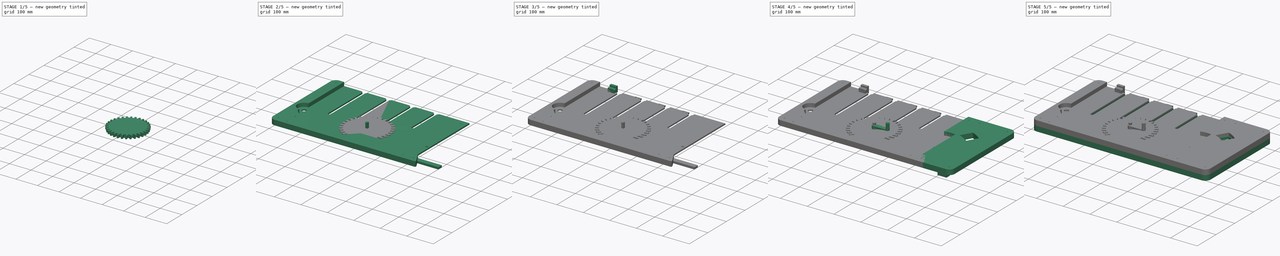
[diagram: build sequence overview — one tinted view per stage of 5, left to right]
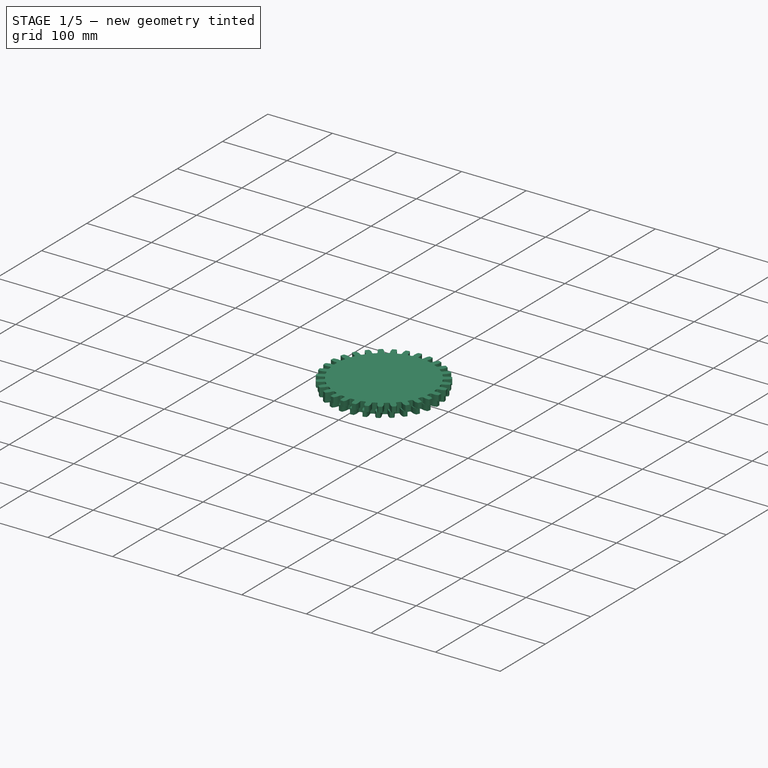
[diagram: stage 1 of 5 — iso view after this stage's code; geometry added in this stage tinted green]
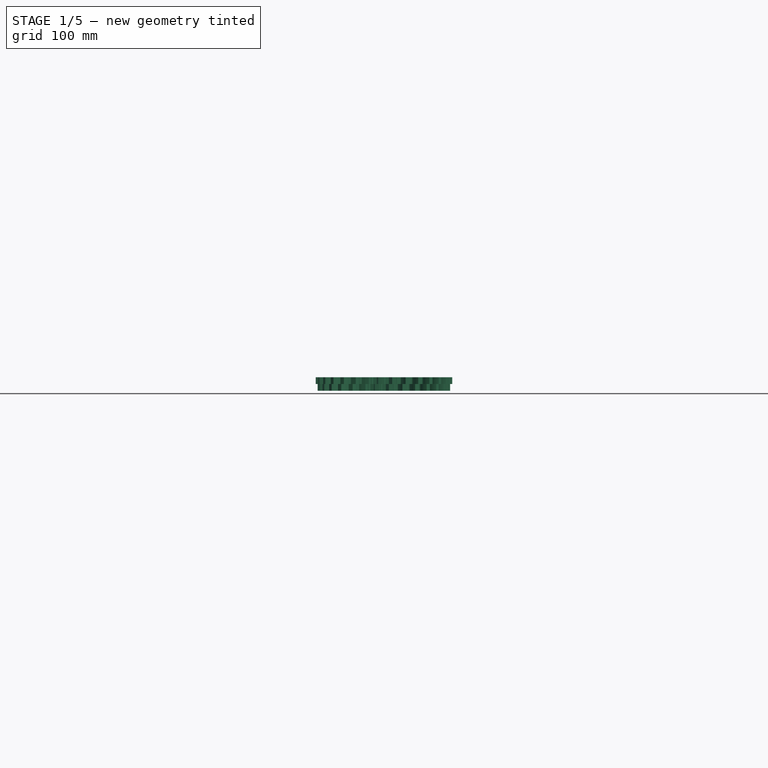
[diagram: stage 1 of 5 — front view after this stage's code; geometry added in this stage tinted green]
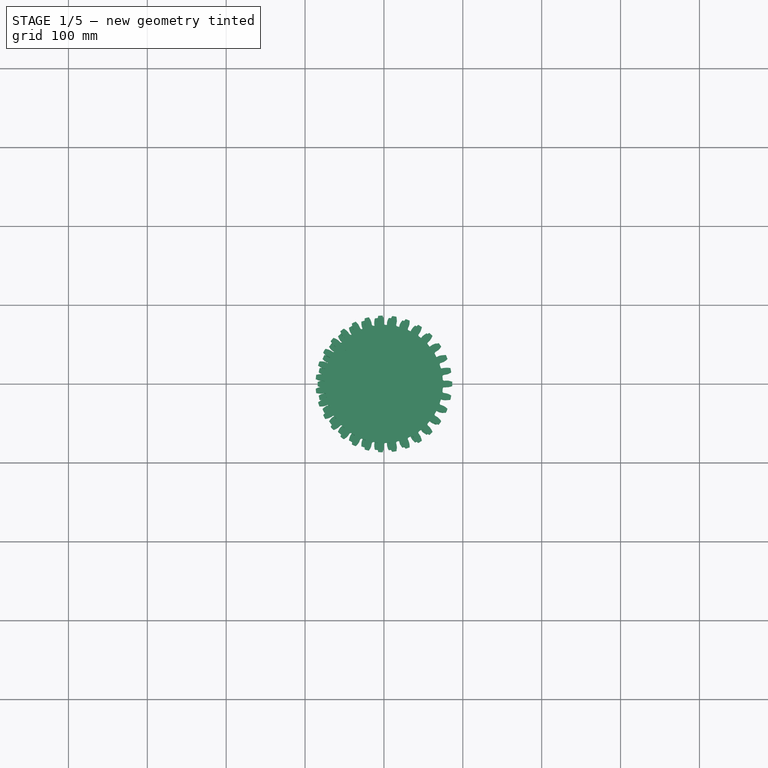
[diagram: stage 1 of 5 — top view after this stage's code; geometry added in this stage tinted green]
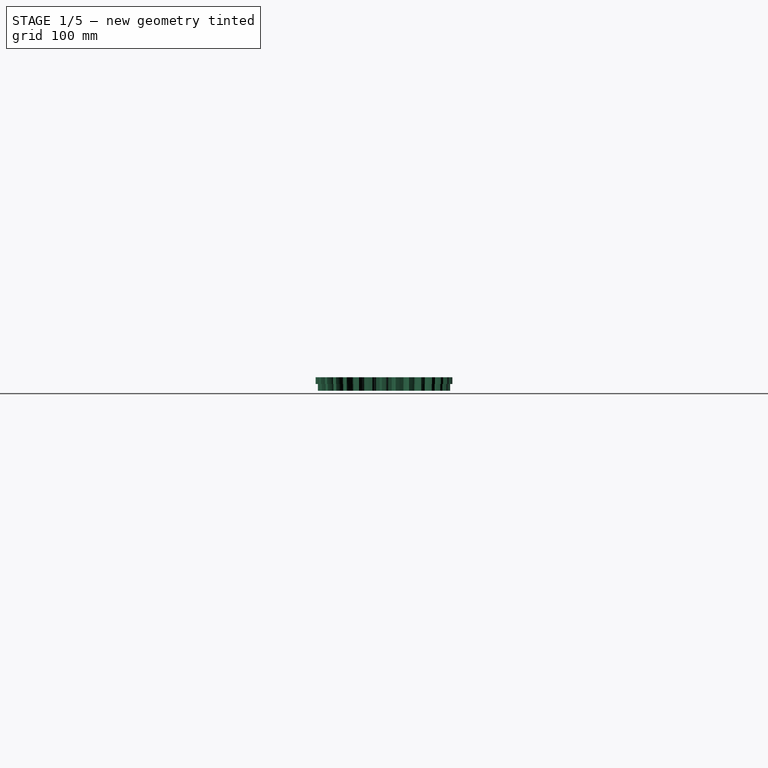
[diagram: stage 1 of 5 — right view after this stage's code; geometry added in this stage tinted green]
FCSTD DOCUMENT  (FreeCAD 0.19R23141 (Git))
Label: gears-puzzle
License: All rights reserved
LicenseURL: http://en.wikipedia.org/wiki/All_rights_reserved
objects: Sketcher::SketchObject×70, PartDesign::Pocket×45, PartDesign::Chamfer×39, PartDesign::Pad×31, PartDesign::Body×25, PartDesign::ShapeBinder×13, PartDesign::Fillet×13, Part::Part2DObjectPython×11, PartDesign::Revolution×4
note: 383 computed .brp shape members not serialized (recipe doc carries the construction recipe); baked Part::Feature solids carry a one-line shape summary decoded from their .brp

FEATURE [Sketcher::SketchObject] Sketch  label="MasterSketch"
  MapMode = 5
  Support = -> [XY_Plane]
  sketch-geometry (22):
    g0: Circle CenterX=-238 CenterY=0 CenterZ=0 NormalX=0 NormalY=0 NormalZ=1 AngleXU=0 Radius=16.25
    g1: Circle CenterX=225 CenterY=0 CenterZ=0 NormalX=0 NormalY=0 NormalZ=1 AngleXU=0 Radius=79.25
    g2: Circle CenterX=-159.323 CenterY=24.4049 CenterZ=0 NormalX=0 NormalY=0 NormalZ=1 AngleXU=0 Radius=66.125
    g3: Circle CenterX=-69.3232 CenterY=-36.4177 CenterZ=0 NormalX=0 NormalY=0 NormalZ=1 AngleXU=0 Radius=55.625
    g4: Circle CenterX=20.6768 CenterY=28.9777 CenterZ=0 NormalX=0 NormalY=0 NormalZ=1 AngleXU=0 Radius=81.875
    g5: Circle CenterX=110.677 CenterY=89.8003 CenterZ=0 NormalX=0 NormalY=0 NormalZ=1 AngleXU=0 Radius=66.125
    g6: LineSegment StartX=-275 StartY=216.2 StartZ=0 EndX=275 EndY=216.2 EndZ=0
    g7: LineSegment StartX=275 StartY=216.2 StartZ=0 EndX=275 EndY=-133.8 EndZ=0
    g8: LineSegment StartX=275 StartY=-133.8 StartZ=0 EndX=-275 EndY=-133.8 EndZ=0
    g9: LineSegment StartX=-275 StartY=-133.8 StartZ=0 EndX=-275 EndY=216.2 EndZ=0
    g10: Circle CenterX=-159.323 CenterY=24.4049 CenterZ=0 NormalX=0 NormalY=0 NormalZ=1 AngleXU=0 Radius=53
    g11: Circle CenterX=-69.3232 CenterY=-36.4177 CenterZ=0 NormalX=0 NormalY=0 NormalZ=1 AngleXU=0 Radius=29.375
    g12: Circle CenterX=20.6768 CenterY=28.9777 CenterZ=0 NormalX=0 NormalY=0 NormalZ=1 AngleXU=0 Radius=42.5
    g13: Circle CenterX=110.677 CenterY=89.8003 CenterZ=0 NormalX=0 NormalY=0 NormalZ=1 AngleXU=0 Radius=13.625
    g14: Circle CenterX=225 CenterY=0 CenterZ=0 NormalX=0 NormalY=0 NormalZ=1 AngleXU=0 Radius=63.5
    g15: LineSegment [constr] StartX=-159.323 StartY=24.4049 StartZ=0 EndX=-159.323 EndY=0 EndZ=0
    g16: LineSegment [constr] StartX=-69.3232 StartY=-36.4177 StartZ=0 EndX=-69.3232 EndY=0 EndZ=0
    g17: LineSegment [constr] StartX=20.6768 StartY=28.9777 StartZ=0 EndX=20.6768 EndY=0 EndZ=0
    g18: LineSegment [constr] StartX=110.677 StartY=89.8003 StartZ=0 EndX=110.677 EndY=0 EndZ=0
    g19: LineSegment [constr] StartX=-159.323 StartY=0 StartZ=0 EndX=-69.3232 EndY=0 EndZ=0
    g20: LineSegment [constr] StartX=-69.3232 StartY=0 StartZ=0 EndX=20.6768 EndY=0 EndZ=0
    g21: LineSegment [constr] StartX=20.6768 StartY=0 StartZ=0 EndX=110.677 EndY=0 EndZ=0
  constraints (61):
    c: PointOnObject(g0,g-1)
    c: PointOnObject(g1,g-1)
    c: Coincident(g6,g7)
    c: Coincident(g7,g8)
    c: Coincident(g8,g9)
    c: Coincident(g9,g6)
    c: Horizontal(g6)
    c: Vertical(g7)
    c: Vertical(g9)
    c: DistanceX(g6,g6) = 550
    c: DistanceY(g9,g9) = 350
    c: Radius(g2) = 66.125
    c: Radius(g0) = 16.25
    c: Tangent(g2,g0)
    c: Radius(g3) = 55.625
    c: Coincident(g10,g2)
    c: Coincident(g11,g3)
    c: Coincident(g12,g4)
    c: Coincident(g13,g5)
    c: Coincident(g14,g1)
    c: Radius(g10) = 53
    c: Radius(g11) = 29.375
    c: Tangent(g3,g10)
    c: Tangent(g4,g11)
    c: Tangent(g5,g12)
    c: Tangent(g1,g5)
    c: Radius(g4) = 81.875
    c: Radius(g12) = 42.5
    c: Radius(g5) = 66.125
    c: Radius(g13) = 13.625
    c: Coincident(g15,g2)
    c: PointOnObject(g15,g-1)
    c: Coincident(g16,g3)
    c: PointOnObject(g16,g-1)
    c: Vertical(g16)
    c: Coincident(g17,g4)
    c: PointOnObject(g17,g-1)
    c: Vertical(g17)
    c: Coincident(g18,g5)
    c: PointOnObject(g18,g-1)
    c: Vertical(g18)
    c: Vertical(g15)
    c: Coincident(g19,g15)
    c: Coincident(g19,g16)
    c: Coincident(g20,g16)
    c: Coincident(g20,g17)
    c: Coincident(g21,g17)
    c: Coincident(g21,g18)
    c: Radius(g1) = 79.25
    c: Radius(g14) = 63.5
    c: Distance(g19) = 90
    c: DistanceX(g6,g0) = 37
    c: Symmetric(g8,g7,g-2)
    c: Equal(g19,g20)
    c: Equal(g20,g21)
    c: Distance(g2,g3) = 108.625
    c: Distance(g3,g4) = 111.25
    c: Distance(g4,g5) = 108.625
    c: Distance(g5,g1) = 145.375
    c: DistanceY(g8,g-1) = 133.8
    c: DistanceX(g1,g6) = 50
FEATURE [Part::Part2DObjectPython] InvoluteGear  # Draft 2D object (typed FeaturePython)
  ExternalGear = true
  HighPrecision = true
  Modules = 5.25
  NumberOfTeeth = 25
  PressureAngle = 10
FEATURE [PartDesign::Pad] Pad
  Direction = (1,1,1)
  Length = 8.5
  Length2 = 100
  Profile = -> InvoluteGear
  Refine = true
  Type = 0
FEATURE [Part::Part2DObjectPython] InvoluteGear002  # Draft 2D object (typed FeaturePython)
  ExternalGear = true
  HighPrecision = true
  Modules = 5.25
  NumberOfTeeth = 21
  PressureAngle = 10
FEATURE [PartDesign::Pad] Pad002
  Direction = (1,1,1)
  Length = 8.5
  Length2 = 100
  Profile = -> InvoluteGear002
  Refine = true
  Reversed = true
  Type = 0
FEATURE [Part::Part2DObjectPython] InvoluteGear003  # Draft 2D object (typed FeaturePython)
  ExternalGear = true
  HighPrecision = true
  Modules = 5.25
  NumberOfTeeth = 11
  PressureAngle = 10
FEATURE [PartDesign::Pad] Pad003
  BaseFeature = -> Pad002
  Direction = (1,1,1)
  Length = 8.5
  Length2 = 100
  Profile = -> InvoluteGear003
  Refine = true
  Type = 0
FEATURE [Part::Part2DObjectPython] InvoluteGear004  # Draft 2D object (typed FeaturePython)
  ExternalGear = true
  HighPrecision = true
  Modules = 5.25
  NumberOfTeeth = 31
  PressureAngle = 10
FEATURE [PartDesign::Pad] Pad004
  Direction = (1,1,1)
  Length = 8.5
  Length2 = 100
  Profile = -> InvoluteGear004
  Refine = true
  Type = 0
FEATURE [Part::Part2DObjectPython] InvoluteGear005  # Draft 2D object (typed FeaturePython)
  ExternalGear = true
  HighPrecision = true
  Modules = 5.25
  NumberOfTeeth = 16
  PressureAngle = 10
FEATURE [PartDesign::Pad] Pad005
  BaseFeature = -> Pad004
  Direction = (1,1,1)
  Length = 8.5
  Length2 = 100
  Profile = -> InvoluteGear005
  Refine = true
  Reversed = true
  Type = 0
FEATURE [Part::Part2DObjectPython] InvoluteGear006  # Draft 2D object (typed FeaturePython)
  ExternalGear = true
  HighPrecision = true
  Modules = 5.25
  NumberOfTeeth = 25
  PressureAngle = 10
FEATURE [PartDesign::Pad] Pad006
  Direction = (1,1,1)
  Length = 8.5
  Length2 = 100
  Profile = -> InvoluteGear006
  Refine = true
  Reversed = true
  Type = 0
FEATURE [Part::Part2DObjectPython] InvoluteGear007  # Draft 2D object (typed FeaturePython)
  ExternalGear = true
  HighPrecision = true
  Modules = 5.25
  NumberOfTeeth = 5
  PressureAngle = 10
FEATURE [PartDesign::Pad] Pad007
  BaseFeature = -> Pad006
  Direction = (1,1,1)
  Length = 8.5
  Length2 = 100
  Profile = -> InvoluteGear007
  Refine = true
  Type = 0
FEATURE [Sketcher::SketchObject] Sketch002
  MapMode = 5
  Placement = pos=(0,0,-8.5) rot=(1,0,0;3.14159rad)
  Support = -> [Pad003]
  sketch-geometry (1):
    g0: Circle CenterX=0 CenterY=0 CenterZ=0 NormalX=0 NormalY=0 NormalZ=1 AngleXU=0 Radius=4.25
  constraints (2):
    c: Coincident(g0,g-1)
    c: Radius(g0) = 4.25
FEATURE [PartDesign::Pocket] Pocket001
  BaseFeature = -> Pad003
  Length = 5
  Length2 = 100
  Profile = -> Sketch002
  Refine = true
  Type = 1
FEATURE [Sketcher::SketchObject] Sketch003
  MapMode = 5
  Placement = pos=(0,0,-8.5) rot=(1,0,0;3.14159rad)
  Support = -> [Pad005]
  sketch-geometry (1):
    g0: Circle CenterX=0 CenterY=0 CenterZ=0 NormalX=0 NormalY=0 NormalZ=1 AngleXU=0 Radius=4.25
  constraints (2):
    c: Coincident(g0,g-1)
    c: Radius(g0) = 4.25
FEATURE [PartDesign::Pocket] Pocket002
  BaseFeature = -> Pad005
  Length = 5
  Length2 = 100
  Profile = -> Sketch003
  Refine = true
  Type = 1
FEATURE [Sketcher::SketchObject] Sketch004
  MapMode = 5
  Placement = pos=(0,0,-8.5) rot=(1,0,0;3.14159rad)
  Support = -> [Pad007]
  sketch-geometry (1):
    g0: Circle CenterX=0 CenterY=0 CenterZ=0 NormalX=0 NormalY=0 NormalZ=1 AngleXU=0 Radius=4.25
  constraints (2):
    c: Coincident(g0,g-1)
    c: Radius(g0) = 4.25
FEATURE [PartDesign::Pocket] Pocket003
  BaseFeature = -> Pad007
  Length = 5
  Length2 = 100
  Profile = -> Sketch004
  Refine = true
  Type = 1
FEATURE [Part::Part2DObjectPython] InvoluteGear009  # Draft 2D object (typed FeaturePython)
  ExternalGear = true
  HighPrecision = true
  Modules = 5.25
  NumberOfTeeth = 30
  PressureAngle = 10
FEATURE [PartDesign::Pad] Pad010
  Direction = (1,1,1)
  Length = 8.5
  Length2 = 100
  Profile = -> InvoluteGear009
  Refine = true
  Reversed = true
  Type = 0
FEATURE [Part::Part2DObjectPython] InvoluteGear010  # Draft 2D object (typed FeaturePython)
  ExternalGear = true
  HighPrecision = true
  Modules = 5.25
  NumberOfTeeth = 24
  PressureAngle = 10
FEATURE [PartDesign::Pad] Pad011
  BaseFeature = -> Pad010
  Direction = (1,1,1)
  Length = 8.5
  Length2 = 100
  Profile = -> InvoluteGear010
  Refine = true
  Type = 0
FEATURE [Sketcher::SketchObject] Sketch008
  MapMode = 5
  Placement = pos=(0,0,8.5) rot=(0,0,1;0rad)
  Support = -> [Pad011]
  sketch-geometry (1):
    g0: Circle CenterX=0 CenterY=0 CenterZ=0 NormalX=0 NormalY=0 NormalZ=1 AngleXU=0 Radius=4.25
  constraints (2):
    c: Coincident(g0,g-1)
    c: Radius(g0) = 4.25
FEATURE [PartDesign::Pocket] Pocket006
  BaseFeature = -> Pad011
  Length = 5
  Length2 = 100
  Profile = -> Sketch008
  Refine = true
  Type = 1
FEATURE [PartDesign::Body] Body014  label="PrizeShelf"
  Group = -> [ShapeBinder006,Sketch031,Pad018,Fillet008,Fillet009,Sketch032,Pocket021,Sketch033,Pocket022,Fillet010]
  Origin = -> Origin014
  Tip = -> Fillet010
FEATURE [Sketcher::SketchObject] Sketch034
  MapMode = 5
  Placement = pos=(0,0,8.5) rot=(0,0,1;0rad)
  Support = -> [Pocket006]
  sketch-geometry (6):
    g0: LineSegment [constr] StartX=0 StartY=0 StartZ=0 EndX=48.5495 EndY=84.0902 EndZ=0
    g1: Circle [constr] CenterX=0 CenterY=0 CenterZ=0 NormalX=0 NormalY=0 NormalZ=1 AngleXU=0 Radius=80
    g2: LineSegment StartX=21.4093 StartY=77.082 StartZ=0 EndX=1.40933 EndY=42.441 EndZ=0
    g3: LineSegment StartX=1.40933 StartY=42.441 StartZ=0 EndX=36.0503 EndY=22.441 EndZ=0
    g4: LineSegment StartX=36.0503 StartY=22.441 StartZ=0 EndX=56.0503 EndY=57.082 EndZ=0
    g5: LineSegment StartX=56.0503 StartY=57.082 StartZ=0 EndX=21.4093 EndY=77.082 EndZ=0
  constraints (15):
    c: Coincident(g0,g-1)
    c: Coincident(g1,g-1)
    c: Radius(g1) = 80
    c: PointOnObject(g2,g1)
    c: Coincident(g2,g3)
    c: Coincident(g3,g4)
    c: PointOnObject(g4,g1)
    c: Coincident(g4,g5)
    c: Coincident(g5,g2)
    c: Parallel(g2,g0)
    c: Parallel(g0,g4)
    c: Symmetric(g2,g3,g0)
    c: Angle(g0) = 1.0472
    c: Distance(g3) = 40
    c: Distance(g4) = 40
FEATURE [PartDesign::Pocket] Pocket023
  BaseFeature = -> Pocket006
  Length = 8.5
  Length2 = 100
  Profile = -> Sketch034
  Refine = true
  Type = 0
FEATURE [Sketcher::SketchObject] Sketch035
  MapMode = 5
  Placement = pos=(0,0,8.5) rot=(0,0,1;0rad)
  Support = -> [Pocket023]
  sketch-geometry (2):
    g0: Circle CenterX=13.4036 CenterY=64.3606 CenterZ=0 NormalX=0 NormalY=0 NormalZ=1 AngleXU=0 Radius=6.63819
    g1: Circle CenterX=47.5701 CenterY=44.4093 CenterZ=0 NormalX=0 NormalY=0 NormalZ=1 AngleXU=0 Radius=6.57108
FEATURE [PartDesign::Pocket] Pocket024
  BaseFeature = -> Pocket023
  Length = 8.5
  Length2 = 100
  Profile = -> Sketch035
  Refine = true
  Type = 0
FEATURE [PartDesign::Fillet] Fillet011
  Base = -> Pocket024 [Edge1128,Edge1130]
  BaseFeature = -> Pocket024
  Radius = 6
  Refine = true
  SupportTransform = false
FEATURE [Sketcher::SketchObject] Sketch036
  MapMode = 5
  Placement = pos=(0,0,-8.5) rot=(1,0,0;3.14159rad)
  Support = -> [Fillet011]
  sketch-geometry (4):
    g0: LineSegment [constr] StartX=0 StartY=0 StartZ=0 EndX=28.8273 EndY=-49.9303 EndZ=0
    g1: LineSegment [constr] StartX=20.6 StartY=-54.6803 StartZ=0 EndX=37.0545 EndY=-45.1803 EndZ=0
    g2: Circle CenterX=37.0545 CenterY=-45.1803 CenterZ=0 NormalX=0 NormalY=0 NormalZ=1 AngleXU=0 Radius=2
    g3: Circle CenterX=20.6 CenterY=-54.6803 CenterZ=0 NormalX=0 NormalY=0 NormalZ=1 AngleXU=0 Radius=2
  constraints (9):
    c: Coincident(g0,g-1)
    c: PointOnObject(g0,g1)
    c: Symmetric(g1,g1,g0)
    c: Coincident(g2,g1)
    c: Coincident(g3,g1)
    c: Angle(g0) = -1.0472
    c: Equal(g3,g2)
    c: Radius(g2) = 2
    c: Distance(g1) = 19
FEATURE [PartDesign::Pocket] Pocket025
  BaseFeature = -> Fillet011
  Length = 5
  Length2 = 100
  Profile = -> Sketch036
  Refine = true
  Type = 1
FEATURE [PartDesign::Chamfer] Chamfer012
  Angle = 45
  Base = -> Pocket025 [Edge1264,Edge1265]
  BaseFeature = -> Pocket025
  ChamferType = 0
  FlipDirection = false
  Refine = true
  Size = 3
  Size2 = 1
  SupportTransform = false
FEATURE [PartDesign::Chamfer] Chamfer033
  Angle = 45
  Base = -> Pocket001 [Edge535]
  BaseFeature = -> Pocket001
  ChamferType = 0
  FlipDirection = false
  Refine = true
  Size = 1
  Size2 = 1
  SupportTransform = false
FEATURE [PartDesign::Chamfer] Chamfer034
  Angle = 45
  Base = -> Pocket002 [Edge1412]
  BaseFeature = -> Pocket002
  ChamferType = 0
  FlipDirection = false
  Refine = true
  Size = 1
  Size2 = 1
  SupportTransform = false
FEATURE [PartDesign::Chamfer] Chamfer035
  Angle = 45
  Base = -> Pocket003 [Edge555]
  BaseFeature = -> Pocket003
  ChamferType = 0
  FlipDirection = false
  Refine = true
  Size = 1
  Size2 = 1
  SupportTransform = false
FEATURE [PartDesign::Chamfer] Chamfer036
  Angle = 45
  Base = -> Chamfer012 [Edge302]
  BaseFeature = -> Chamfer012
  ChamferType = 0
  FlipDirection = false
  Refine = true
  Size = 1
  Size2 = 1
  SupportTransform = false
FEATURE [PartDesign::Body] Body  label="gearA"
  Group = -> [InvoluteGear,Pad,InvoluteGear001,Pad001,Sketch001,Pocket,Chamfer032,Chamfer037]
  Origin = -> Origin
  Placement = pos=(-159.3,24.6,0) rot=(0,0,1;0.1309rad)
  Tip = -> Chamfer037
FEATURE [PartDesign::Chamfer] Chamfer038
  Angle = 45
  Base = -> Chamfer033 [Edge635]
  BaseFeature = -> Chamfer033
  ChamferType = 0
  FlipDirection = false
  Refine = true
  Size = 1
  Size2 = 1
  SupportTransform = false
FEATURE [PartDesign::Body] Body001  label="gearB"
  Group = -> [InvoluteGear002,Pad002,InvoluteGear003,Pad003,Sketch002,Pocket001,Chamfer033,Chamfer038]
  Origin = -> Origin001
  Placement = pos=(-69,-36,0) rot=(0,0,1;0.216421rad)
  Tip = -> Chamfer038
FEATURE [PartDesign::Chamfer] Chamfer039
  Angle = 45
  Base = -> Chamfer034 [Edge3]
  BaseFeature = -> Chamfer034
  ChamferType = 0
  FlipDirection = false
  Refine = true
  Size = 1
  Size2 = 1
  SupportTransform = false
FEATURE [PartDesign::Body] Body002  label="gearC"
  Group = -> [InvoluteGear004,Pad004,InvoluteGear005,Pad005,Sketch003,Pocket002,Chamfer034,Chamfer039]
  Origin = -> Origin002
  Placement = pos=(21,29,0) rot=(0,0,1;0.164061rad)
  Tip = -> Chamfer039
FEATURE [PartDesign::Chamfer] Chamfer040
  Angle = 45
  Base = -> Chamfer035 [Edge755]
  BaseFeature = -> Chamfer035
  ChamferType = 0
  FlipDirection = false
  Refine = true
  Size = 1
  Size2 = 1
  SupportTransform = false
FEATURE [PartDesign::Body] Body003  label="gearD"
  Group = -> [InvoluteGear006,Pad006,InvoluteGear007,Pad007,Sketch004,Pocket003,Chamfer035,Chamfer040]
  Origin = -> Origin003
  Placement = pos=(111,90,0) rot=(0,0,1;0.165806rad)
  Tip = -> Chamfer040
FEATURE [PartDesign::Chamfer] Chamfer041
  Angle = 45
  Base = -> Chamfer036 [Edge915]
  BaseFeature = -> Chamfer036
  ChamferType = 0
  FlipDirection = false
  Refine = true
  Size = 1
  Size2 = 1
  SupportTransform = false
FEATURE [PartDesign::Body] Body005  label="OutputGear"
  Group = -> [InvoluteGear009,Pad010,InvoluteGear010,Pad011,Sketch008,Pocket006,Sketch034,Pocket023,Sketch035,Pocket024,Fillet011,Sketch036,Pocket025,Chamfer012,Chamfer036,Chamfer041]
  Origin = -> Origin005
  Placement = pos=(225,0,0) rot=(0,0,1;0rad)
  Tip = -> Chamfer041
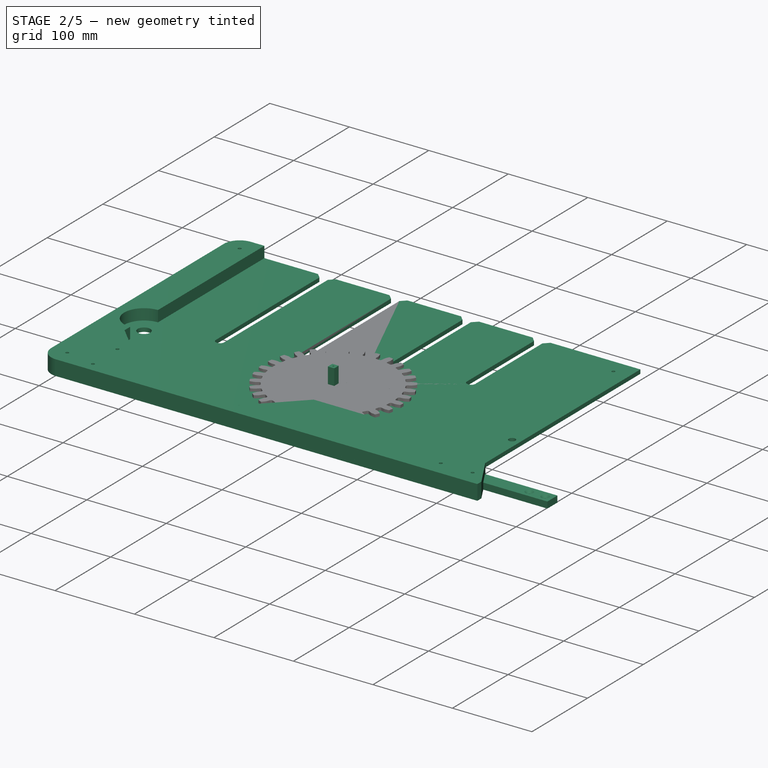
[diagram: stage 2 of 5 — iso view after this stage's code; geometry added in this stage tinted green]
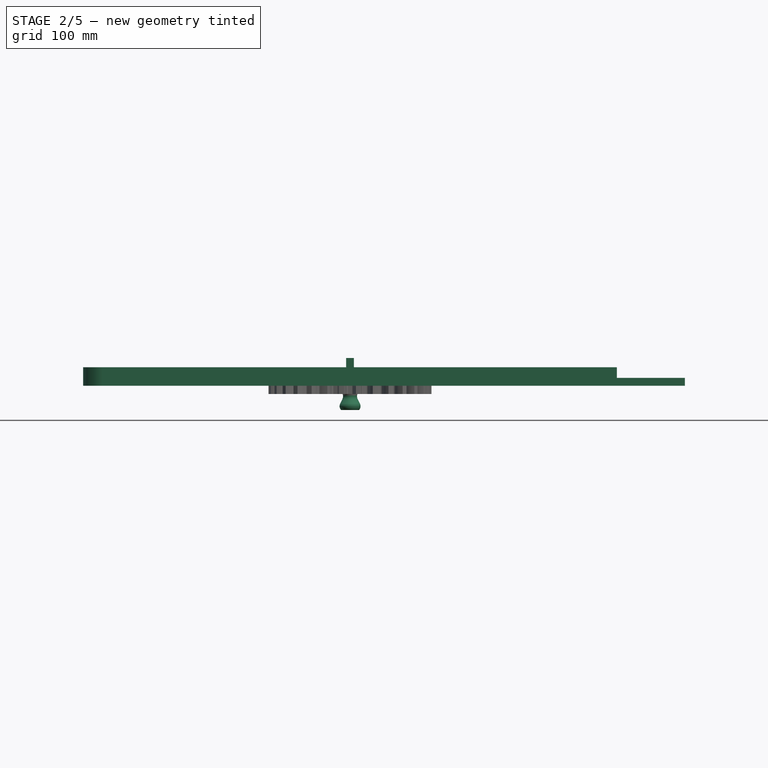
[diagram: stage 2 of 5 — front view after this stage's code; geometry added in this stage tinted green]
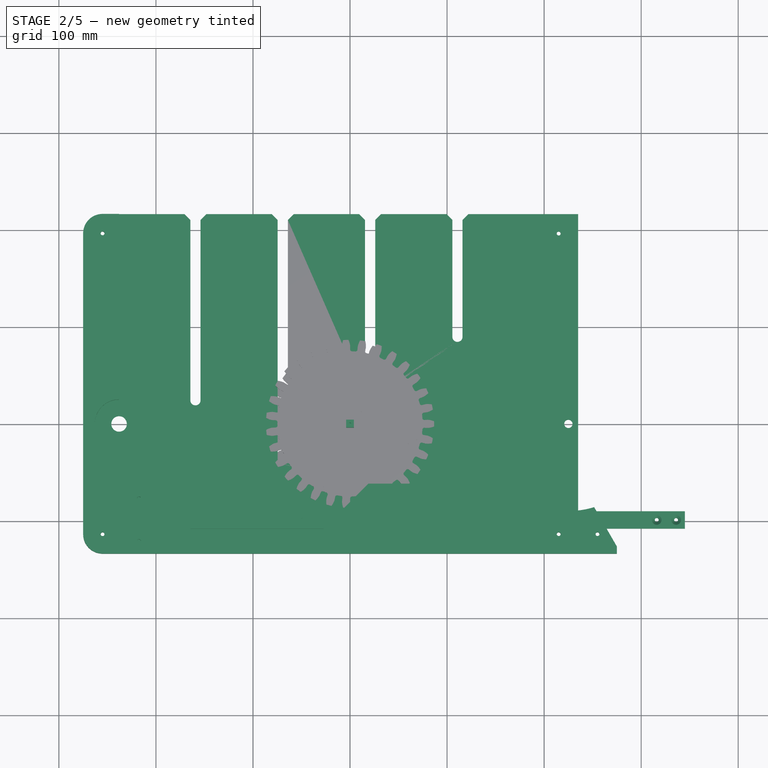
[diagram: stage 2 of 5 — top view after this stage's code; geometry added in this stage tinted green]
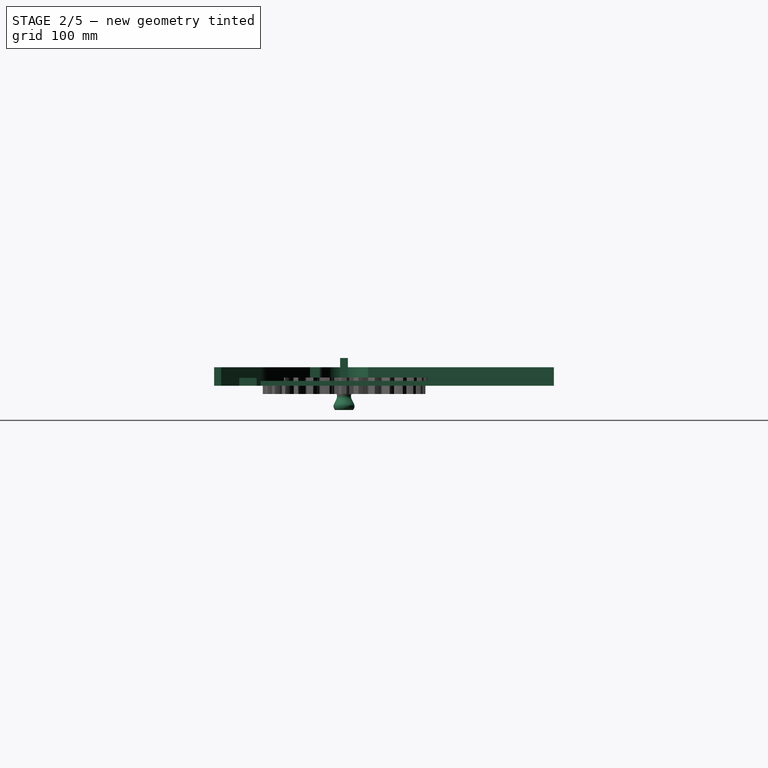
[diagram: stage 2 of 5 — right view after this stage's code; geometry added in this stage tinted green]
FEATURE [Part::Part2DObjectPython] InvoluteGear001  # Draft 2D object (typed FeaturePython)
  ExternalGear = true
  HighPrecision = true
  Modules = 5.25
  NumberOfTeeth = 20
  PressureAngle = 10
FEATURE [PartDesign::Pad] Pad001
  BaseFeature = -> Pad
  Direction = (1,1,1)
  Length = 8.5
  Length2 = 100
  Profile = -> InvoluteGear001
  Refine = true
  Reversed = true
  Type = 0
FEATURE [Sketcher::SketchObject] Sketch001
  MapMode = 5
  Placement = pos=(0,0,-8.5) rot=(1,0,0;3.14159rad)
  Support = -> [Pad001]
  sketch-geometry (1):
    g0: Circle CenterX=0 CenterY=0 CenterZ=0 NormalX=0 NormalY=0 NormalZ=1 AngleXU=0 Radius=4.25
  constraints (2):
    c: Coincident(g0,g-1)
    c: Radius(g0) = 4.25
FEATURE [PartDesign::Pocket] Pocket
  BaseFeature = -> Pad001
  Length = 5
  Length2 = 100
  Profile = -> Sketch001
  Refine = true
  Type = 1
FEATURE [Part::Part2DObjectPython] InvoluteGear008  # Draft 2D object (typed FeaturePython)
  ExternalGear = true
  HighPrecision = true
  Modules = 5.25
  NumberOfTeeth = 6
  PressureAngle = 10
FEATURE [PartDesign::Pad] Pad008
  Direction = (1,1,1)
  Length = 17
  Length2 = 100
  Midplane = true
  Profile = -> InvoluteGear008
  Refine = true
  Type = 0
FEATURE [Sketcher::SketchObject] Sketch005
  MapMode = 5
  Placement = pos=(0,0,8.5) rot=(0,0,1;0rad)
  Support = -> [Pad008]
  sketch-geometry (4):
    g0: LineSegment StartX=-4 StartY=4 StartZ=0 EndX=4 EndY=4 EndZ=0
    g1: LineSegment StartX=4 StartY=4 StartZ=0 EndX=4 EndY=-4 EndZ=0
    g2: LineSegment StartX=4 StartY=-4 StartZ=0 EndX=-4 EndY=-4 EndZ=0
    g3: LineSegment StartX=-4 StartY=-4 StartZ=0 EndX=-4 EndY=4 EndZ=0
  constraints (11):
    c: Coincident(g0,g1)
    c: Coincident(g1,g2)
    c: Coincident(g2,g3)
    c: Coincident(g3,g0)
    c: Horizontal(g0)
    c: Horizontal(g2)
    c: Vertical(g1)
    c: Vertical(g3)
    c: Equal(g3,g2)
    c: Symmetric(g0,g1,g-1)
    c: DistanceX(g0,g0) = 8
FEATURE [PartDesign::Pad] Pad009  label="SquareShaft"
  BaseFeature = -> Pad008
  Direction = (1,1,1)
  Length = 20
  Length2 = 100
  Profile = -> Sketch005
  Refine = true
  Type = 0
FEATURE [Sketcher::SketchObject] Sketch006
  MapMode = 5
  Placement = pos=(0,0,-8.5) rot=(1,0,0;3.14159rad)
  Support = -> [Pad009]
  sketch-geometry (1):
    g0: Circle CenterX=0 CenterY=0 CenterZ=0 NormalX=0 NormalY=0 NormalZ=1 AngleXU=0 Radius=4.25
  constraints (2):
    c: Coincident(g0,g-1)
    c: Radius(g0) = 4.25
FEATURE [PartDesign::Pocket] Pocket004  label="ShaftPocket"
  BaseFeature = -> Pad009
  Length = 16
  Length2 = 100
  Profile = -> Sketch006
  Refine = true
  Type = 0
FEATURE [Sketcher::SketchObject] Sketch007
  MapMode = 5
  Placement = pos=(0,0,28.5) rot=(0,0,1;0rad)
  Support = -> [Pocket004]
  sketch-geometry (1):
    g0: Circle CenterX=0 CenterY=0 CenterZ=0 NormalX=0 NormalY=0 NormalZ=1 AngleXU=0 Radius=1
  constraints (2):
    c: Coincident(g0,g-1)
    c: Radius(g0) = 1
FEATURE [PartDesign::Pocket] Pocket005  label="ScrewHole"
  BaseFeature = -> Pocket004
  Length = 5
  Length2 = 100
  Profile = -> Sketch007
  Refine = true
  Type = 1
FEATURE [PartDesign::ShapeBinder] ShapeBinder001
  Support = -> [Sketch]
  TraceSupport = false
FEATURE [Sketcher::SketchObject] Sketch015
  ExternalGeometry = -> [ShapeBinder001]
  MapMode = 5
  Support = -> [XY_Plane009]
  sketch-geometry (14):
    g0: LineSegment StartX=-275 StartY=216.2 StartZ=0 EndX=-238 EndY=216.2 EndZ=0
    g1: LineSegment StartX=-238 StartY=216.2 StartZ=0 EndX=-238 EndY=25 EndZ=0
    g2: ArcOfCircle CenterX=-238 CenterY=0 CenterZ=0 NormalX=0 NormalY=0 NormalZ=1 AngleXU=0 Radius=25 StartAngle=1.5708 EndAngle=4.71239
    g3: LineSegment StartX=-238 StartY=-25 StartZ=0 EndX=-238 EndY=-35 EndZ=0
    g4: LineSegment StartX=-238 StartY=-35 StartZ=0 EndX=-151.2 EndY=-121.8 EndZ=0
    g5: LineSegment StartX=-151.2 StartY=-121.8 StartZ=0 EndX=-41.2 EndY=-121.8 EndZ=0
    g6: LineSegment StartX=275 StartY=-126.603 StartZ=0 EndX=275 EndY=-133.8 EndZ=0
    g7: LineSegment StartX=275 StartY=-133.8 StartZ=0 EndX=-275 EndY=-133.8 EndZ=0
    g8: LineSegment StartX=-275 StartY=-133.8 StartZ=0 EndX=-275 EndY=216.2 EndZ=0
    g9: ArcOfCircle CenterX=225 CenterY=0 CenterZ=0 NormalX=0 NormalY=0 NormalZ=1 AngleXU=0 Radius=90 StartAngle=3.89849 EndAngle=5.01189
    g10: LineSegment StartX=159.572 StartY=-61.8 StartZ=0 EndX=18.8 EndY=-61.8 EndZ=0
    g11: LineSegment StartX=-41.2 StartY=-121.8 StartZ=0 EndX=18.8 EndY=-61.8 EndZ=0
    g12: LineSegment [constr] StartX=225 StartY=0 StartZ=0 EndX=280.255 EndY=-95.7052 EndZ=0
    g13: LineSegment StartX=251.554 StartY=-85.9934 StartZ=0 EndX=275 EndY=-126.603 EndZ=0
  constraints (38):
    c: Coincident(g-3,g0)
    c: Horizontal(g0)
    c: Coincident(g0,g1)
    c: Vertical(g1)
    c: Coincident(g2,g-5)
    c: Coincident(g2,g1)
    c: Coincident(g3,g2)
    c: Coincident(g3,g4)
    c: Coincident(g4,g5)
    c: Horizontal(g5)
    c: Coincident(g6,g-4)
    c: Coincident(g6,g7)
    c: Coincident(g7,g-3)
    c: Coincident(g7,g8)
    c: Coincident(g8,g0)
    c: Vertical(g2,g2)
    c: Vertical(g2,g1)
    c: Vertical(g3)
    c: Angle(g4) = -0.785398
    c: Radius(g2) = 25
    c: DistanceY(g3,g3) = 10
    c: DistanceY(g6,g5) = 12
    c: Coincident(g9,g-6)
    c: Radius(g9) = 90
    c: Coincident(g10,g9)
    c: Horizontal(g10)
    c: Coincident(g11,g5)
    c: Coincident(g11,g10)
    c: Angle(g11) = 0.785398
    c: DistanceY(g11,g11) = 60
    c: DistanceX(g5,g5) = 110
    c: Coincident(g12,g9)
    c: Angle(g12) = -1.0472
    c: Coincident(g13,g9)
    c: Coincident(g6,g13)
    c: Parallel(g13,g12)
    c: Distance(g6,g12) = 20
    c: Vertical(g6)
FEATURE [PartDesign::Pad] Pad013
  Direction = (1,1,1)
  Length = 19
  Length2 = 100
  Profile = -> Sketch015
  Refine = true
  Type = 0
FEATURE [PartDesign::Fillet] Fillet001
  Base = -> Pad013 [Edge14,Edge11]
  BaseFeature = -> Pad013
  Radius = 20
  Refine = true
  SupportTransform = false
FEATURE [PartDesign::ShapeBinder] ShapeBinder003
  Support = -> [Sketch]
  TraceSupport = false
FEATURE [Sketcher::SketchObject] Sketch018
  ExternalGeometry = -> [ShapeBinder003]
  MapMode = 5
  Support = -> [XY_Plane011]
  sketch-geometry (4):
    g0: LineSegment StartX=-275 StartY=216.2 StartZ=0 EndX=235 EndY=216.2 EndZ=0
    g1: LineSegment StartX=235 StartY=216.2 StartZ=0 EndX=235 EndY=-133.8 EndZ=0
    g2: LineSegment StartX=235 StartY=-133.8 StartZ=0 EndX=-275 EndY=-133.8 EndZ=0
    g3: LineSegment StartX=-275 StartY=-133.8 StartZ=0 EndX=-275 EndY=216.2 EndZ=0
  constraints (11):
    c: Coincident(g2,g3)
    c: Coincident(g3,g0)
    c: Horizontal(g0)
    c: Horizontal(g2)
    c: Vertical(g1)
    c: Vertical(g3)
    c: Coincident(g0,g-3)
    c: Coincident(g2,g1)
    c: PointOnObject(g1,g-4)
    c: Coincident(g1,g0)
    c: DistanceX(g0,g-3) = 40
FEATURE [PartDesign::Pad] Pad015
  Direction = (1,1,1)
  Length = 5
  Length2 = 100
  Profile = -> Sketch018
  Refine = true
  Type = 0
FEATURE [Sketcher::SketchObject] Sketch019
  ExternalGeometry = -> [ShapeBinder003,Pad015]
  MapMode = 5
  Placement = pos=(0,0,5) rot=(0,0,1;0rad)
  Support = -> [Pad015]
  sketch-geometry (18):
    g0: Circle CenterX=-238 CenterY=0 CenterZ=0 NormalX=0 NormalY=0 NormalZ=1 AngleXU=0 Radius=8
    g1: Circle CenterX=225 CenterY=0 CenterZ=0 NormalX=0 NormalY=0 NormalZ=1 AngleXU=0 Radius=4.25
    g2: ArcOfCircle CenterX=-159.323 CenterY=24.4049 CenterZ=0 NormalX=0 NormalY=0 NormalZ=1 AngleXU=0 Radius=5.25 StartAngle=3.14159 EndAngle=6.28319
    g3: ArcOfCircle CenterX=-159.323 CenterY=216.2 CenterZ=0 NormalX=0 NormalY=0 NormalZ=1 AngleXU=0 Radius=5.25 StartAngle=7e-16 EndAngle=3.14159
    g4: LineSegment StartX=-154.073 StartY=24.4049 StartZ=0 EndX=-154.073 EndY=216.2 EndZ=0
    g5: LineSegment StartX=-164.573 StartY=24.4049 StartZ=0 EndX=-164.573 EndY=216.2 EndZ=0
    g6: ArcOfCircle CenterX=-69.3232 CenterY=-36.4177 CenterZ=0 NormalX=0 NormalY=0 NormalZ=1 AngleXU=0 Radius=5.25 StartAngle=3.14159 EndAngle=6.28319
    g7: ArcOfCircle CenterX=-69.3232 CenterY=216.2 CenterZ=0 NormalX=0 NormalY=0 NormalZ=1 AngleXU=0 Radius=5.25 StartAngle=1e-16 EndAngle=3.14159
    g8: LineSegment StartX=-64.0732 StartY=-36.4177 StartZ=0 EndX=-64.0732 EndY=216.2 EndZ=0
    g9: LineSegment StartX=-74.5732 StartY=-36.4177 StartZ=0 EndX=-74.5732 EndY=216.2 EndZ=0
    g10: ArcOfCircle CenterX=20.6768 CenterY=28.9777 CenterZ=0 NormalX=0 NormalY=0 NormalZ=1 AngleXU=0 Radius=5.25 StartAngle=3.14159 EndAngle=6.28319
    g11: ArcOfCircle CenterX=20.6768 CenterY=216.2 CenterZ=0 NormalX=0 NormalY=0 NormalZ=1 AngleXU=0 Radius=5.25 StartAngle=6e-16 EndAngle=3.14159
    g12: LineSegment StartX=25.9268 StartY=28.9777 StartZ=0 EndX=25.9268 EndY=216.2 EndZ=0
    g13: LineSegment StartX=15.4268 StartY=28.9777 StartZ=0 EndX=15.4268 EndY=216.2 EndZ=0
    g14: ArcOfCircle CenterX=110.677 CenterY=89.8003 CenterZ=0 NormalX=0 NormalY=0 NormalZ=1 AngleXU=0 Radius=5.25 StartAngle=3.14159 EndAngle=6.28319
    g15: ArcOfCircle CenterX=110.677 CenterY=216.2 CenterZ=0 NormalX=0 NormalY=0 NormalZ=1 AngleXU=0 Radius=5.25 StartAngle=-1.8e-15 EndAngle=3.14159
    g16: LineSegment StartX=115.927 StartY=89.8003 StartZ=0 EndX=115.927 EndY=216.2 EndZ=0
    g17: LineSegment StartX=105.427 StartY=89.8003 StartZ=0 EndX=105.427 EndY=216.2 EndZ=0
  constraints (40):
    c: Coincident(g0,g-4)
    c: Coincident(g1,g-9)
    c: Tangent(g2,g5)
    c: Tangent(g2,g4)
    c: Tangent(g4,g3)
    c: Tangent(g5,g3)
    c: Vertical(g4)
    c: Equal(g2,g3)
    c: Coincident(g2,g-3)
    c: Tangent(g6,g9)
    c: Tangent(g6,g8)
    c: Tangent(g8,g7)
    c: Tangent(g9,g7)
    c: Vertical(g8)
    c: Equal(g6,g7)
    c: Coincident(g6,g-5)
    c: Tangent(g10,g13)
    c: Tangent(g10,g12)
    c: Tangent(g12,g11)
    c: Tangent(g13,g11)
    c: Vertical(g12)
    c: Equal(g10,g11)
    c: Coincident(g10,g-6)
    c: Tangent(g14,g17)
    c: Tangent(g14,g16)
    c: Tangent(g16,g15)
    c: Tangent(g17,g15)
    c: Vertical(g16)
    c: Equal(g14,g15)
    c: Coincident(g14,g-8)
    c: Equal(g3,g7)
    c: Equal(g7,g11)
    c: Equal(g11,g15)
    c: PointOnObject(g3,g-7)
    c: PointOnObject(g7,g-7)
    c: PointOnObject(g11,g-7)
    c: PointOnObject(g15,g-7)
    c: Radius(g0) = 8
    c: Radius(g1) = 4.25
    c: Radius(g2) = 5.25
FEATURE [PartDesign::Pocket] Pocket011
  BaseFeature = -> Pad015
  Length = 5
  Length2 = 100
  Profile = -> Sketch019
  Refine = true
  Type = 1
FEATURE [PartDesign::Fillet] Fillet005
  Base = -> Pocket011 [Edge4,Edge48]
  BaseFeature = -> Pocket011
  Radius = 20
  Refine = true
  SupportTransform = false
FEATURE [Sketcher::SketchObject] Sketch020
  ExternalGeometry = -> [Fillet005]
  MapMode = 5
  Placement = pos=(0,0,5) rot=(0,0,1;0rad)
  Support = -> [Fillet005]
  sketch-geometry (4):
    g0: Circle CenterX=-255 CenterY=196.2 CenterZ=0 NormalX=0 NormalY=0 NormalZ=1 AngleXU=0 Radius=2
    g1: Circle CenterX=-255 CenterY=-113.8 CenterZ=0 NormalX=0 NormalY=0 NormalZ=1 AngleXU=0 Radius=2
    g2: Circle CenterX=215 CenterY=-113.8 CenterZ=0 NormalX=0 NormalY=0 NormalZ=1 AngleXU=0 Radius=2
    g3: Circle CenterX=215 CenterY=196.2 CenterZ=0 NormalX=0 NormalY=0 NormalZ=1 AngleXU=0 Radius=2
  constraints (10):
    c: Coincident(g0,g-3)
    c: Coincident(g1,g-4)
    c: Equal(g3,g0)
    c: Equal(g0,g1)
    c: Equal(g1,g2)
    c: Radius(g1) = 2
    c: Horizontal(g3,g0)
    c: Horizontal(g2,g1)
    c: DistanceX(g3,g-5) = 20
    c: DistanceX(g2,g-5) = 20
FEATURE [PartDesign::Pocket] Pocket012
  BaseFeature = -> Fillet005
  Length = 5
  Length2 = 100
  Profile = -> Sketch020
  Refine = true
  Type = 1
FEATURE [PartDesign::ShapeBinder] ShapeBinder004
  Support = -> [Sketch]
  TraceSupport = false
FEATURE [Sketcher::SketchObject] Sketch021
  ExternalGeometry = -> [ShapeBinder004]
  MapMode = 5
  Support = -> [XY_Plane012]
  sketch-geometry (12):
    g0: LineSegment StartX=200 StartY=216.2 StartZ=0 EndX=200 EndY=86.4581 EndZ=0
    g1: ArcOfCircle CenterX=225 CenterY=0 CenterZ=0 NormalX=0 NormalY=0 NormalZ=1 AngleXU=0 Radius=90 StartAngle=1.27129 EndAngle=1.85228
    g2: LineSegment StartX=251.554 StartY=85.9934 StartZ=0 EndX=276.962 EndY=130 EndZ=0
    g3: LineSegment [constr] StartX=225 StartY=0 StartZ=0 EndX=302.249 EndY=133.8 EndZ=0
    g4: ArcOfCircle CenterX=225 CenterY=0 CenterZ=0 NormalX=0 NormalY=0 NormalZ=1 AngleXU=0 Radius=140 StartAngle=5.09264 EndAngle=7.47373
    g5: LineSegment StartX=276.962 StartY=-130 StartZ=0 EndX=275 EndY=-126.603 EndZ=0
    g6: LineSegment StartX=275 StartY=-126.603 StartZ=0 EndX=275 EndY=-133.8 EndZ=0
    g7: LineSegment StartX=275 StartY=-133.8 StartZ=0 EndX=379.499 EndY=-133.8 EndZ=0
    g8: LineSegment StartX=379.499 StartY=-133.8 StartZ=0 EndX=379.499 EndY=216.2 EndZ=0
    g9: LineSegment StartX=379.499 StartY=216.2 StartZ=0 EndX=200 EndY=216.2 EndZ=0
    g10: ArcOfCircle [constr] CenterX=225 CenterY=0 CenterZ=0 NormalX=0 NormalY=0 NormalZ=1 AngleXU=0 Radius=154.499 StartAngle=5.23599 EndAngle=7.33038
    g11: LineSegment [constr] StartX=225 StartY=0 StartZ=0 EndX=302.249 EndY=-133.8 EndZ=0
  constraints (34):
    c: PointOnObject(g0,g-5)
    c: Vertical(g0)
    c: Coincident(g1,g-4)
    c: Coincident(g1,g0)
    c: Coincident(g2,g1)
    c: Radius(g1) = 90
    c: Coincident(g3,g1)
    c: Coincident(g4,g1)
    c: Symmetric(g2,g4,g-1)
    c: Coincident(g5,g4)
    c: PointOnObject(g5,g-3)
    c: Radius(g4) = 140
    c: Coincident(g5,g6)
    c: Coincident(g6,g-3)
    c: Coincident(g6,g7)
    c: Horizontal(g7)
    c: Coincident(g7,g8)
    c: Vertical(g8)
    c: Coincident(g8,g9)
    c: Horizontal(g9)
    c: Coincident(g10,g1)
    c: PointOnObject(g10,g7)
    c: Tangent(g10,g8)
    c: DistanceX(g0,g-5) = 75
    c: Coincident(g0,g9)
    c: Coincident(g2,g4)
    c: Angle(g3) = 1.0472
    c: Parallel(g2,g3)
    c: Distance(g2,g3) = 20
    c: Coincident(g3,g10)
    c: Coincident(g11,g1)
    c: Coincident(g10,g11)
    c: Angle(g11) = -1.0472
    c: Parallel(g5,g11)
FEATURE [Sketcher::SketchObject] Sketch022
  ExternalGeometry = -> [Fillet001,ShapeBinder001]
  MapMode = 5
  Placement = pos=(0,0,19) rot=(0,0,1;0rad)
  Support = -> [Fillet001]
  sketch-geometry (3):
    g0: Circle CenterX=-255 CenterY=196.2 CenterZ=0 NormalX=0 NormalY=0 NormalZ=1 AngleXU=0 Radius=2
    g1: Circle CenterX=-255 CenterY=-113.8 CenterZ=0 NormalX=0 NormalY=0 NormalZ=1 AngleXU=0 Radius=2
    g2: Circle CenterX=215 CenterY=-113.8 CenterZ=0 NormalX=0 NormalY=0 NormalZ=1 AngleXU=0 Radius=2
  constraints (7):
    c: Coincident(g0,g-3)
    c: Coincident(g1,g-4)
    c: Equal(g2,g1)
    c: Equal(g1,g0)
    c: Radius(g0) = 2
    c: Horizontal(g2,g1)
    c: DistanceX(g2,g-5) = 60
FEATURE [PartDesign::Pocket] Pocket013
  BaseFeature = -> Fillet001
  Length = 5
  Length2 = 100
  Profile = -> Sketch022
  Refine = true
  Type = 1
FEATURE [Sketcher::SketchObject] Sketch027
  ExternalGeometry = -> [Pocket013]
  MapMode = 5
  Placement = pos=(0,0,19) rot=(0,0,1;0rad)
  Support = -> [Pocket013]
  sketch-geometry (1):
    g0: Circle CenterX=255 CenterY=-113.8 CenterZ=0 NormalX=0 NormalY=0 NormalZ=1 AngleXU=0 Radius=2
  constraints (3):
    c: Horizontal(g-3,g0)
    c: Radius(g0) = 2
    c: DistanceX(g-3,g0) = 40
FEATURE [PartDesign::Pocket] Pocket017
  BaseFeature = -> Pocket013
  Length = 5
  Length2 = 100
  Profile = -> Sketch027
  Refine = true
  Type = 1
FEATURE [PartDesign::Body] Body008  label="Backing1"
  Group = -> [ShapeBinder,Sketch011,Pad012,Sketch012,Pocket007,Fillet,Sketch013,Pocket008,Sketch014,Pocket009,Fillet004,Sketch028,Pocket018,Chamfer008]
  Origin = -> Origin008
  Placement = pos=(0,0,-9) rot=(0,0,1;0rad)
  Tip = -> Chamfer008
FEATURE [PartDesign::Chamfer] Chamfer009
  Angle = 45
  Base = -> Pocket012 [Edge3,Edge68,Edge70,Edge76,Edge78,Edge73,Edge71,Edge65]
  BaseFeature = -> Pocket012
  ChamferType = 0
  FlipDirection = false
  Refine = true
  Size = 6
  Size2 = 1
  SupportTransform = false
FEATURE [PartDesign::Body] Body015  label="CrankHandle"
  Group = -> [Sketch037,Revolution002,Sketch038,Pad019,Sketch039,Pad020,Sketch040,Pocket026,Chamfer013,Chamfer014,Chamfer015,Sketch041,Pad021,Sketch042,Pocket027,Chamfer016,Sketch043,Pocket028]
  Origin = -> Origin015
  Placement = pos=(-238,0,10) rot=(0,0,1;3.14159rad)
  Tip = -> Pocket028
FEATURE [PartDesign::ShapeBinder] ShapeBinder007
  Support = -> [Sketch]
  TraceSupport = false
FEATURE [Sketcher::SketchObject] Sketch044
  ExternalGeometry = -> [ShapeBinder007]
  MapMode = 5
  Support = -> [XY_Plane016]
  sketch-geometry (6):
    g0: LineSegment [constr] StartX=225 StartY=0 StartZ=0 EndX=264.625 EndY=-68.6325 EndZ=0
    g1: LineSegment [constr] StartX=280.663 StartY=-56.411 StartZ=0 EndX=310.663 EndY=-108.373 EndZ=0
    g2: LineSegment StartX=-229.323 StartY=-90 StartZ=0 EndX=345 EndY=-90 EndZ=0
    g3: LineSegment StartX=345 StartY=-90 StartZ=0 EndX=345 EndY=-108 EndZ=0
    g4: LineSegment StartX=345 StartY=-108 StartZ=0 EndX=-229.323 EndY=-108 EndZ=0
    g5: LineSegment StartX=-229.323 StartY=-108 StartZ=0 EndX=-229.323 EndY=-90 EndZ=0
  constraints (20):
    c: Coincident(g0,g-4)
    c: PointOnObject(g0,g-4)
    c: Angle(g0) = -1.0472
    c: PointOnObject(g1,g-4)
    c: Parallel(g1,g0)
    c: Distance(g1,g0) = 20
    c: Distance(g1) = 60
    c: Coincident(g2,g3)
    c: Coincident(g3,g4)
    c: Coincident(g4,g5)
    c: Coincident(g5,g2)
    c: Horizontal(g2)
    c: Horizontal(g4)
    c: Vertical(g3)
    c: Vertical(g5)
    c: DistanceY(g5,g5) = 18
    c: DistanceY(g2,g-1) = 90
    c: DistanceX(g0,g2) = 120
    c: DistanceX(g2,g-5) = 70
    c: DistanceX(g4,g4) = 574.323
FEATURE [PartDesign::Pad] Pad022
  Direction = (1,1,1)
  Length = 8
  Length2 = 100
  Profile = -> Sketch044
  Refine = true
  Type = 0
FEATURE [Sketcher::SketchObject] Sketch049
  ExternalGeometry = -> [Pad022]
  MapMode = 5
  Placement = pos=(0,0,8) rot=(0,0,1;0rad)
  Support = -> [Pad022]
  sketch-geometry (3):
    g0: Circle CenterX=316 CenterY=-99 CenterZ=0 NormalX=0 NormalY=0 NormalZ=1 AngleXU=0 Radius=2
    g1: Circle CenterX=336 CenterY=-99 CenterZ=0 NormalX=0 NormalY=0 NormalZ=1 AngleXU=0 Radius=2
    g2: LineSegment [constr] StartX=316 StartY=-99 StartZ=0 EndX=345 EndY=-99 EndZ=0
  constraints (8):
    c: Coincident(g2,g0)
    c: PointOnObject(g2,g-3)
    c: Symmetric(g-3,g-3,g2)
    c: PointOnObject(g1,g2)
    c: DistanceX(g0,g1) = 20
    c: DistanceX(g1,g-3) = 9
    c: Radius(g1) = 2
    c: Equal(g0,g1)
FEATURE [PartDesign::Pocket] Pocket031
  BaseFeature = -> Pad022
  Length = 5
  Length2 = 100
  Profile = -> Sketch049
  Refine = true
  Type = 1
FEATURE [PartDesign::Chamfer] Chamfer017
  Angle = 45
  Base = -> Pocket031 [Edge15,Edge16]
  BaseFeature = -> Pocket031
  ChamferType = 0
  FlipDirection = false
  Refine = true
  Size = 3
  Size2 = 1
  SupportTransform = false
FEATURE [Sketcher::SketchObject] Sketch050
  ExternalGeometry = -> [ShapeBinder007,Chamfer017]
  MapMode = 5
  Placement = pos=(0,0,0) rot=(1,0,0;3.14159rad)
  Support = -> [Chamfer017]
  sketch-geometry (24):
    g0: LineSegment StartX=-196.323 StartY=108 StartZ=0 EndX=-171.323 EndY=108 EndZ=0
    g1: LineSegment StartX=-171.323 StartY=108 StartZ=0 EndX=-171.323 EndY=90 EndZ=0
    g2: LineSegment StartX=-171.323 StartY=90 StartZ=0 EndX=-196.323 EndY=90 EndZ=0
    g3: LineSegment StartX=-196.323 StartY=90 StartZ=0 EndX=-196.323 EndY=108 EndZ=0
    g4: LineSegment StartX=-106.323 StartY=108 StartZ=0 EndX=-81.3232 EndY=108 EndZ=0
    g5: LineSegment StartX=-81.3232 StartY=108 StartZ=0 EndX=-81.3232 EndY=90 EndZ=0
    g6: LineSegment StartX=-81.3232 StartY=90 StartZ=0 EndX=-106.323 EndY=90 EndZ=0
    g7: LineSegment StartX=-106.323 StartY=90 StartZ=0 EndX=-106.323 EndY=108 EndZ=0
    g8: LineSegment StartX=-16.3232 StartY=108 StartZ=0 EndX=8.67682 EndY=108 EndZ=0
    g9: LineSegment StartX=8.67682 StartY=108 StartZ=0 EndX=8.67682 EndY=90 EndZ=0
    g10: LineSegment StartX=8.67682 StartY=90 StartZ=0 EndX=-16.3232 EndY=90 EndZ=0
    g11: LineSegment StartX=-16.3232 StartY=90 StartZ=0 EndX=-16.3232 EndY=108 EndZ=0
    g12: LineSegment StartX=73.6768 StartY=108 StartZ=0 EndX=98.6768 EndY=108 EndZ=0
    g13: LineSegment StartX=98.6768 StartY=108 StartZ=0 EndX=98.6768 EndY=90 EndZ=0
    g14: LineSegment StartX=98.6768 StartY=90 StartZ=0 EndX=73.6768 EndY=90 EndZ=0
    g15: LineSegment StartX=73.6768 StartY=90 StartZ=0 EndX=73.6768 EndY=108 EndZ=0
    g16: LineSegment [constr] StartX=-159.323 StartY=-24.4049 StartZ=0 EndX=-159.323 EndY=90 EndZ=0
    g17: LineSegment [constr] StartX=-69.3232 StartY=36.4177 StartZ=0 EndX=-69.3232 EndY=90 EndZ=0
    g18: LineSegment [constr] StartX=20.6768 StartY=-28.9777 StartZ=0 EndX=20.6768 EndY=90 EndZ=0
    g19: LineSegment [constr] StartX=110.677 StartY=-89.8003 StartZ=0 EndX=110.677 EndY=90 EndZ=0
    g20: LineSegment [constr] StartX=-171.323 StartY=90 StartZ=0 EndX=-159.323 EndY=90 EndZ=0
    g21: LineSegment [constr] StartX=-81.3232 StartY=90 StartZ=0 EndX=-69.3232 EndY=90 EndZ=0
    g22: LineSegment [constr] StartX=8.67682 StartY=90 StartZ=0 EndX=20.6768 EndY=90 EndZ=0
    g23: LineSegment [constr] StartX=98.6768 StartY=90 StartZ=0 EndX=110.677 EndY=90 EndZ=0
  constraints (68):
    c: Coincident(g0,g1)
    c: Coincident(g1,g2)
    c: Coincident(g2,g3)
    c: Coincident(g3,g0)
    c: Horizontal(g0)
    c: Horizontal(g2)
    c: Vertical(g1)
    c: Vertical(g3)
    c: PointOnObject(g0,g-7)
    c: PointOnObject(g1,g-8)
    c: Coincident(g4,g5)
    c: Coincident(g5,g6)
    c: Coincident(g6,g7)
    c: Coincident(g7,g4)
    c: Horizontal(g4)
    c: Horizontal(g6)
    c: Vertical(g5)
    c: Vertical(g7)
    c: PointOnObject(g4,g-7)
    c: PointOnObject(g5,g-8)
    c: Coincident(g8,g9)
    c: Coincident(g9,g10)
    c: Coincident(g10,g11)
    c: Coincident(g11,g8)
    c: Horizontal(g8)
    c: Horizontal(g10)
    c: Vertical(g9)
    c: Vertical(g11)
    c: PointOnObject(g8,g-7)
    c: PointOnObject(g9,g-8)
    c: Coincident(g12,g13)
    c: Coincident(g13,g14)
    c: Coincident(g14,g15)
    c: Coincident(g15,g12)
    c: Horizontal(g12)
    c: Horizontal(g14)
    c: Vertical(g13)
    c: Vertical(g15)
    c: PointOnObject(g12,g-7)
    c: PointOnObject(g13,g-8)
    c: Equal(g0,g4)
    c: Equal(g4,g8)
    c: Equal(g8,g12)
    c: DistanceX(g0,g0) = 25
    c: Coincident(g16,g-3)
    c: PointOnObject(g16,g-8)
    c: Vertical(g16)
    c: PointOnObject(g17,g-8)
    c: Coincident(g18,g-5)
    c: PointOnObject(g18,g-8)
    c: Vertical(g18)
    c: Coincident(g19,g-6)
    c: PointOnObject(g19,g-8)
    c: Vertical(g19)
    c: Coincident(g-4,g17)
    c: Vertical(g17)
    c: Coincident(g20,g1)
    c: Coincident(g20,g16)
    c: Coincident(g21,g5)
    c: Coincident(g21,g17)
    c: Coincident(g22,g9)
    c: Coincident(g22,g18)
    c: Coincident(g23,g13)
    c: Coincident(g23,g19)
    c: Equal(g23,g22)
    c: Equal(g22,g21)
    c: Equal(g21,g20)
    c: DistanceX(g20,g20) = 12
FEATURE [PartDesign::Pocket] Pocket032
  BaseFeature = -> Chamfer017
  Length = 5.5
  Length2 = 100
  Profile = -> Sketch050
  Refine = true
  Type = 0
FEATURE [PartDesign::Body] Body011  label="Glass"
  Group = -> [ShapeBinder003,Sketch018,Pad015,Sketch019,Pocket011,Fillet005,Sketch020,Pocket012,Chamfer009,Chamfer010,Chamfer011,Sketch052,Pocket033,Chamfer024,Sketch068,Pocket043]
  Origin = -> Origin011
  Placement = pos=(0,0,10.25) rot=(0,0,1;0rad)
  Tip = -> Pocket043
FEATURE [Sketcher::SketchObject] Sketch069
  MapMode = 5
  Placement = pos=(0,0,19) rot=(0,0,1;0rad)
  Support = -> [Pocket017]
  sketch-geometry (2):
    g0: Circle CenterX=-217.5 CenterY=-77 CenterZ=0 NormalX=0 NormalY=0 NormalZ=1 AngleXU=0 Radius=2
    g1: Circle CenterX=-217.5 CenterY=-121 CenterZ=0 NormalX=0 NormalY=0 NormalZ=1 AngleXU=0 Radius=2
  constraints (6):
    c: DistanceY(g1,g0) = 44
    c: Equal(g1,g0)
    c: Radius(g0) = 2
    c: DistanceX(g0) = -217.5
    c: DistanceY(g0) = -77
    c: Vertical(g1,g0)
FEATURE [PartDesign::Pocket] Pocket044
  BaseFeature = -> Pocket017
  Length = 5
  Length2 = 100
  Profile = -> Sketch069
  Refine = true
  Type = 1
FEATURE [PartDesign::Body] Body009  label="Middle1"
  Group = -> [ShapeBinder001,Sketch015,Pad013,Fillet001,Sketch022,Pocket013,Sketch027,Pocket017,Sketch069,Pocket044]
  Origin = -> Origin009
  Placement = pos=(0,0,-9) rot=(0,0,1;0rad)
  Tip = -> Pocket044
FEATURE [Sketcher::SketchObject] Sketch070
  ExternalGeometry = -> [Pocket032]
  MapMode = 5
  Placement = pos=(0,0,8) rot=(0,0,1;0rad)
  Support = -> [Pocket032]
  sketch-geometry (2):
    g0: LineSegment [constr] StartX=-48.8232 StartY=-108 StartZ=0 EndX=-48.8232 EndY=-90 EndZ=0
    g1: Circle CenterX=-48.8232 CenterY=-99 CenterZ=0 NormalX=0 NormalY=0 NormalZ=1 AngleXU=0 Radius=2
  constraints (5):
    c: PointOnObject(g0,g-6)
    c: PointOnObject(g0,g-5)
    c: Symmetric(g-3,g-4,g0)
    c: Radius(g1) = 2
    c: Symmetric(g0,g0,g1)
FEATURE [PartDesign::Pocket] Pocket045
  BaseFeature = -> Pocket032
  Length = 5
  Length2 = 100
  Profile = -> Sketch070
  Refine = true
  Type = 1
FEATURE [PartDesign::Chamfer] Chamfer029
  Angle = 45
  Base = -> Pocket045 [Edge51]
  BaseFeature = -> Pocket045
  ChamferType = 0
  FlipDirection = false
  Refine = true
  Size = 3
  Size2 = 1
  SupportTransform = false
FEATURE [PartDesign::Body] Body016  label="LockingBar"
  Group = -> [Sketch044,ShapeBinder007,Pad022,Sketch049,Pocket031,Chamfer017,Sketch050,Pocket032,Sketch070,Pocket045,Chamfer029]
  Origin = -> Origin016
  Placement = pos=(0,0,15.5) rot=(0,0,1;0rad)
  Tip = -> Chamfer029
FEATURE [Sketcher::SketchObject] Sketch071
  MapMode = 5
  Placement = pos=(0,0,0) rot=(1,0,0;1.5708rad)
  Support = -> [XZ_Plane024]
  sketch-geometry (13):
    g0: LineSegment StartX=1 StartY=-6 StartZ=0 EndX=1 EndY=-21 EndZ=0
    g1: LineSegment StartX=1 StartY=-21 StartZ=0 EndX=0 EndY=-21 EndZ=0
    g2: LineSegment StartX=0 StartY=-21 StartZ=0 EndX=0 EndY=-25 EndZ=0
    g3: LineSegment StartX=1 StartY=-6 StartZ=0 EndX=8 EndY=-6 EndZ=0
    g4: LineSegment StartX=8 StartY=-6 StartZ=0 EndX=8 EndY=-8 EndZ=0
    g5: LineSegment StartX=0 StartY=-25 StartZ=0 EndX=9.23402 EndY=-25 EndZ=0
    g6-g9: Circle [constr] x4 (B-spline internal-alignment scaffolding for g10; pole/knot coordinates omitted)
    g10: BSplineCurve PolesCount=4 KnotsCount=2 Degree=3 IsPeriodic=0
    g11: GeomPoint [constr] X=9.23402 Y=-25 Z=0
    g12: GeomPoint [constr] X=8 Y=-8 Z=0
  constraints (27):
    c: Vertical(g0)
    c: Coincident(g0,g1)
    c: PointOnObject(g1,g-2)
    c: Horizontal(g1)
    c: Coincident(g1,g2)
    c: PointOnObject(g2,g-2)
    c: Coincident(g4,g3)
    c: Vertical(g4)
    c: Horizontal(g3)
    c: DistanceX(g1,g1) = 1
    c: DistanceY(g4,g4) = 2
    c: Coincident(g2,g5)
    c: Horizontal(g5)
    c: Radius(g6) = 0.8
    c: Equal(g6,g7)
    c: Equal(g6,g8)
    c: Equal(g6,g9)
    c: Coincident(g10,g4)
    c: InternalAlignment(g6-g9 -> g10) x4
    c: InternalAlignment(g11,g10)
    c: InternalAlignment(g12,g10)
    c: DistanceY(g3,g-1) = 6
    c: Coincident(g0,g3)
    c: DistanceX(g10) = 9.23402
    c: DistanceY(g10) = -25
    c: Coincident(g5,g10)
    c: DistanceY(g0,g0) = 15
FEATURE [PartDesign::Revolution] Revolution003
  Angle = 360
  Axis = (0,-2e-16,1)
  Base = (0,0,0)
  Placement = pos=(0,0,0) rot=(1,0,0;1.5708rad)
  Profile = -> Sketch071
  ReferenceAxis = -> Sketch071 [V_Axis]
  Refine = true
  Reversed = true
FEATURE [PartDesign::Chamfer] Chamfer030
  Angle = 45
  Base = -> Revolution003 [Edge1]
  BaseFeature = -> Revolution003
  ChamferType = 0
  FlipDirection = false
  Placement = pos=(0,0,0) rot=(1,0,0;1.5708rad)
  Refine = true
  Size = 0.6
  Size2 = 1
  SupportTransform = false
FEATURE [PartDesign::Body] Body024  label="LockBarHandle"
  Group = -> [Sketch071,Revolution003,Chamfer030]
  Origin = -> Origin024
  Placement = pos=(-48.7,-99,17.5) rot=(0,1,0;3.14159rad)
  Tip = -> Chamfer030
FEATURE [PartDesign::Chamfer] Chamfer031
  Angle = 45
  Base = -> Pocket005 [Edge68]
  BaseFeature = -> Pocket005
  ChamferType = 0
  FlipDirection = false
  Refine = true
  Size = 1
  Size2 = 1
  SupportTransform = false
FEATURE [PartDesign::Body] Body004  label="DriveGear"
  Group = -> [InvoluteGear008,Pad008,Sketch005,Pad009,Sketch006,Pocket004,Sketch007,Pocket005,Chamfer031]
  Origin = -> Origin004
  Placement = pos=(-238,0,0) rot=(0,0,1;0rad)
  Tip = -> Chamfer031
FEATURE [PartDesign::Chamfer] Chamfer032
  Angle = 45
  Base = -> Pocket [Edge1352]
  BaseFeature = -> Pocket
  ChamferType = 0
  FlipDirection = false
  Refine = true
  Size = 1
  Size2 = 1
  SupportTransform = false
FEATURE [PartDesign::Chamfer] Chamfer037
  Angle = 45
  Base = -> Chamfer032 [Edge3]
  BaseFeature = -> Chamfer032
  ChamferType = 0
  FlipDirection = false
  Refine = true
  Size = 1
  Size2 = 1
  SupportTransform = false
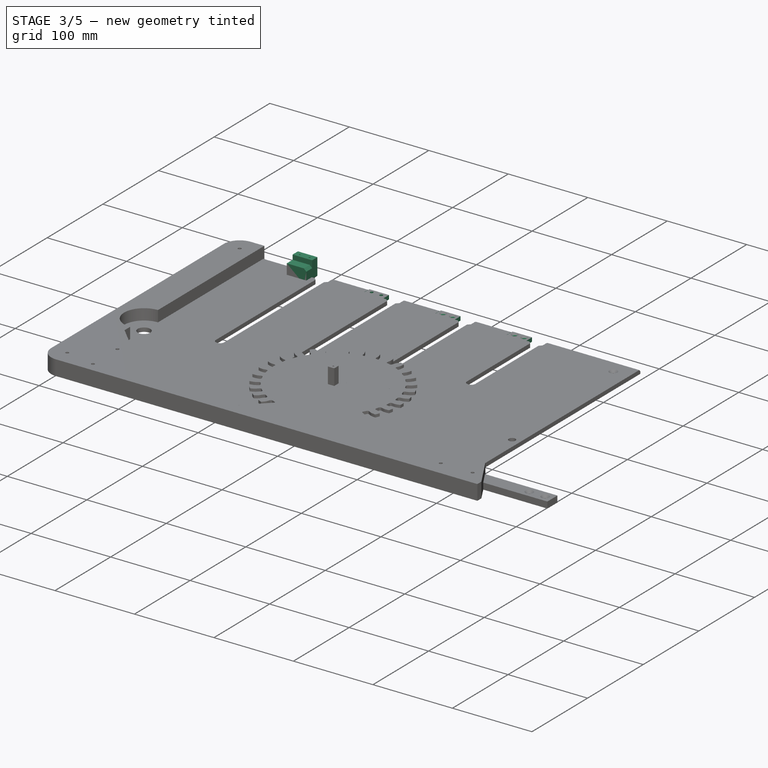
[diagram: stage 3 of 5 — iso view after this stage's code; geometry added in this stage tinted green]
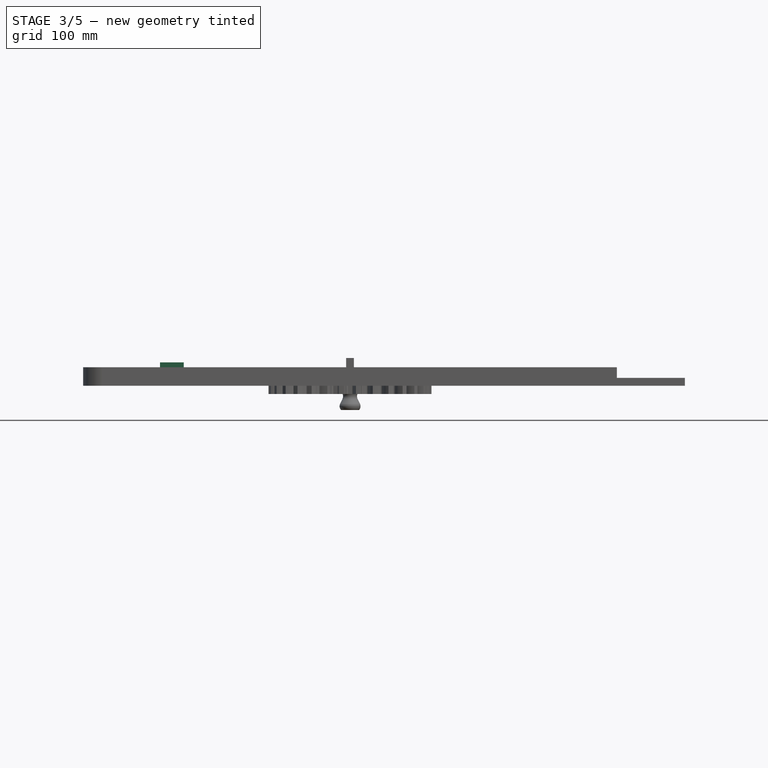
[diagram: stage 3 of 5 — front view after this stage's code; geometry added in this stage tinted green]
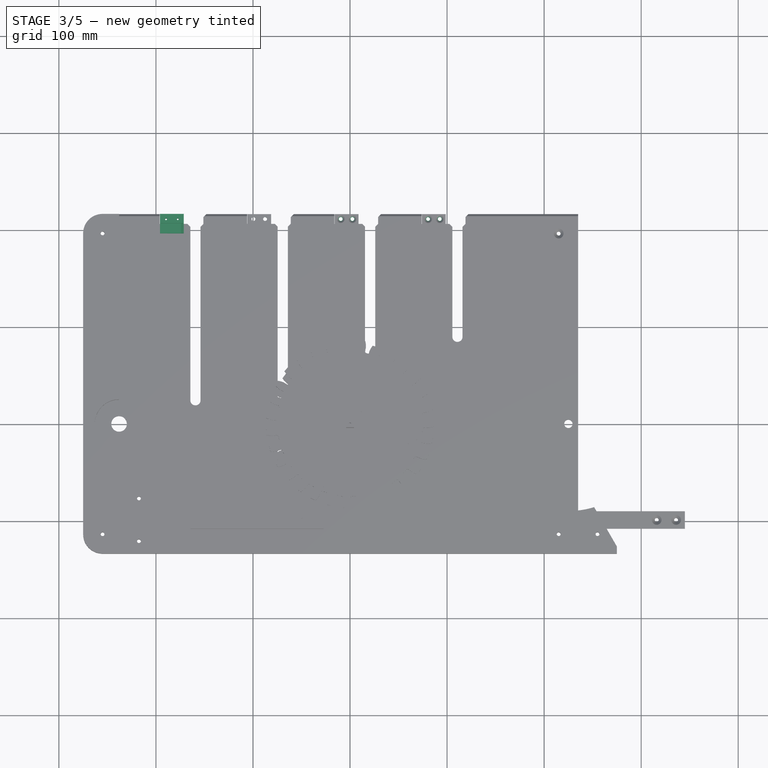
[diagram: stage 3 of 5 — top view after this stage's code; geometry added in this stage tinted green]
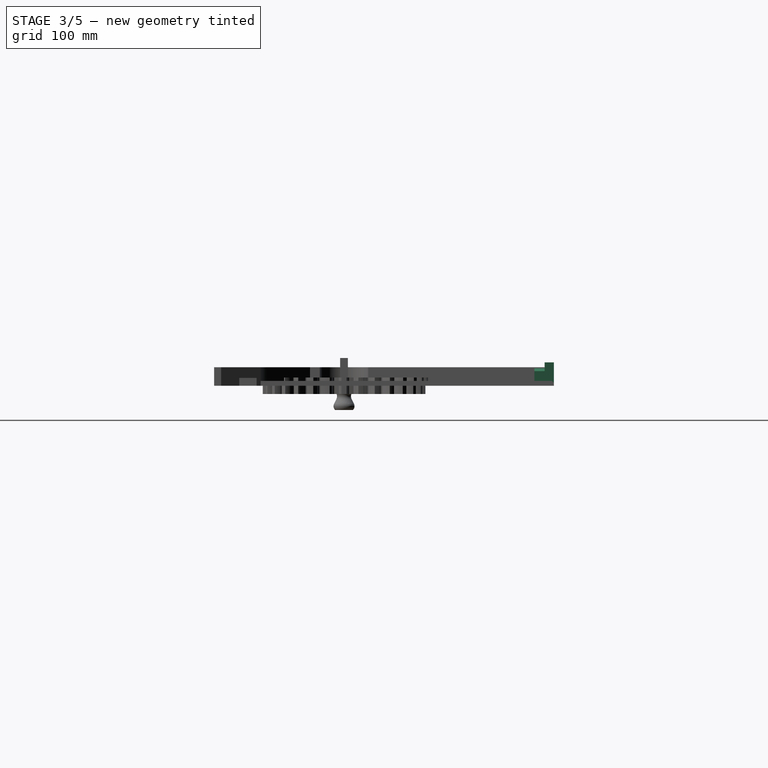
[diagram: stage 3 of 5 — right view after this stage's code; geometry added in this stage tinted green]
FEATURE [PartDesign::Chamfer] Chamfer010
  Angle = 45
  Base = -> Chamfer009 [Edge4,Edge52,Edge64,Edge65,Edge53]
  BaseFeature = -> Chamfer009
  ChamferType = 0
  FlipDirection = false
  Refine = true
  Size = 2
  Size2 = 1
  SupportTransform = false
FEATURE [PartDesign::Chamfer] Chamfer011
  Angle = 45
  Base = -> Chamfer010 [Edge80,Edge77,Edge75,Edge79]
  BaseFeature = -> Chamfer010
  ChamferType = 0
  FlipDirection = false
  Refine = true
  Size = 3
  Size2 = 1
  SupportTransform = false
FEATURE [Sketcher::SketchObject] Sketch052
  ExternalGeometry = -> [Chamfer011,ShapeBinder003]
  MapMode = 5
  Placement = pos=(0,0,5) rot=(0,0,1;0rad)
  Support = -> [Chamfer011]
  sketch-geometry (16):
    g0: LineSegment StartX=-196.073 StartY=216.2 StartZ=0 EndX=-151.073 EndY=216.2 EndZ=0
    g1: LineSegment StartX=-151.073 StartY=216.2 StartZ=0 EndX=-151.073 EndY=206.2 EndZ=0
    g2: LineSegment StartX=-151.073 StartY=206.2 StartZ=0 EndX=-196.073 EndY=206.2 EndZ=0
    g3: LineSegment StartX=-196.073 StartY=206.2 StartZ=0 EndX=-196.073 EndY=216.2 EndZ=0
    g4: LineSegment StartX=-106.073 StartY=216.2 StartZ=0 EndX=-61.0732 EndY=216.2 EndZ=0
    g5: LineSegment StartX=-61.0732 StartY=216.2 StartZ=0 EndX=-61.0732 EndY=206.2 EndZ=0
    g6: LineSegment StartX=-61.0732 StartY=206.2 StartZ=0 EndX=-106.073 EndY=206.2 EndZ=0
    g7: LineSegment StartX=-106.073 StartY=206.2 StartZ=0 EndX=-106.073 EndY=216.2 EndZ=0
    g8: LineSegment StartX=-16.0732 StartY=216.2 StartZ=0 EndX=28.9268 EndY=216.2 EndZ=0
    g9: LineSegment StartX=28.9268 StartY=216.2 StartZ=0 EndX=28.9268 EndY=206.2 EndZ=0
    g10: LineSegment StartX=28.9268 StartY=206.2 StartZ=0 EndX=-16.0732 EndY=206.2 EndZ=0
    g11: LineSegment StartX=-16.0732 StartY=206.2 StartZ=0 EndX=-16.0732 EndY=216.2 EndZ=0
    g12: LineSegment StartX=73.9268 StartY=216.2 StartZ=0 EndX=118.927 EndY=216.2 EndZ=0
    g13: LineSegment StartX=118.927 StartY=216.2 StartZ=0 EndX=118.927 EndY=206.2 EndZ=0
    g14: LineSegment StartX=118.927 StartY=206.2 StartZ=0 EndX=73.9268 EndY=206.2 EndZ=0
    g15: LineSegment StartX=73.9268 StartY=206.2 StartZ=0 EndX=73.9268 EndY=216.2 EndZ=0
  constraints (48):
    c: Coincident(g0,g1)
    c: Coincident(g1,g2)
    c: Coincident(g2,g3)
    c: Coincident(g3,g0)
    c: Horizontal(g0)
    c: Horizontal(g2)
    c: Vertical(g1)
    c: Vertical(g3)
    c: PointOnObject(g0,g-7)
    c: Coincident(g4,g5)
    c: Coincident(g5,g6)
    c: Coincident(g6,g7)
    c: Coincident(g7,g4)
    c: Horizontal(g4)
    c: Horizontal(g6)
    c: Vertical(g5)
    c: Vertical(g7)
    c: PointOnObject(g4,g-7)
    c: Coincident(g8,g9)
    c: Coincident(g9,g10)
    c: Coincident(g10,g11)
    c: Coincident(g11,g8)
    c: Horizontal(g8)
    c: Horizontal(g10)
    c: Vertical(g9)
    c: Vertical(g11)
    c: PointOnObject(g8,g-7)
    c: Coincident(g12,g13)
    c: Coincident(g13,g14)
    c: Coincident(g14,g15)
    c: Coincident(g15,g12)
    c: Horizontal(g12)
    c: Horizontal(g14)
    c: Vertical(g13)
    c: Vertical(g15)
    c: PointOnObject(g12,g-7)
    c: Equal(g1,g5)
    c: Equal(g5,g9)
    c: Equal(g9,g13)
    c: DistanceY(g1,g1) = 10
    c: Equal(g0,g4)
    c: Equal(g4,g8)
    c: Equal(g8,g12)
    c: DistanceX(g-3,g0) = 13.5
    c: DistanceX(g2,g2) = 45
    c: DistanceX(g-4,g4) = 13.5
    c: DistanceX(g-5,g8) = 13.5
    c: DistanceX(g-6,g12) = 13.5
FEATURE [PartDesign::Pocket] Pocket033
  BaseFeature = -> Chamfer011
  Length = 5
  Length2 = 100
  Profile = -> Sketch052
  Refine = true
  Type = 1
FEATURE [PartDesign::ShapeBinder] ShapeBinder010
  Support = -> [Sketch]
  TraceSupport = false
FEATURE [Sketcher::SketchObject] Sketch053
  ExternalGeometry = -> [ShapeBinder010]
  MapMode = 5
  Support = -> [XY_Plane019]
  sketch-geometry (8):
    g0: LineSegment StartX=-81.3232 StartY=-45.4177 StartZ=0 EndX=-81.3232 EndY=-107.8 EndZ=0
    g1: LineSegment StartX=-81.3232 StartY=-107.8 StartZ=0 EndX=-105.823 EndY=-107.8 EndZ=0
    g2: LineSegment StartX=-105.823 StartY=-107.8 StartZ=0 EndX=-105.823 EndY=216.2 EndZ=0
    g3: LineSegment StartX=-105.823 StartY=216.2 StartZ=0 EndX=-81.3232 EndY=216.2 EndZ=0
    g4: LineSegment StartX=-81.3232 StartY=216.2 StartZ=0 EndX=-81.3232 EndY=-27.4177 EndZ=0
    g5: ArcOfCircle CenterX=-89.3232 CenterY=-36.4177 CenterZ=0 NormalX=0 NormalY=0 NormalZ=1 AngleXU=0 Radius=9 StartAngle=1.5708 EndAngle=4.71239
    g6: LineSegment StartX=-89.3232 StartY=-45.4177 StartZ=0 EndX=-81.3232 EndY=-45.4177 EndZ=0
    g7: LineSegment StartX=-89.3232 StartY=-27.4177 StartZ=0 EndX=-81.3232 EndY=-27.4177 EndZ=0
  constraints (25):
    c: Vertical(g0)
    c: Coincident(g0,g1)
    c: Coincident(g1,g2)
    c: Vertical(g2)
    c: Horizontal(g3)
    c: Coincident(g3,g4)
    c: Vertical(g4)
    c: Vertical(g0,g4)
    c: Coincident(g6,g5)
    c: Coincident(g6,g0)
    c: Coincident(g7,g5)
    c: Coincident(g7,g4)
    c: Horizontal(g7)
    c: Horizontal(g6)
    c: Horizontal(g1)
    c: Radius(g5) = 9
    c: Vertical(g5,g5)
    c: Vertical(g5,g5)
    c: DistanceX(g1,g1) = 24.5
    c: Coincident(g2,g3)
    c: PointOnObject(g2,g-3)
    c: DistanceY(g2,g2) = 324
    c: Horizontal(g-4,g5)
    c: DistanceX(g5,g-4) = 20
    c: DistanceX(g4,g-4) = 12
FEATURE [PartDesign::Pad] Pad026
  Direction = (1,1,1)
  Length = 5
  Length2 = 100
  Profile = -> Sketch053
  Refine = true
  Type = 0
FEATURE [PartDesign::ShapeBinder] ShapeBinder011
  Support = -> [Sketch]
  TraceSupport = false
FEATURE [Sketcher::SketchObject] Sketch054
  ExternalGeometry = -> [ShapeBinder011]
  MapMode = 5
  Support = -> [XY_Plane011]
  sketch-geometry (8):
    g0: LineSegment StartX=8.67682 StartY=19.9777 StartZ=0 EndX=8.67682 EndY=-107.8 EndZ=0
    g1: LineSegment StartX=8.67682 StartY=-107.8 StartZ=0 EndX=-15.8232 EndY=-107.8 EndZ=0
    g2: LineSegment StartX=-15.8232 StartY=-107.8 StartZ=0 EndX=-15.8232 EndY=216.2 EndZ=0
    g3: LineSegment StartX=-15.8232 StartY=216.2 StartZ=0 EndX=8.67682 EndY=216.2 EndZ=0
    g4: LineSegment StartX=8.67682 StartY=216.2 StartZ=0 EndX=8.67682 EndY=37.9777 EndZ=0
    g5: ArcOfCircle CenterX=0.676816 CenterY=28.9777 CenterZ=0 NormalX=0 NormalY=0 NormalZ=1 AngleXU=0 Radius=9 StartAngle=1.5708 EndAngle=4.71239
    g6: LineSegment StartX=0.676816 StartY=19.9777 StartZ=0 EndX=8.67682 EndY=19.9777 EndZ=0
    g7: LineSegment StartX=0.676816 StartY=37.9777 StartZ=0 EndX=8.67682 EndY=37.9777 EndZ=0
  constraints (25):
    c: Vertical(g0)
    c: Coincident(g0,g1)
    c: Coincident(g1,g2)
    c: Vertical(g2)
    c: Horizontal(g3)
    c: Coincident(g3,g4)
    c: Vertical(g4)
    c: Vertical(g0,g4)
    c: Coincident(g6,g5)
    c: Coincident(g6,g0)
    c: Coincident(g7,g5)
    c: Coincident(g7,g4)
    c: Horizontal(g7)
    c: Horizontal(g6)
    c: Horizontal(g1)
    c: Radius(g5) = 9
    c: Vertical(g5,g5)
    c: Vertical(g5,g5)
    c: DistanceX(g1,g1) = 24.5
    c: Coincident(g2,g3)
    c: PointOnObject(g2,g-3)
    c: DistanceY(g2,g2) = 324
    c: Horizontal(g-4,g5)
    c: DistanceX(g5,g-4) = 20
    c: DistanceX(g4,g-4) = 12
FEATURE [PartDesign::Pad] Pad027
  Direction = (1,1,1)
  Length = 5
  Length2 = 100
  Profile = -> Sketch054
  Refine = true
  Type = 0
FEATURE [PartDesign::ShapeBinder] ShapeBinder012
  Support = -> [Sketch]
  TraceSupport = false
FEATURE [Sketcher::SketchObject] Sketch055
  ExternalGeometry = -> [ShapeBinder012]
  MapMode = 5
  sketch-geometry (8):
    g0: LineSegment StartX=98.6768 StartY=80.8003 StartZ=0 EndX=98.6768 EndY=-107.8 EndZ=0
    g1: LineSegment StartX=98.6768 StartY=-107.8 StartZ=0 EndX=74.1768 EndY=-107.8 EndZ=0
    g2: LineSegment StartX=74.1768 StartY=-107.8 StartZ=0 EndX=74.1768 EndY=216.2 EndZ=0
    g3: LineSegment StartX=74.1768 StartY=216.2 StartZ=0 EndX=98.6768 EndY=216.2 EndZ=0
    g4: LineSegment StartX=98.6768 StartY=216.2 StartZ=0 EndX=98.6768 EndY=98.8003 EndZ=0
    g5: ArcOfCircle CenterX=90.6768 CenterY=89.8003 CenterZ=0 NormalX=0 NormalY=0 NormalZ=1 AngleXU=0 Radius=9 StartAngle=1.5708 EndAngle=4.71239
    g6: LineSegment StartX=90.6768 StartY=80.8003 StartZ=0 EndX=98.6768 EndY=80.8003 EndZ=0
    g7: LineSegment StartX=90.6768 StartY=98.8003 StartZ=0 EndX=98.6768 EndY=98.8003 EndZ=0
  constraints (25):
    c: Vertical(g0)
    c: Coincident(g0,g1)
    c: Coincident(g1,g2)
    c: Vertical(g2)
    c: Horizontal(g3)
    c: Coincident(g3,g4)
    c: Vertical(g4)
    c: Vertical(g0,g4)
    c: Coincident(g6,g5)
    c: Coincident(g6,g0)
    c: Coincident(g7,g5)
    c: Coincident(g7,g4)
    c: Horizontal(g7)
    c: Horizontal(g6)
    c: Horizontal(g1)
    c: Radius(g5) = 9
    c: Vertical(g5,g5)
    c: Vertical(g5,g5)
    c: DistanceX(g1,g1) = 24.5
    c: Coincident(g2,g3)
    c: PointOnObject(g2,g-3)
    c: DistanceY(g2,g2) = 324
    c: DistanceX(g5,g-4) = 20
    c: DistanceX(g4,g-4) = 12
    c: Horizontal(g5,g-4)
FEATURE [PartDesign::Pad] Pad028
  Direction = (1,1,1)
  Length = 5
  Length2 = 100
  Profile = -> Sketch055
  Refine = true
  Type = 0
FEATURE [PartDesign::Body] Body018  label="GearLockA"
  Group = -> [ShapeBinder009,Sketch051,Pad025,Sketch057,Pocket035,Chamfer019]
  Origin = -> Origin018
  Placement = pos=(0,0,15.5) rot=(0,0,1;0rad)
  Tip = -> Chamfer019
FEATURE [Sketcher::SketchObject] Sketch058
  ExternalGeometry = -> [Pad026]
  MapMode = 5
  Placement = pos=(0,0,5) rot=(0,0,1;0rad)
  Support = -> [Pad026]
  sketch-geometry (4):
    g0: LineSegment [constr] StartX=-93.5732 StartY=216.2 StartZ=0 EndX=-93.5732 EndY=211.2 EndZ=0
    g1: LineSegment [constr] StartX=-99.5732 StartY=211.2 StartZ=0 EndX=-87.5732 EndY=211.2 EndZ=0
    g2: Circle CenterX=-99.5732 CenterY=211.2 CenterZ=0 NormalX=0 NormalY=0 NormalZ=1 AngleXU=0 Radius=2
    g3: Circle CenterX=-87.5732 CenterY=211.2 CenterZ=0 NormalX=0 NormalY=0 NormalZ=1 AngleXU=0 Radius=2
  constraints (10):
    c: PointOnObject(g0,g-3)
    c: PointOnObject(g0,g1)
    c: Symmetric(g1,g1,g0)
    c: DistanceX(g1,g1) = 12
    c: DistanceY(g0,g0) = 5
    c: Symmetric(g-3,g-3,g0)
    c: Coincident(g2,g1)
    c: Coincident(g3,g1)
    c: Equal(g3,g2)
    c: Radius(g2) = 2
FEATURE [PartDesign::Pocket] Pocket036
  BaseFeature = -> Pad026
  Length = 5
  Length2 = 100
  Profile = -> Sketch058
  Refine = true
  Type = 1
FEATURE [PartDesign::Body] Body019  label="GearLockB"
  Group = -> [ShapeBinder010,Sketch053,Pad026,Sketch058,Pocket036,Chamfer020]
  Origin = -> Origin019
  Placement = pos=(0,0,15.5) rot=(0,0,1;0rad)
  Tip = -> Chamfer020
FEATURE [Sketcher::SketchObject] Sketch059
  ExternalGeometry = -> [Pad027]
  MapMode = 5
  Placement = pos=(0,0,5) rot=(0,0,1;0rad)
  Support = -> [Pad027]
  sketch-geometry (4):
    g0: LineSegment [constr] StartX=-9.57318 StartY=211.2 StartZ=0 EndX=2.42682 EndY=211.2 EndZ=0
    g1: LineSegment [constr] StartX=-3.57318 StartY=211.2 StartZ=0 EndX=-3.57318 EndY=216.2 EndZ=0
    g2: Circle CenterX=-9.57318 CenterY=211.2 CenterZ=0 NormalX=0 NormalY=0 NormalZ=1 AngleXU=0 Radius=2
    g3: Circle CenterX=2.42682 CenterY=211.2 CenterZ=0 NormalX=0 NormalY=0 NormalZ=1 AngleXU=0 Radius=2
  constraints (10):
    c: PointOnObject(g1,g0)
    c: PointOnObject(g1,g-3)
    c: Symmetric(g-3,g-3,g1)
    c: Symmetric(g0,g0,g1)
    c: DistanceY(g1,g1) = 5
    c: DistanceX(g0,g0) = 12
    c: Coincident(g3,g0)
    c: Coincident(g2,g0)
    c: Equal(g2,g3)
    c: Radius(g2) = 2
FEATURE [PartDesign::Pocket] Pocket037
  BaseFeature = -> Pad027
  Length = 5
  Length2 = 100
  Profile = -> Sketch059
  Refine = true
  Type = 1
FEATURE [PartDesign::Chamfer] Chamfer021
  Angle = 45
  Base = -> Pocket037 [Edge24,Edge23]
  BaseFeature = -> Pocket037
  ChamferType = 0
  FlipDirection = false
  Refine = true
  Size = 2
  Size2 = 1
  SupportTransform = false
FEATURE [PartDesign::Body] Body020  label="GearLockC"
  Group = -> [ShapeBinder011,Sketch054,Pad027,Sketch059,Pocket037,Chamfer021]
  Origin = -> Origin020
  Placement = pos=(0,0,15.5) rot=(0,0,1;0rad)
  Tip = -> Chamfer021
FEATURE [Sketcher::SketchObject] Sketch060
  ExternalGeometry = -> [Pad028]
  MapMode = 5
  Placement = pos=(0,0,5) rot=(0,0,1;0rad)
  Support = -> [Pad028]
  sketch-geometry (4):
    g0: LineSegment [constr] StartX=80.4268 StartY=211.2 StartZ=0 EndX=92.4268 EndY=211.2 EndZ=0
    g1: LineSegment [constr] StartX=86.4268 StartY=216.2 StartZ=0 EndX=86.4268 EndY=211.2 EndZ=0
    g2: Circle CenterX=80.4268 CenterY=211.2 CenterZ=0 NormalX=0 NormalY=0 NormalZ=1 AngleXU=0 Radius=2
    g3: Circle CenterX=92.4268 CenterY=211.2 CenterZ=0 NormalX=0 NormalY=0 NormalZ=1 AngleXU=0 Radius=2
  constraints (10):
    c: PointOnObject(g1,g-3)
    c: PointOnObject(g1,g0)
    c: DistanceY(g1,g1) = 5
    c: DistanceX(g0,g0) = 12
    c: Symmetric(g0,g0,g1)
    c: Symmetric(g-3,g-3,g1)
    c: Coincident(g2,g0)
    c: Coincident(g3,g0)
    c: Equal(g3,g2)
    c: Radius(g2) = 2
FEATURE [PartDesign::Pocket] Pocket038
  BaseFeature = -> Pad028
  Length = 5
  Length2 = 100
  Profile = -> Sketch060
  Refine = true
  Type = 1
FEATURE [PartDesign::Chamfer] Chamfer022
  Angle = 45
  Base = -> Pocket038 [Edge24,Edge23]
  BaseFeature = -> Pocket038
  ChamferType = 0
  FlipDirection = false
  Refine = true
  Size = 2
  Size2 = 1
  SupportTransform = false
FEATURE [PartDesign::Body] Body021  label="GearLockD"
  Group = -> [ShapeBinder012,Sketch055,Pad028,Sketch060,Pocket038,Chamfer022]
  Origin = -> Origin021
  Placement = pos=(0,0,15.5) rot=(0,0,1;0rad)
  Tip = -> Chamfer022
FEATURE [Sketcher::SketchObject] Sketch061
  MapMode = 5
  Support = -> [XY_Plane023]
  sketch-geometry (4):
    g0: LineSegment StartX=-195.8 StartY=216.2 StartZ=0 EndX=-171.3 EndY=216.2 EndZ=0
    g1: LineSegment StartX=-171.3 StartY=216.2 StartZ=0 EndX=-171.3 EndY=196.2 EndZ=0
    g2: LineSegment StartX=-171.3 StartY=196.2 StartZ=0 EndX=-195.8 EndY=196.2 EndZ=0
    g3: LineSegment StartX=-195.8 StartY=196.2 StartZ=0 EndX=-195.8 EndY=216.2 EndZ=0
  constraints (12):
    c: Coincident(g0,g1)
    c: Coincident(g1,g2)
    c: Coincident(g2,g3)
    c: Coincident(g3,g0)
    c: Horizontal(g0)
    c: Horizontal(g2)
    c: Vertical(g1)
    c: Vertical(g3)
    c: DistanceY(g1,g1) = 20
    c: DistanceX(g0,g0) = 24.5
    c: DistanceX(g1,g-1) = 171.3
    c: DistanceY(g-1,g0) = 216.2
FEATURE [PartDesign::Pad] Pad029
  Direction = (1,1,1)
  Length = 24
  Length2 = 100
  Profile = -> Sketch061
  Refine = true
  Type = 0
FEATURE [Sketcher::SketchObject] Sketch062
  ExternalGeometry = -> [Pad029]
  MapMode = 5
  Placement = pos=(0,0,24) rot=(0,0,1;0rad)
  Support = -> [Pad029]
  sketch-geometry (4):
    g0: LineSegment StartX=-195.8 StartY=196.2 StartZ=0 EndX=-171.3 EndY=196.2 EndZ=0
    g1: LineSegment StartX=-171.3 StartY=196.2 StartZ=0 EndX=-171.3 EndY=206.7 EndZ=0
    g2: LineSegment StartX=-171.3 StartY=206.7 StartZ=0 EndX=-195.8 EndY=206.7 EndZ=0
    g3: LineSegment StartX=-195.8 StartY=206.7 StartZ=0 EndX=-195.8 EndY=196.2 EndZ=0
  constraints (10):
    c: Coincident(g0,g1)
    c: Coincident(g1,g2)
    c: Coincident(g2,g3)
    c: Coincident(g3,g0)
    c: Horizontal(g2)
    c: Vertical(g1)
    c: Vertical(g3)
    c: Coincident(g0,g-3)
    c: Coincident(g0,g-3)
    c: DistanceY(g1,g1) = 10.5
FEATURE [PartDesign::Pocket] Pocket039
  BaseFeature = -> Pad029
  Length = 6
  Length2 = 100
  Profile = -> Sketch062
  Refine = true
  Type = 0
FEATURE [PartDesign::Chamfer] Chamfer023
  Angle = 45
  Base = -> Pocket039 [Edge12]
  BaseFeature = -> Pocket039
  ChamferType = 0
  FlipDirection = false
  Refine = true
  Size = 3
  Size2 = 1
  SupportTransform = false
FEATURE [Sketcher::SketchObject] Sketch063
  ExternalGeometry = -> [Chamfer023]
  MapMode = 5
  Placement = pos=(0,0,24) rot=(0,0,1;0rad)
  Support = -> [Chamfer023]
  sketch-geometry (4):
    g0: LineSegment [constr] StartX=-183.55 StartY=216.2 StartZ=0 EndX=-183.55 EndY=211.2 EndZ=0
    g1: LineSegment [constr] StartX=-189.55 StartY=210.725 StartZ=0 EndX=-177.55 EndY=210.725 EndZ=0
    g2: Circle CenterX=-189.55 CenterY=210.725 CenterZ=0 NormalX=0 NormalY=0 NormalZ=1 AngleXU=0 Radius=1
    g3: Circle CenterX=-177.55 CenterY=210.725 CenterZ=0 NormalX=0 NormalY=0 NormalZ=1 AngleXU=0 Radius=1
  constraints (9):
    c: PointOnObject(g0,g-3)
    c: Symmetric(g1,g1,g0)
    c: DistanceY(g0,g0) = 5
    c: DistanceX(g1,g1) = 12
    c: Symmetric(g-3,g-3,g0)
    c: Coincident(g2,g1)
    c: Coincident(g3,g1)
    c: Equal(g3,g2)
    c: Radius(g2) = 1
FEATURE [PartDesign::Pocket] Pocket040
  BaseFeature = -> Chamfer023
  Length = 5
  Length2 = 100
  Profile = -> Sketch063
  Refine = true
  Type = 1
FEATURE [PartDesign::Chamfer] Chamfer024
  Angle = 45
  Base = -> Pocket033 [Edge137,Edge131,Edge117,Edge111,Edge97,Edge91,Edge77,Edge71]
  BaseFeature = -> Pocket033
  ChamferType = 0
  FlipDirection = false
  Refine = true
  Size = 2.99
  Size2 = 1
  SupportTransform = false
FEATURE [Sketcher::SketchObject] Sketch064
  MapMode = 5
  Support = -> [XY_Plane024]
  sketch-geometry (4):
    g0: LineSegment StartX=-235 StartY=-84 StartZ=0 EndX=-200 EndY=-84 EndZ=0
    g1: LineSegment StartX=-200 StartY=-84 StartZ=0 EndX=-200 EndY=-114 EndZ=0
    g2: LineSegment StartX=-200 StartY=-114 StartZ=0 EndX=-235 EndY=-114 EndZ=0
    g3: LineSegment StartX=-235 StartY=-114 StartZ=0 EndX=-235 EndY=-84 EndZ=0
  constraints (12):
    c: Coincident(g0,g1)
    c: Coincident(g1,g2)
    c: Coincident(g2,g3)
    c: Coincident(g3,g0)
    c: Horizontal(g0)
    c: Horizontal(g2)
    c: Vertical(g1)
    c: Vertical(g3)
    c: DistanceY(g1,g1) = 30
    c: DistanceX(g0,g0) = 35
    c: DistanceX(g0) = -200
    c: DistanceY(g0) = -84
FEATURE [PartDesign::Pad] Pad030
  Direction = (1,1,1)
  Length = 14
  Length2 = 100
  Profile = -> Sketch064
  Refine = true
  Type = 0
FEATURE [Sketcher::SketchObject] Sketch065
  ExternalGeometry = -> [Pad030]
  MapMode = 5
  Placement = pos=(0,0,0) rot=(1,0,0;3.14159rad)
  Support = -> [Pad030]
  sketch-geometry (5):
    g0: LineSegment StartX=-230 StartY=109 StartZ=0 EndX=-200 EndY=109 EndZ=0
    g1: LineSegment StartX=-200 StartY=109 StartZ=0 EndX=-200 EndY=89 EndZ=0
    g2: LineSegment StartX=-200 StartY=89 StartZ=0 EndX=-230 EndY=89 EndZ=0
    g3: LineSegment StartX=-230 StartY=89 StartZ=0 EndX=-230 EndY=109 EndZ=0
    g4: GeomPoint X=-200 Y=99 Z=0
  constraints (12):
    c: Coincident(g0,g1)
    c: Coincident(g1,g2)
    c: Coincident(g2,g3)
    c: Coincident(g3,g0)
    c: Horizontal(g0)
    c: Horizontal(g2)
    c: Vertical(g1)
    c: Vertical(g3)
    c: Symmetric(g1,g0,g4)
    c: Symmetric(g-3,g-3,g4)
    c: DistanceX(g-4,g0) = 5
    c: DistanceY(g0,g-4) = 5
FEATURE [PartDesign::Pocket] Pocket041
  BaseFeature = -> Pad030
  Length = 10
  Length2 = 100
  Profile = -> Sketch065
  Refine = true
  Type = 0
FEATURE [PartDesign::Chamfer] Chamfer025
  Angle = 45
  Base = -> Pocket040 [Edge3]
  BaseFeature = -> Pocket040
  ChamferType = 0
  FlipDirection = false
  Refine = true
  Size = 3
  Size2 = 1
  SupportTransform = false
FEATURE [PartDesign::Body] Body022  label="TopBlocker"
  Group = -> [Sketch061,Pad029,Sketch062,Pocket039,Chamfer023,Sketch063,Pocket040,Chamfer025]
  Origin = -> Origin022
  Placement = pos=(0,0,-8.6) rot=(0,0,1;0rad)
  Tip = -> Chamfer025
FEATURE [Sketcher::SketchObject] Sketch066
  ExternalGeometry = -> [Pocket041]
  MapMode = 5
  Placement = pos=(0,0,0) rot=(1,0,0;3.14159rad)
  Support = -> [Pocket041]
  sketch-geometry (7):
    g0: LineSegment StartX=-235 StartY=114 StartZ=0 EndX=-217.5 EndY=129 EndZ=0
    g1: LineSegment StartX=-200 StartY=114 StartZ=0 EndX=-217.5 EndY=129 EndZ=0
    g2: LineSegment StartX=-235 StartY=84 StartZ=0 EndX=-217.5 EndY=69 EndZ=0
    g3: LineSegment StartX=-200 StartY=84 StartZ=0 EndX=-217.5 EndY=69 EndZ=0
    g4: LineSegment [constr] StartX=-217.5 StartY=129 StartZ=0 EndX=-217.5 EndY=69 EndZ=0
    g5: LineSegment StartX=-235 StartY=114 StartZ=0 EndX=-200 EndY=114 EndZ=0
    g6: LineSegment StartX=-235 StartY=84 StartZ=0 EndX=-200 EndY=84 EndZ=0
  constraints (15):
    c: Coincident(g0,g-3)
    c: Coincident(g1,g-3)
    c: Coincident(g2,g-4)
    c: Coincident(g3,g-4)
    c: Coincident(g0,g1)
    c: Coincident(g2,g3)
    c: Coincident(g4,g0)
    c: Coincident(g4,g2)
    c: Symmetric(g2,g3,g4)
    c: DistanceY(g0,g0) = 15
    c: Equal(g0,g2)
    c: Coincident(g5,g0)
    c: Coincident(g5,g1)
    c: Coincident(g6,g2)
    c: Coincident(g6,g3)
FEATURE [PartDesign::Pad] Pad031
  BaseFeature = -> Pocket041
  Direction = (1,1,1)
  Length = 4
  Length2 = 100
  Profile = -> Sketch066
  Refine = true
  Reversed = true
  Type = 0
FEATURE [PartDesign::Fillet] Fillet012
  Base = -> Pad031 [Edge32,Edge22]
  BaseFeature = -> Pad031
  Radius = 6
  Refine = true
  SupportTransform = false
FEATURE [Sketcher::SketchObject] Sketch067
  ExternalGeometry = -> [Fillet012]
  MapMode = 5
  Placement = pos=(0,0,4) rot=(0,0,1;0rad)
  Support = -> [Fillet012]
  sketch-geometry (2):
    g0: Circle CenterX=-217.5 CenterY=-76.9025 CenterZ=0 NormalX=0 NormalY=0 NormalZ=1 AngleXU=0 Radius=2
    g1: Circle CenterX=-217.5 CenterY=-121.098 CenterZ=0 NormalX=0 NormalY=0 NormalZ=1 AngleXU=0 Radius=2
  constraints (4):
    c: Coincident(g0,g-3)
    c: Coincident(g1,g-4)
    c: Radius(g1) = 2
    c: Radius(g0) = 2
FEATURE [PartDesign::Pocket] Pocket042
  BaseFeature = -> Fillet012
  Length = 5
  Length2 = 100
  Profile = -> Sketch067
  Refine = true
  Type = 1
FEATURE [PartDesign::Chamfer] Chamfer026
  Angle = 45
  Base = -> Pocket042 [Edge30,Edge37,Edge12]
  BaseFeature = -> Pocket042
  ChamferType = 0
  FlipDirection = false
  Refine = true
  Size = 4
  Size2 = 1
  SupportTransform = false
FEATURE [PartDesign::Chamfer] Chamfer027
  Angle = 45
  Base = -> Chamfer026 [Edge56,Edge21]
  BaseFeature = -> Chamfer026
  ChamferType = 0
  FlipDirection = false
  Refine = true
  Size = 2
  Size2 = 1
  SupportTransform = false
FEATURE [PartDesign::Chamfer] Chamfer028
  Angle = 45
  Base = -> Chamfer027 [Edge46,Edge3]
  BaseFeature = -> Chamfer027
  ChamferType = 0
  FlipDirection = false
  Refine = true
  Size = 1
  Size2 = 1
  SupportTransform = false
FEATURE [PartDesign::Body] Body023  label="LockBarHolder"
  Group = -> [Sketch064,Pad030,Sketch065,Pocket041,Sketch066,Pad031,Fillet012,Sketch067,Pocket042,Chamfer026,Chamfer027,Chamfer028]
  Origin = -> Origin023
  Placement = pos=(0,0,15.5) rot=(0,0,1;0rad)
  Tip = -> Chamfer028
FEATURE [Sketcher::SketchObject] Sketch068
  MapMode = 5
  Placement = pos=(0,0,5) rot=(0,0,1;0rad)
  Support = -> [Chamfer024]
  sketch-geometry (2):
    g0: Circle CenterX=-217.5 CenterY=-77 CenterZ=0 NormalX=0 NormalY=0 NormalZ=1 AngleXU=0 Radius=2.5
    g1: Circle CenterX=-217.5 CenterY=-121 CenterZ=0 NormalX=0 NormalY=0 NormalZ=1 AngleXU=0 Radius=2.5
  constraints (6):
    c: Equal(g1,g0)
    c: Vertical(g1,g0)
    c: Radius(g1) = 2.5
    c: DistanceY(g1,g0) = 44
    c: DistanceX(g0) = -217.5
    c: DistanceY(g0) = -77
FEATURE [PartDesign::Pocket] Pocket043
  BaseFeature = -> Chamfer024
  Length = 5
  Length2 = 100
  Profile = -> Sketch068
  Refine = true
  Type = 1
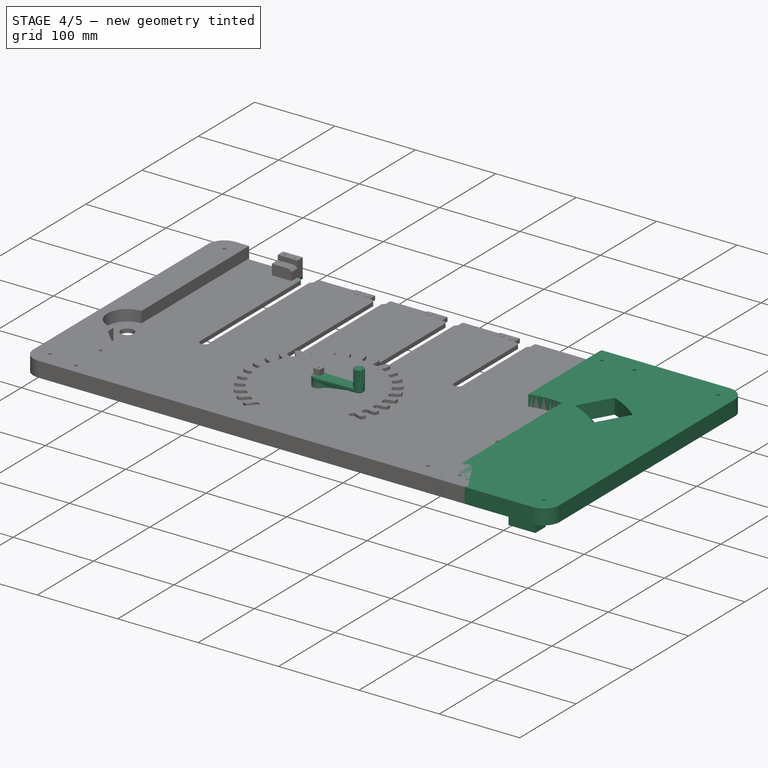
[diagram: stage 4 of 5 — iso view after this stage's code; geometry added in this stage tinted green]
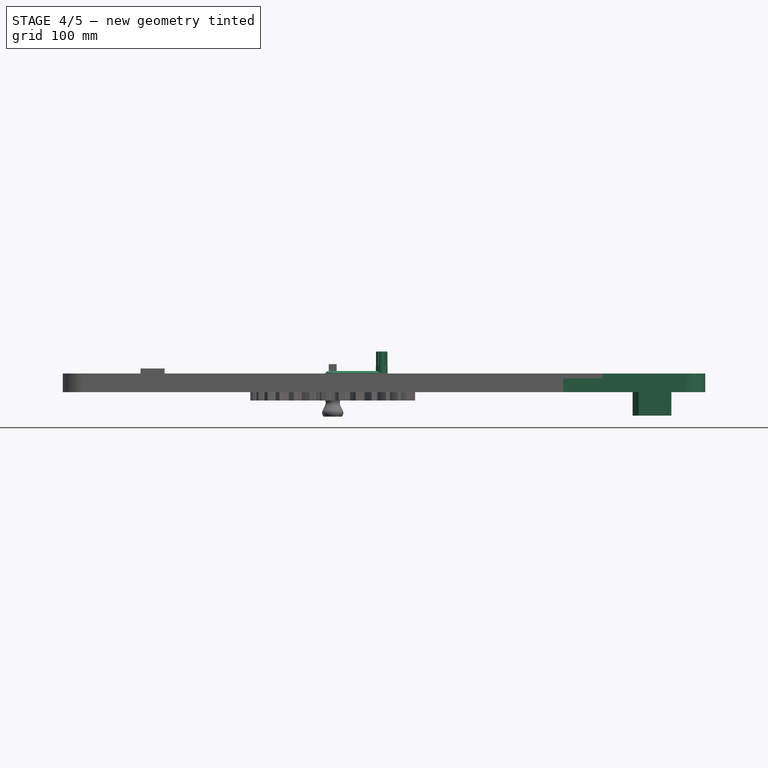
[diagram: stage 4 of 5 — front view after this stage's code; geometry added in this stage tinted green]
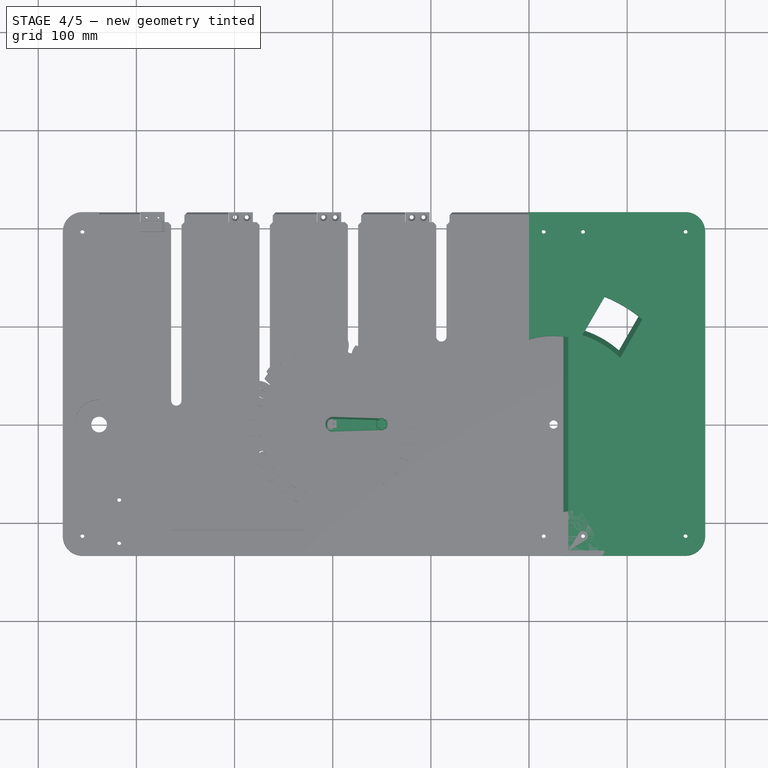
[diagram: stage 4 of 5 — top view after this stage's code; geometry added in this stage tinted green]
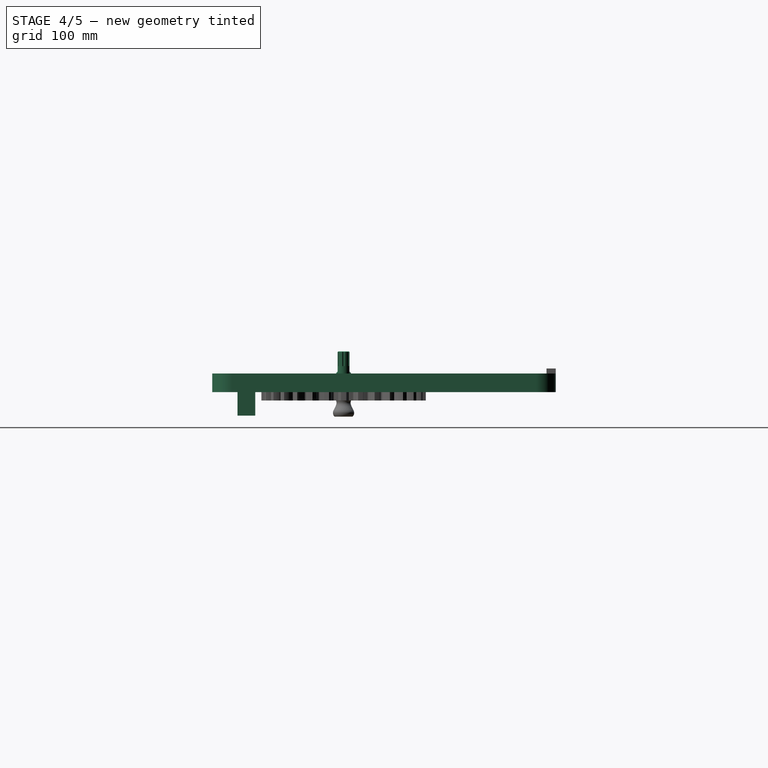
[diagram: stage 4 of 5 — right view after this stage's code; geometry added in this stage tinted green]
FEATURE [PartDesign::Pad] Pad016
  Direction = (1,1,1)
  Length = 19
  Length2 = 100
  Profile = -> Sketch021
  Refine = true
  Type = 0
FEATURE [PartDesign::Fillet] Fillet006
  Base = -> Pad016 [Edge23,Edge20]
  BaseFeature = -> Pad016
  Radius = 20
  Refine = true
  SupportTransform = false
FEATURE [Sketcher::SketchObject] Sketch023
  ExternalGeometry = -> [ShapeBinder004]
  MapMode = 5
  Placement = pos=(0,0,19) rot=(0,0,1;0rad)
  Support = -> [Fillet006]
  sketch-geometry (1):
    g0: Circle CenterX=215 CenterY=196.2 CenterZ=0 NormalX=0 NormalY=0 NormalZ=1 AngleXU=0 Radius=2
  constraints (3):
    c: Radius(g0) = 2
    c: DistanceY(g0,g-3) = 20
    c: DistanceX(g0,g-3) = 60
FEATURE [PartDesign::Pocket] Pocket014
  BaseFeature = -> Fillet006
  Length = 5
  Length2 = 100
  Profile = -> Sketch023
  Refine = true
  Type = 1
FEATURE [PartDesign::ShapeBinder] ShapeBinder005
  Support = -> [Sketch]
  TraceSupport = false
FEATURE [Sketcher::SketchObject] Sketch024
  ExternalGeometry = -> [ShapeBinder005]
  MapMode = 5
  Support = -> [XY_Plane013]
  sketch-geometry (4):
    g0: LineSegment StartX=235 StartY=216.2 StartZ=0 EndX=379.5 EndY=216.2 EndZ=0
    g1: LineSegment StartX=379.5 StartY=216.2 StartZ=0 EndX=379.5 EndY=-133.8 EndZ=0
    g2: LineSegment StartX=379.5 StartY=-133.8 StartZ=0 EndX=235 EndY=-133.8 EndZ=0
    g3: LineSegment StartX=235 StartY=-133.8 StartZ=0 EndX=235 EndY=216.2 EndZ=0
  constraints (12):
    c: Coincident(g0,g1)
    c: Coincident(g1,g2)
    c: Coincident(g2,g3)
    c: Coincident(g3,g0)
    c: Horizontal(g0)
    c: Horizontal(g2)
    c: Vertical(g1)
    c: Vertical(g3)
    c: PointOnObject(g-3,g2)
    c: PointOnObject(g-3,g0)
    c: DistanceX(g0,g0) = 144.5
    c: DistanceX(g0,g-3) = 40
FEATURE [PartDesign::Pad] Pad017
  Direction = (1,1,1)
  Length = 19
  Length2 = 100
  Profile = -> Sketch024
  Refine = true
  Type = 0
FEATURE [PartDesign::Fillet] Fillet007
  Base = -> Pad017 [Edge2,Edge5]
  BaseFeature = -> Pad017
  Radius = 20
  Refine = true
  SupportTransform = false
FEATURE [Sketcher::SketchObject] Sketch025
  ExternalGeometry = -> [Fillet007]
  MapMode = 5
  Placement = pos=(0,0,19) rot=(0,0,1;0rad)
  Support = -> [Fillet007]
  sketch-geometry (4):
    g0: Circle CenterX=359.5 CenterY=196.2 CenterZ=0 NormalX=0 NormalY=0 NormalZ=1 AngleXU=0 Radius=2
    g1: Circle CenterX=359.5 CenterY=-113.8 CenterZ=0 NormalX=0 NormalY=0 NormalZ=1 AngleXU=0 Radius=2
    g2: Circle CenterX=255 CenterY=-113.8 CenterZ=0 NormalX=0 NormalY=0 NormalZ=1 AngleXU=0 Radius=2
    g3: Circle CenterX=255 CenterY=196.2 CenterZ=0 NormalX=0 NormalY=0 NormalZ=1 AngleXU=0 Radius=2
  constraints (10):
    c: Coincident(g0,g-3)
    c: Coincident(g1,g-4)
    c: DistanceX(g-5,g3) = 20
    c: Vertical(g3,g2)
    c: Horizontal(g2,g1)
    c: Equal(g3,g0)
    c: Equal(g0,g1)
    c: Equal(g1,g2)
    c: Radius(g2) = 2
    c: Horizontal(g3,g0)
FEATURE [PartDesign::Pocket] Pocket015
  BaseFeature = -> Fillet007
  Length = 5
  Length2 = 100
  Profile = -> Sketch025
  Refine = true
  Type = 1
FEATURE [PartDesign::Chamfer] Chamfer005
  Angle = 45
  Base = -> Pocket015 [Edge4,Edge17]
  BaseFeature = -> Pocket015
  ChamferType = 0
  FlipDirection = false
  Refine = true
  Size = 5
  Size2 = 1
  SupportTransform = false
FEATURE [Sketcher::SketchObject] Sketch026
  ExternalGeometry = -> [Pocket014]
  MapMode = 5
  Placement = pos=(0,0,19) rot=(0,0,1;0rad)
  Support = -> [Pocket014]
  sketch-geometry (3):
    g0: Circle CenterX=254.999 CenterY=196.2 CenterZ=0 NormalX=0 NormalY=0 NormalZ=1 AngleXU=0 Radius=2
    g1: Circle CenterX=359.499 CenterY=196.2 CenterZ=0 NormalX=0 NormalY=0 NormalZ=1 AngleXU=0 Radius=2
    g2: Circle CenterX=359.499 CenterY=-113.8 CenterZ=0 NormalX=0 NormalY=0 NormalZ=1 AngleXU=0 Radius=2
  constraints (7):
    c: Coincident(g1,g-3)
    c: Coincident(g-4,g2)
    c: Equal(g2,g1)
    c: Equal(g1,g0)
    c: Radius(g0) = 2
    c: Horizontal(g0,g1)
    c: DistanceX(g0,g1) = 104.5
FEATURE [PartDesign::Pocket] Pocket016
  BaseFeature = -> Pocket014
  Length = 5
  Length2 = 100
  Profile = -> Sketch026
  Refine = true
  Type = 1
FEATURE [PartDesign::Body] Body010  label="Backing2"
  Group = -> [Sketch017,ShapeBinder002,Pad014,Fillet002,Fillet003,Sketch029,Pocket019]
  Origin = -> Origin010
  Placement = pos=(0,0,-9) rot=(0,0,1;0rad)
  Tip = -> Pocket019
FEATURE [Sketcher::SketchObject] Sketch030
  ExternalGeometry = -> [ShapeBinder005]
  MapMode = 5
  Placement = pos=(0,0,19) rot=(0,0,1;0rad)
  Support = -> [Chamfer005]
  sketch-geometry (7):
    g0: ArcOfCircle [constr] CenterX=225 CenterY=0 CenterZ=0 NormalX=0 NormalY=0 NormalZ=1 AngleXU=0 Radius=140 StartAngle=5.23599 EndAngle=7.33038
    g1: LineSegment [constr] StartX=225 StartY=0 StartZ=0 EndX=295 EndY=-121.244 EndZ=0
    g2: LineSegment [constr] StartX=225 StartY=0 StartZ=0 EndX=295 EndY=121.244 EndZ=0
    g3: LineSegment StartX=256.962 StartY=95.359 StartZ=0 EndX=276.962 EndY=130 EndZ=0
    g4: LineSegment StartX=311.603 StartY=110 StartZ=0 EndX=291.603 EndY=75.359 EndZ=0
    g5: ArcOfCircle CenterX=225 CenterY=0 CenterZ=0 NormalX=0 NormalY=0 NormalZ=1 AngleXU=0 Radius=100.573 StartAngle=0.847002 EndAngle=1.24739
    g6: ArcOfCircle CenterX=225 CenterY=0 CenterZ=0 NormalX=0 NormalY=0 NormalZ=1 AngleXU=0 Radius=140 StartAngle=0.90385 EndAngle=1.19055
  constraints (20):
    c: Coincident(g0,g-3)
    c: Coincident(g1,g0)
    c: Coincident(g1,g0)
    c: Coincident(g2,g0)
    c: Coincident(g2,g0)
    c: Angle(g2) = 1.0472
    c: Symmetric(g0,g0,g-1)
    c: PointOnObject(g4,g0)
    c: Radius(g0) = 140
    c: Coincident(g5,g0)
    c: Coincident(g5,g3)
    c: Coincident(g5,g4)
    c: Coincident(g6,g5)
    c: Coincident(g6,g3)
    c: Coincident(g6,g4)
    c: Distance(g4,g3) = 40
    c: Parallel(g4,g3)
    c: Parallel(g3,g2)
    c: Symmetric(g3,g4,g2)
    c: Distance(g4) = 40
FEATURE [PartDesign::Pocket] Pocket020
  BaseFeature = -> Chamfer005
  Length = 5
  Length2 = 100
  Profile = -> Sketch030
  Refine = true
  Type = 1
FEATURE [PartDesign::Chamfer] Chamfer006
  Angle = 45
  Base = -> Pocket020 [Edge40,Edge39,Edge38,Edge37]
  BaseFeature = -> Pocket020
  ChamferType = 0
  FlipDirection = false
  Refine = true
  Size = 5
  Size2 = 1
  SupportTransform = false
FEATURE [PartDesign::Chamfer] Chamfer007
  Angle = 45
  Base = -> Chamfer006 [Edge14,Edge13,Edge11,Edge12]
  BaseFeature = -> Chamfer006
  ChamferType = 0
  FlipDirection = false
  Refine = true
  Size = 3
  Size2 = 1
  SupportTransform = false
FEATURE [Sketcher::SketchObject] Sketch037
  MapMode = 5
  Placement = pos=(0,0,0) rot=(1,0,0;1.5708rad)
  Support = -> [XZ_Plane015]
  sketch-geometry (6):
    g0: LineSegment StartX=1.5 StartY=18.5 StartZ=0 EndX=2 EndY=18.5 EndZ=0
    g1: LineSegment StartX=2 StartY=18.5 StartZ=0 EndX=2 EndY=0 EndZ=0
    g2: LineSegment StartX=2 StartY=0 StartZ=0 EndX=7.5 EndY=0 EndZ=0
    g3: LineSegment StartX=7.5 StartY=0 StartZ=0 EndX=7.5 EndY=21.5 EndZ=0
    g4: LineSegment StartX=1.5 StartY=18.5 StartZ=0 EndX=1.5 EndY=21.5 EndZ=0
    g5: LineSegment StartX=1.5 StartY=21.5 StartZ=0 EndX=7.5 EndY=21.5 EndZ=0
  constraints (18):
    c: Horizontal(g0)
    c: Coincident(g0,g1)
    c: PointOnObject(g1,g-1)
    c: Vertical(g1)
    c: Coincident(g1,g2)
    c: PointOnObject(g2,g-1)
    c: Coincident(g2,g3)
    c: Vertical(g3)
    c: Coincident(g0,g4)
    c: Coincident(g4,g5)
    c: Coincident(g5,g3)
    c: Horizontal(g5)
    c: DistanceX(g-1,g0) = 1.5
    c: Vertical(g4)
    c: DistanceY(g4,g4) = 3
    c: DistanceX(g-1,g1) = 2
    c: DistanceY(g-1,g0) = 18.5
    c: DistanceX(g-1,g2) = 7.5
FEATURE [PartDesign::Revolution] Revolution002
  Angle = 360
  Axis = (0,2e-16,1)
  Base = (0,0,0)
  Placement = pos=(0,0,0) rot=(1,0,0;1.5708rad)
  Profile = -> Sketch037
  ReferenceAxis = -> Sketch037 [V_Axis]
  Refine = true
  Reversed = true
FEATURE [Sketcher::SketchObject] Sketch038
  ExternalGeometry = -> [Revolution002]
  MapMode = 5
  Placement = pos=(0,9.5e-15,21.5) rot=(0,0,1;3.14159rad)
  Support = -> [Revolution002]
  sketch-geometry (4):
    g0: ArcOfCircle CenterX=0 CenterY=0 CenterZ=0 NormalX=0 NormalY=0 NormalZ=1 AngleXU=0 Radius=7.5 StartAngle=4.68238 EndAngle=7.88399
    g1: ArcOfCircle CenterX=-50 CenterY=-3.1e-15 CenterZ=0 NormalX=0 NormalY=0 NormalZ=1 AngleXU=0 Radius=6 StartAngle=1.6008 EndAngle=4.68238
    g2: LineSegment StartX=-50.18 StartY=5.9973 StartZ=0 EndX=-0.225 EndY=7.49662 EndZ=0
    g3: LineSegment StartX=-50.18 StartY=-5.9973 StartZ=0 EndX=-0.225 EndY=-7.49662 EndZ=0
  constraints (9):
    c: Coincident(g0,g-1)
    c: PointOnObject(g0,g-3)
    c: Vertical(g0,g0)
    c: Tangent(g2,g1) = 1.5708
    c: Tangent(g3,g1) = -1.5708
    c: Tangent(g2,g0) = 1.5708
    c: Tangent(g3,g0) = -1.5708
    c: Radius(g1) = 6
    c: DistanceX(g1,g0) = 50
FEATURE [PartDesign::Pad] Pad019
  BaseFeature = -> Revolution002
  Direction = (1,1,1)
  Length = 6
  Length2 = 100
  Placement = pos=(0,0,0) rot=(1,0,0;1.5708rad)
  Profile = -> Sketch038
  Refine = true
  Reversed = true
  Type = 0
FEATURE [Sketcher::SketchObject] Sketch039
  ExternalGeometry = -> [Pad019]
  MapMode = 5
  Placement = pos=(0,1.18e-14,21.5) rot=(0,0,1;3.14159rad)
  Support = -> [Pad019]
  sketch-geometry (1):
    g0: Circle CenterX=-50 CenterY=-5.6e-15 CenterZ=0 NormalX=0 NormalY=0 NormalZ=1 AngleXU=0 Radius=6
  constraints (2):
    c: Coincident(g0,g-3)
    c: Equal(g0,g-3)
FEATURE [PartDesign::Pad] Pad020
  BaseFeature = -> Pad019
  Direction = (1,1,1)
  Length = 20
  Length2 = 100
  Placement = pos=(0,0,0) rot=(1,0,0;1.5708rad)
  Profile = -> Sketch039
  Refine = true
  Type = 0
FEATURE [Sketcher::SketchObject] Sketch040
  ExternalGeometry = -> [Pad020]
  MapMode = 5
  Placement = pos=(0,2.82e-14,41.5) rot=(0,0,1;3.14159rad)
  Support = -> [Pad020]
  sketch-geometry (13):
    g0: LineSegment [constr] StartX=-47 StartY=-5.19615 StartZ=0 EndX=-44 EndY=-1.87e-14 EndZ=0
    g1: LineSegment [constr] StartX=-44 StartY=-1.87e-14 StartZ=0 EndX=-47 EndY=5.19615 EndZ=0
    g2: LineSegment [constr] StartX=-47 StartY=5.19615 StartZ=0 EndX=-53 EndY=5.19615 EndZ=0
    g3: LineSegment [constr] StartX=-53 StartY=5.19615 StartZ=0 EndX=-56 EndY=-1.95e-14 EndZ=0
    g4: LineSegment [constr] StartX=-56 StartY=-1.95e-14 StartZ=0 EndX=-53 EndY=-5.19615 EndZ=0
    g5: LineSegment [constr] StartX=-53 StartY=-5.19615 StartZ=0 EndX=-47 EndY=-5.19615 EndZ=0
    g6: Circle [constr] CenterX=-50 CenterY=-1.84e-14 CenterZ=0 NormalX=0 NormalY=0 NormalZ=1 AngleXU=0 Radius=6
    g7: Circle CenterX=-47 CenterY=5.19615 CenterZ=0 NormalX=0 NormalY=0 NormalZ=1 AngleXU=0 Radius=1.2
    g8: Circle CenterX=-44 CenterY=-1.87e-14 CenterZ=0 NormalX=0 NormalY=0 NormalZ=1 AngleXU=0 Radius=1.2
    g9: Circle CenterX=-47 CenterY=-5.19615 CenterZ=0 NormalX=0 NormalY=0 NormalZ=1 AngleXU=0 Radius=1.2
    g10: Circle CenterX=-53 CenterY=-5.19615 CenterZ=0 NormalX=0 NormalY=0 NormalZ=1 AngleXU=0 Radius=1.2
    g11: Circle CenterX=-56 CenterY=-1.95e-14 CenterZ=0 NormalX=0 NormalY=0 NormalZ=1 AngleXU=0 Radius=1.2
    g12: Circle CenterX=-53 CenterY=5.19615 CenterZ=0 NormalX=0 NormalY=0 NormalZ=1 AngleXU=0 Radius=1.2
  constraints (28):
    c: Coincident(g0,g1)
    c: Coincident(g1,g2)
    c: Coincident(g2,g3)
    c: Coincident(g3,g4)
    c: Coincident(g4,g5)
    c: Coincident(g5,g0)
    c: Equal(g0, g1-g5) x5
    c: PointOnObject(g0,g6)
    c: PointOnObject(g1,g6)
    c: PointOnObject(g2,g6)
    c: PointOnObject(g3,g6)
    c: PointOnObject(g4,g6)
    c: PointOnObject(g5,g6)
    c: Coincident(g6,g-3)
    c: Equal(g6,g-3)
    c: Horizontal(g5)
    c: Coincident(g7,g1)
    c: Coincident(g8,g0)
    c: Coincident(g9,g0)
    c: Coincident(g10,g4)
    c: Coincident(g11,g3)
    c: Coincident(g12,g2)
    c: Equal(g12,g11)
    c: Equal(g11,g10)
    c: Equal(g10,g9)
    c: Equal(g9,g8)
    c: Equal(g8,g7)
    c: Radius(g12) = 1.2
FEATURE [PartDesign::Pocket] Pocket026
  BaseFeature = -> Pad020
  Length = 15
  Length2 = 100
  Placement = pos=(0,0,0) rot=(1,0,0;1.5708rad)
  Profile = -> Sketch040
  Refine = true
  Type = 0
FEATURE [PartDesign::Chamfer] Chamfer013
  Angle = 45
  Base = -> Pocket026 [Face9]
  BaseFeature = -> Pocket026
  ChamferType = 0
  FlipDirection = false
  Placement = pos=(0,0,0) rot=(1,0,0;1.5708rad)
  Refine = true
  Size = 0.65
  Size2 = 1
  SupportTransform = false
FEATURE [PartDesign::Chamfer] Chamfer014
  Angle = 45
  Base = -> Chamfer013 [Edge40]
  BaseFeature = -> Chamfer013
  ChamferType = 0
  FlipDirection = false
  Placement = pos=(0,0,0) rot=(1,0,0;1.5708rad)
  Refine = true
  Size = 2
  Size2 = 1
  SupportTransform = false
FEATURE [PartDesign::Chamfer] Chamfer015
  Angle = 45
  Base = -> Chamfer014 [Edge4]
  BaseFeature = -> Chamfer014
  ChamferType = 0
  FlipDirection = false
  Placement = pos=(0,0,0) rot=(1,0,0;1.5708rad)
  Refine = true
  Size = 1
  Size2 = 1
  SupportTransform = false
FEATURE [Sketcher::SketchObject] Sketch041
  MapMode = 5
  Placement = pos=(0,0,0) rot=(1,0,0;1.5708rad)
  Support = -> [XZ_Plane015]
  sketch-geometry (3):
    g0: LineSegment StartX=0 StartY=16 StartZ=0 EndX=0 EndY=8 EndZ=0
    g1: LineSegment StartX=0 StartY=8 StartZ=0 EndX=50 EndY=16 EndZ=0
    g2: LineSegment StartX=50 StartY=16 StartZ=0 EndX=0 EndY=16 EndZ=0
  constraints (9):
    c: PointOnObject(g0,g-2)
    c: PointOnObject(g0,g-2)
    c: Coincident(g0,g1)
    c: Coincident(g1,g2)
    c: Coincident(g2,g0)
    c: Horizontal(g2)
    c: DistanceY(g-1,g0) = 8
    c: DistanceX(g2,g2) = 50
    c: DistanceY(g0,g0) = 8
FEATURE [PartDesign::Pad] Pad021
  BaseFeature = -> Chamfer015
  Direction = (1,1,1)
  Length = 5
  Length2 = 100
  Midplane = true
  Placement = pos=(0,0,0) rot=(1,0,0;1.5708rad)
  Profile = -> Sketch041
  Refine = true
  Type = 0
FEATURE [Sketcher::SketchObject] Sketch045
  ExternalGeometry = -> [Chamfer007]
  MapMode = 5
  Placement = pos=(0,0,0) rot=(1,0,0;3.14159rad)
  Support = -> [Chamfer007]
  sketch-geometry (4):
    g0: LineSegment StartX=235 StartY=108.8 StartZ=0 EndX=366 EndY=108.8 EndZ=0
    g1: LineSegment StartX=366 StartY=108.8 StartZ=0 EndX=366 EndY=88.8 EndZ=0
    g2: LineSegment StartX=366 StartY=88.8 StartZ=0 EndX=235 EndY=88.8 EndZ=0
    g3: LineSegment StartX=235 StartY=88.8 StartZ=0 EndX=235 EndY=108.8 EndZ=0
  constraints (12):
    c: Coincident(g0,g1)
    c: Coincident(g1,g2)
    c: Coincident(g2,g3)
    c: Coincident(g3,g0)
    c: Horizontal(g0)
    c: Horizontal(g2)
    c: Vertical(g1)
    c: Vertical(g3)
    c: PointOnObject(g0,g-3)
    c: DistanceY(g0,g-3) = 25
    c: DistanceY(g3,g3) = 20
    c: DistanceX(g0,g0) = 131
FEATURE [PartDesign::Pocket] Pocket029
  BaseFeature = -> Chamfer007
  Length = 14
  Length2 = 100
  Profile = -> Sketch045
  Refine = true
  Type = 0
FEATURE [PartDesign::Body] Body013  label="PrizePanel"
  Group = -> [ShapeBinder005,Sketch024,Pad017,Fillet007,Sketch025,Pocket015,Chamfer005,Sketch030,Pocket020,Chamfer006,Chamfer007,Sketch045,Pocket029]
  Origin = -> Origin013
  Placement = pos=(0,0,10) rot=(0,0,1;0rad)
  Tip = -> Pocket029
FEATURE [Sketcher::SketchObject] Sketch047
  ExternalGeometry = -> [Pocket016]
  MapMode = 5
  Placement = pos=(0,0,0) rot=(1,0,0;3.14159rad)
  Support = -> [Pocket016]
  sketch-geometry (4):
    g0: LineSegment StartX=365.999 StartY=108.8 StartZ=0 EndX=309.999 EndY=108.8 EndZ=0
    g1: LineSegment StartX=309.999 StartY=108.8 StartZ=0 EndX=309.999 EndY=88.8 EndZ=0
    g2: LineSegment StartX=309.999 StartY=88.8 StartZ=0 EndX=365.999 EndY=88.8 EndZ=0
    g3: LineSegment StartX=365.999 StartY=88.8 StartZ=0 EndX=365.999 EndY=108.8 EndZ=0
  constraints (12):
    c: Coincident(g0,g1)
    c: Coincident(g1,g2)
    c: Coincident(g2,g3)
    c: Coincident(g3,g0)
    c: Horizontal(g0)
    c: Horizontal(g2)
    c: Vertical(g1)
    c: Vertical(g3)
    c: DistanceY(g0,g-3) = 5
    c: DistanceY(g3,g3) = 20
    c: DistanceX(g0,g0) = 56
    c: DistanceX(g-3,g0) = 6.5
FEATURE [PartDesign::Pocket] Pocket030
  BaseFeature = -> Pocket016
  Length = 5
  Length2 = 100
  Profile = -> Sketch047
  Refine = true
  Type = 1
FEATURE [PartDesign::Body] Body012  label="Middle2"
  Group = -> [ShapeBinder004,Sketch021,Pad016,Fillet006,Sketch023,Pocket014,Sketch026,Pocket016,Sketch047,Pocket030]
  Origin = -> Origin012
  Placement = pos=(0,0,-9) rot=(0,0,1;0rad)
  Tip = -> Pocket030
FEATURE [PartDesign::ShapeBinder] ShapeBinder008
  Support = -> [Sketch]
  TraceSupport = false
FEATURE [Sketcher::SketchObject] Sketch048
  ExternalGeometry = -> [ShapeBinder008]
  MapMode = 5
  Support = -> [XY_Plane017]
  sketch-geometry (5):
    g0: LineSegment StartX=305.514 StartY=-97.4519 StartZ=0 EndX=311.603 EndY=-107.998 EndZ=0
    g1: LineSegment StartX=311.603 StartY=-107.998 StartZ=0 EndX=345.01 EndY=-107.998 EndZ=0
    g2: LineSegment StartX=345.01 StartY=-107.998 StartZ=0 EndX=345.01 EndY=-89.9977 EndZ=0
    g3: LineSegment StartX=345.01 StartY=-89.9977 StartZ=0 EndX=312.24 EndY=-89.9977 EndZ=0
    g4: ArcOfCircle CenterX=205 CenterY=0 CenterZ=0 NormalX=0 NormalY=0 NormalZ=1 AngleXU=0 Radius=140 StartAngle=5.51325 EndAngle=5.58498
  constraints (16):
    c: Coincident(g0,g1)
    c: Horizontal(g1)
    c: Coincident(g1,g2)
    c: Vertical(g2)
    c: Coincident(g2,g3)
    c: Horizontal(g3)
    c: PointOnObject(g4,g-1)
    c: Coincident(g4,g3)
    c: Coincident(g4,g0)
    c: Radius(g4) = 140
    c: DistanceX(g4,g-3) = 20
    c: DistanceX(g-3,g3) = 87.24
    c: DistanceY(g2,g2) = 18
    c: Angle(g0) = -1.0472
    c: DistanceX(g3,g3) = 32.77
    c: Distance(g0,g3) = 10.04
FEATURE [PartDesign::Pad] Pad024
  Direction = (1,1,1)
  Length = 24
  Length2 = 100
  Profile = -> Sketch048
  Refine = true
  Reversed = true
  Type = 0
FEATURE [PartDesign::ShapeBinder] ShapeBinder009
  Support = -> [Sketch]
  TraceSupport = false
FEATURE [Sketcher::SketchObject] Sketch051
  ExternalGeometry = -> [ShapeBinder009]
  MapMode = 5
  Support = -> [XY_Plane018]
  sketch-geometry (8):
    g0: LineSegment StartX=-171.323 StartY=15.4049 StartZ=0 EndX=-171.323 EndY=-107.8 EndZ=0
    g1: LineSegment StartX=-171.323 StartY=-107.8 StartZ=0 EndX=-195.823 EndY=-107.8 EndZ=0
    g2: LineSegment StartX=-195.823 StartY=-107.8 StartZ=0 EndX=-195.823 EndY=216.2 EndZ=0
    g3: LineSegment StartX=-195.823 StartY=216.2 StartZ=0 EndX=-171.323 EndY=216.2 EndZ=0
    g4: LineSegment StartX=-171.323 StartY=216.2 StartZ=0 EndX=-171.323 EndY=33.4049 EndZ=0
    g5: ArcOfCircle CenterX=-179.323 CenterY=24.4049 CenterZ=0 NormalX=0 NormalY=0 NormalZ=1 AngleXU=0 Radius=9 StartAngle=1.5708 EndAngle=4.71239
    g6: LineSegment StartX=-179.323 StartY=15.4049 StartZ=0 EndX=-171.323 EndY=15.4049 EndZ=0
    g7: LineSegment StartX=-179.323 StartY=33.4049 StartZ=0 EndX=-171.323 EndY=33.4049 EndZ=0
  constraints (25):
    c: Vertical(g0)
    c: Coincident(g0,g1)
    c: Coincident(g1,g2)
    c: Vertical(g2)
    c: Horizontal(g3)
    c: Coincident(g3,g4)
    c: Vertical(g4)
    c: Vertical(g0,g4)
    c: Coincident(g6,g5)
    c: Coincident(g6,g0)
    c: Coincident(g7,g5)
    c: Coincident(g7,g4)
    c: Horizontal(g7)
    c: Horizontal(g6)
    c: Horizontal(g1)
    c: Horizontal(g5,g-3)
    c: Radius(g5) = 9
    c: Vertical(g5,g5)
    c: Vertical(g5,g5)
    c: DistanceX(g1,g1) = 24.5
    c: DistanceX(g5,g-3) = 20
    c: Coincident(g2,g3)
    c: PointOnObject(g2,g-4)
    c: DistanceX(g0,g-3) = 12
    c: DistanceY(g2,g2) = 324
FEATURE [PartDesign::Pad] Pad025
  Direction = (1,1,1)
  Length = 5
  Length2 = 100
  Profile = -> Sketch051
  Refine = true
  Type = 0
FEATURE [Sketcher::SketchObject] Sketch056
  ExternalGeometry = -> [Pad024]
  MapMode = 5
  Support = -> [Pad024]
  sketch-geometry (2):
    g0: Circle CenterX=316.01 CenterY=-98.9977 CenterZ=0 NormalX=0 NormalY=0 NormalZ=1 AngleXU=0 Radius=1
    g1: Circle CenterX=336.01 CenterY=-98.9977 CenterZ=0 NormalX=0 NormalY=0 NormalZ=1 AngleXU=0 Radius=1
  constraints (6):
    c: Equal(g1,g0)
    c: Radius(g0) = 1
    c: Horizontal(g0,g1)
    c: DistanceX(g0,g1) = 20
    c: DistanceX(g1,g-3) = 9
    c: DistanceY(g1,g-3) = 9
FEATURE [PartDesign::Pocket] Pocket034
  BaseFeature = -> Pad024
  Length = 5
  Length2 = 100
  Profile = -> Sketch056
  Refine = true
  Type = 1
FEATURE [PartDesign::Body] Body017  label="LockingPuck"
  Group = -> [Sketch048,ShapeBinder008,Pad024,Sketch056,Pocket034]
  Origin = -> Origin017
  Placement = pos=(0,0,15.5) rot=(0,0,1;0rad)
  Tip = -> Pocket034
FEATURE [Sketcher::SketchObject] Sketch057
  ExternalGeometry = -> [Pad025]
  MapMode = 5
  Placement = pos=(0,0,5) rot=(0,0,1;0rad)
  Support = -> [Pad025]
  sketch-geometry (4):
    g0: Circle CenterX=-189.573 CenterY=211.2 CenterZ=0 NormalX=0 NormalY=0 NormalZ=1 AngleXU=0 Radius=2
    g1: Circle CenterX=-177.573 CenterY=211.2 CenterZ=0 NormalX=0 NormalY=0 NormalZ=1 AngleXU=0 Radius=2
    g2: LineSegment [constr] StartX=-189.573 StartY=211.2 StartZ=0 EndX=-177.573 EndY=211.2 EndZ=0
    g3: LineSegment [constr] StartX=-183.573 StartY=211.2 StartZ=0 EndX=-183.573 EndY=216.2 EndZ=0
  constraints (10):
    c: Equal(g1,g0)
    c: Coincident(g2,g0)
    c: Coincident(g2,g1)
    c: PointOnObject(g3,g2)
    c: PointOnObject(g3,g-3)
    c: Symmetric(g0,g1,g3)
    c: Symmetric(g-3,g-3,g3)
    c: DistanceX(g2,g2) = 12
    c: Radius(g0) = 2
    c: DistanceY(g3,g3) = 5
FEATURE [PartDesign::Pocket] Pocket035
  BaseFeature = -> Pad025
  Length = 5
  Length2 = 100
  Profile = -> Sketch057
  Refine = true
  Type = 1
FEATURE [PartDesign::Chamfer] Chamfer019
  Angle = 45
  Base = -> Pocket035 [Edge24,Edge23]
  BaseFeature = -> Pocket035
  ChamferType = 0
  FlipDirection = false
  Refine = true
  Size = 2
  Size2 = 1
  SupportTransform = false
FEATURE [PartDesign::Chamfer] Chamfer020
  Angle = 45
  Base = -> Pocket036 [Edge23,Edge24]
  BaseFeature = -> Pocket036
  ChamferType = 0
  FlipDirection = false
  Refine = true
  Size = 2
  Size2 = 1
  SupportTransform = false
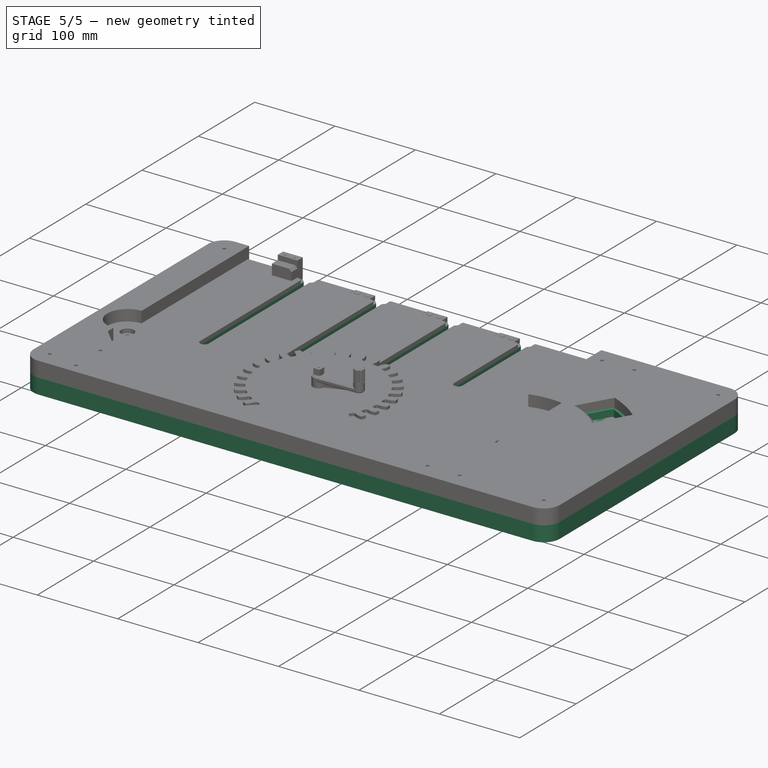
[diagram: stage 5 of 5 — iso view after this stage's code; geometry added in this stage tinted green]
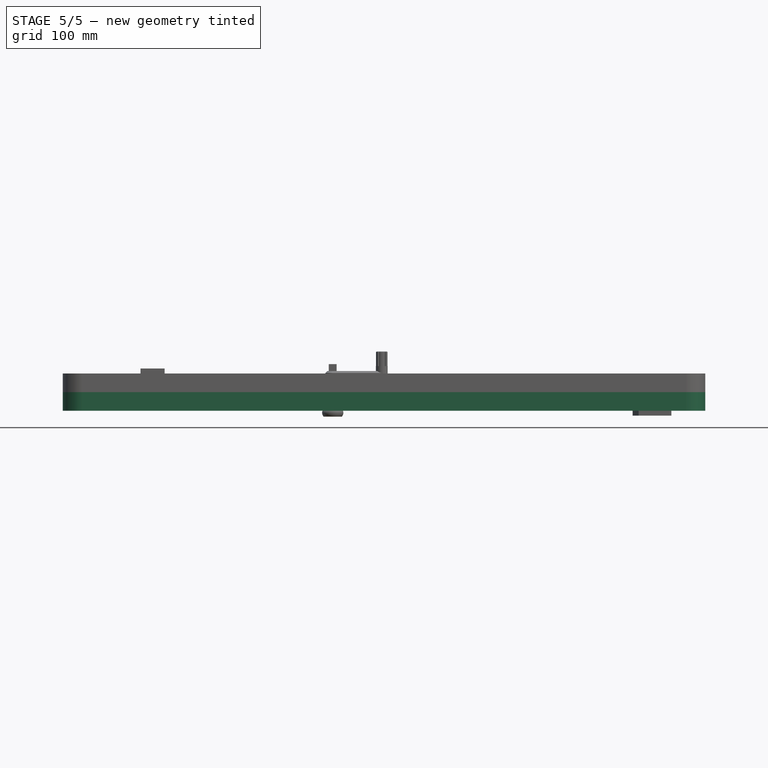
[diagram: stage 5 of 5 — front view after this stage's code; geometry added in this stage tinted green]
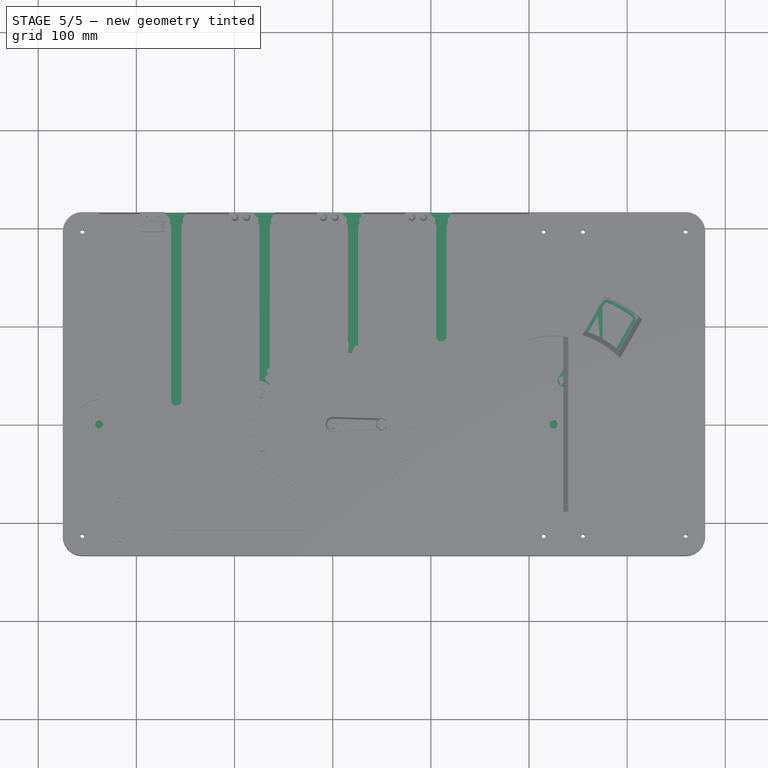
[diagram: stage 5 of 5 — top view after this stage's code; geometry added in this stage tinted green]
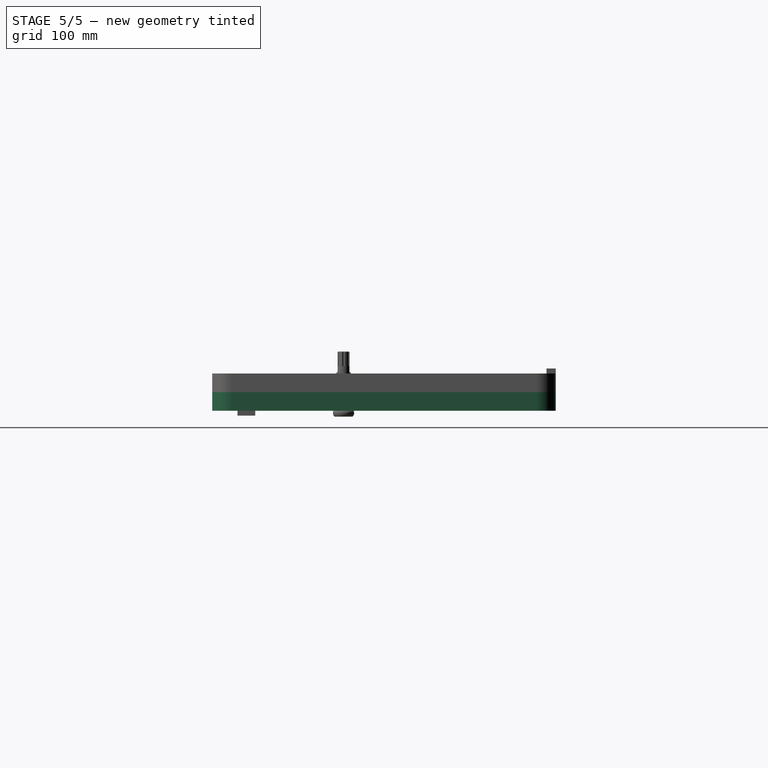
[diagram: stage 5 of 5 — right view after this stage's code; geometry added in this stage tinted green]
FEATURE [Sketcher::SketchObject] Sketch009
  MapMode = 5
  Placement = pos=(0,0,0) rot=(1,0,0;1.5708rad)
  Support = -> [XZ_Plane006]
  sketch-geometry (15):
    g0: LineSegment StartX=4 StartY=0 StartZ=0 EndX=4 EndY=-10 EndZ=0
    g1: LineSegment StartX=4 StartY=-10 StartZ=0 EndX=0 EndY=-10 EndZ=0
    g2: LineSegment StartX=0 StartY=-10 StartZ=0 EndX=0 EndY=-25 EndZ=0
    g3: LineSegment StartX=4 StartY=0 StartZ=0 EndX=5 EndY=0 EndZ=0
    g4: LineSegment StartX=5 StartY=0 StartZ=0 EndX=5 EndY=-6 EndZ=0
    g5: LineSegment StartX=5 StartY=-6 StartZ=0 EndX=8 EndY=-6 EndZ=0
    g6: LineSegment StartX=8 StartY=-6 StartZ=0 EndX=8 EndY=-8 EndZ=0
    g7: LineSegment StartX=0 StartY=-25 StartZ=0 EndX=9.23402 EndY=-25 EndZ=0
    g8-g11: Circle [constr] x4 (B-spline internal-alignment scaffolding for g12; pole/knot coordinates omitted)
    g12: BSplineCurve PolesCount=4 KnotsCount=2 Degree=3 IsPeriodic=0
    g13: GeomPoint [constr] X=9.23402 Y=-25 Z=0
    g14: GeomPoint [constr] X=8 Y=-8 Z=0
  constraints (32):
    c: PointOnObject(g0,g-1)
    c: Vertical(g0)
    c: Coincident(g0,g1)
    c: PointOnObject(g1,g-2)
    c: Horizontal(g1)
    c: Coincident(g1,g2)
    c: PointOnObject(g2,g-2)
    c: Coincident(g0,g3)
    c: PointOnObject(g3,g-1)
    c: Coincident(g3,g4)
    c: Vertical(g4)
    c: Coincident(g5,g4)
    c: Coincident(g6,g5)
    c: Vertical(g6)
    c: Horizontal(g5)
    c: DistanceX(g1,g1) = 4
    c: DistanceX(g3,g3) = 1
    c: DistanceY(g6,g6) = 2
    c: DistanceY(g4,g4) = 6
    c: DistanceX(g5,g5) = 3
    c: DistanceY(g0,g0) = 10
    c: DistanceY(g2,g2) = 15
    c: Coincident(g2,g7)
    c: Horizontal(g7)
    c: Radius(g8) = 0.8
    c: Equal(g8,g9)
    c: Equal(g8,g10)
    c: Equal(g8,g11)
    c: Coincident(g12,g6)
    c: InternalAlignment(g8-g11 -> g12) x4
    c: InternalAlignment(g13,g12)
    c: InternalAlignment(g14,g12)
FEATURE [PartDesign::Revolution] Revolution
  Angle = 360
  Axis = (0,-2e-16,1)
  Base = (0,0,0)
  Placement = pos=(0,0,0) rot=(1,0,0;1.5708rad)
  Profile = -> Sketch009
  ReferenceAxis = -> Sketch009 [V_Axis]
  Refine = true
  Reversed = true
FEATURE [Sketcher::SketchObject] Sketch010
  MapMode = 5
  Placement = pos=(0,0,0) rot=(1,0,0;1.5708rad)
  Support = -> [XZ_Plane007]
  sketch-geometry (6):
    g0: LineSegment StartX=1 StartY=-8 StartZ=0 EndX=4 EndY=-8 EndZ=0
    g1: LineSegment StartX=4 StartY=-8 StartZ=0 EndX=4 EndY=0 EndZ=0
    g2: LineSegment StartX=4 StartY=0 StartZ=0 EndX=6 EndY=0 EndZ=0
    g3: LineSegment StartX=6 StartY=0 StartZ=0 EndX=6 EndY=-10 EndZ=0
    g4: LineSegment StartX=6 StartY=-10 StartZ=0 EndX=1 EndY=-10 EndZ=0
    g5: LineSegment StartX=1 StartY=-10 StartZ=0 EndX=1 EndY=-8 EndZ=0
  constraints (18):
    c: Horizontal(g0)
    c: Coincident(g0,g1)
    c: PointOnObject(g1,g-1)
    c: Vertical(g1)
    c: Coincident(g1,g2)
    c: PointOnObject(g2,g-1)
    c: Coincident(g2,g3)
    c: Vertical(g3)
    c: Coincident(g3,g4)
    c: Horizontal(g4)
    c: Coincident(g4,g5)
    c: Coincident(g5,g0)
    c: Vertical(g5)
    c: DistanceX(g-1,g1) = 4
    c: DistanceX(g2,g2) = 2
    c: DistanceY(g5,g5) = 2
    c: DistanceX(g-1,g0) = 1
    c: DistanceY(g1,g1) = 8
FEATURE [PartDesign::Revolution] Revolution001
  Angle = 360
  Axis = (0,2e-16,1)
  Base = (0,0,0)
  Placement = pos=(0,0,0) rot=(1,0,0;1.5708rad)
  Profile = -> Sketch010
  ReferenceAxis = -> Sketch010 [V_Axis]
  Refine = true
  Reversed = true
FEATURE [PartDesign::Chamfer] Chamfer
  Angle = 45
  Base = -> Revolution001 [Edge6]
  BaseFeature = -> Revolution001
  ChamferType = 0
  FlipDirection = false
  Placement = pos=(0,0,0) rot=(1,0,0;1.5708rad)
  Refine = true
  Size = 0.6
  Size2 = 1
  SupportTransform = false
FEATURE [PartDesign::Chamfer] Chamfer001
  Angle = 45
  Base = -> Chamfer [Edge6]
  BaseFeature = -> Chamfer
  ChamferType = 0
  FlipDirection = false
  Placement = pos=(0,0,0) rot=(1,0,0;1.5708rad)
  Refine = true
  Size = 0.6
  Size2 = 1
  SupportTransform = false
FEATURE [PartDesign::Body] Body007  label="GearShaftCap"
  Group = -> [Sketch010,Revolution001,Chamfer,Chamfer001]
  Origin = -> Origin007
  Placement = pos=(-159.3,24.6,-9) rot=(0,0,1;0rad)
  Tip = -> Chamfer001
FEATURE [PartDesign::Chamfer] Chamfer002
  Angle = 45
  Base = -> Revolution [Edge1]
  BaseFeature = -> Revolution
  ChamferType = 0
  FlipDirection = false
  Placement = pos=(0,0,0) rot=(1,0,0;1.5708rad)
  Refine = true
  Size = 0.6
  Size2 = 1
  SupportTransform = false
FEATURE [PartDesign::Body] Body006  label="GearKnob"
  Group = -> [Sketch009,Revolution,Chamfer002]
  Origin = -> Origin006
  Placement = pos=(-159.3,24.6,9) rot=(0,1,0;3.14159rad)
  Tip = -> Chamfer002
FEATURE [PartDesign::ShapeBinder] ShapeBinder
  Support = -> [Sketch]
  TraceSupport = false
FEATURE [Sketcher::SketchObject] Sketch011
  ExternalGeometry = -> [ShapeBinder]
  MapMode = 5
  Support = -> [XY_Plane008]
  sketch-geometry (4):
    g0: LineSegment StartX=-275 StartY=216.2 StartZ=0 EndX=275 EndY=216.2 EndZ=0
    g1: LineSegment StartX=275 StartY=216.2 StartZ=0 EndX=275 EndY=-133.8 EndZ=0
    g2: LineSegment StartX=275 StartY=-133.8 StartZ=0 EndX=-275 EndY=-133.8 EndZ=0
    g3: LineSegment StartX=-275 StartY=-133.8 StartZ=0 EndX=-275 EndY=216.2 EndZ=0
  constraints (10):
    c: Coincident(g0,g1)
    c: Coincident(g1,g2)
    c: Coincident(g2,g3)
    c: Coincident(g3,g0)
    c: Horizontal(g0)
    c: Horizontal(g2)
    c: Vertical(g1)
    c: Vertical(g3)
    c: Coincident(g0,g-3)
    c: Coincident(g1,g-4)
FEATURE [PartDesign::Pad] Pad012
  Direction = (1,1,1)
  Length = 19
  Length2 = 100
  Profile = -> Sketch011
  Refine = true
  Reversed = true
  Type = 0
FEATURE [Sketcher::SketchObject] Sketch012
  ExternalGeometry = -> [ShapeBinder]
  MapMode = 5
  Support = -> [Pad012]
  sketch-geometry (18):
    g0: Circle CenterX=-238 CenterY=0 CenterZ=0 NormalX=0 NormalY=0 NormalZ=1 AngleXU=0 Radius=4
    g1: Circle CenterX=225 CenterY=0 CenterZ=0 NormalX=0 NormalY=0 NormalZ=1 AngleXU=0 Radius=4
    g2: ArcOfCircle CenterX=-159.323 CenterY=24.4049 CenterZ=0 NormalX=0 NormalY=0 NormalZ=1 AngleXU=0 Radius=6.5 StartAngle=3.14159 EndAngle=6.28319
    g3: ArcOfCircle CenterX=-159.323 CenterY=216.2 CenterZ=0 NormalX=0 NormalY=0 NormalZ=1 AngleXU=0 Radius=6.5 StartAngle=0 EndAngle=3.14159
    g4: LineSegment StartX=-152.823 StartY=24.4049 StartZ=0 EndX=-152.823 EndY=216.2 EndZ=0
    g5: LineSegment StartX=-165.823 StartY=24.4049 StartZ=0 EndX=-165.823 EndY=216.2 EndZ=0
    g6: ArcOfCircle CenterX=-69.3232 CenterY=-36.4177 CenterZ=0 NormalX=0 NormalY=0 NormalZ=1 AngleXU=0 Radius=6.5 StartAngle=3.14159 EndAngle=6.28319
    g7: ArcOfCircle CenterX=-69.3232 CenterY=216.2 CenterZ=0 NormalX=0 NormalY=0 NormalZ=1 AngleXU=0 Radius=6.5 StartAngle=0 EndAngle=3.14159
    g8: LineSegment StartX=-62.8232 StartY=-36.4177 StartZ=0 EndX=-62.8232 EndY=216.2 EndZ=0
    g9: LineSegment StartX=-75.8232 StartY=-36.4177 StartZ=0 EndX=-75.8232 EndY=216.2 EndZ=0
    g10: ArcOfCircle CenterX=20.6768 CenterY=28.9777 CenterZ=0 NormalX=0 NormalY=0 NormalZ=1 AngleXU=0 Radius=6.5 StartAngle=3.14159 EndAngle=6.28319
    g11: ArcOfCircle CenterX=20.6768 CenterY=216.2 CenterZ=0 NormalX=0 NormalY=0 NormalZ=1 AngleXU=0 Radius=6.5 StartAngle=0 EndAngle=3.14159
    g12: LineSegment StartX=27.1768 StartY=28.9777 StartZ=0 EndX=27.1768 EndY=216.2 EndZ=0
    g13: LineSegment StartX=14.1768 StartY=28.9777 StartZ=0 EndX=14.1768 EndY=216.2 EndZ=0
    g14: ArcOfCircle CenterX=110.677 CenterY=89.8003 CenterZ=0 NormalX=0 NormalY=0 NormalZ=1 AngleXU=0 Radius=6.5 StartAngle=3.14159 EndAngle=6.28319
    g15: ArcOfCircle CenterX=110.677 CenterY=216.2 CenterZ=0 NormalX=0 NormalY=0 NormalZ=1 AngleXU=0 Radius=6.5 StartAngle=1e-16 EndAngle=3.14159
    g16: LineSegment StartX=117.177 StartY=89.8003 StartZ=0 EndX=117.177 EndY=216.2 EndZ=0
    g17: LineSegment StartX=104.177 StartY=89.8003 StartZ=0 EndX=104.177 EndY=216.2 EndZ=0
  constraints (40):
    c: Coincident(g0,g-7)
    c: Coincident(g1,g-8)
    c: Tangent(g2,g5)
    c: Tangent(g2,g4)
    c: Tangent(g4,g3)
    c: Tangent(g5,g3)
    c: Vertical(g4)
    c: Equal(g2,g3)
    c: Coincident(g2,g-3)
    c: Tangent(g6,g9)
    c: Tangent(g6,g8)
    c: Tangent(g8,g7)
    c: Tangent(g9,g7)
    c: Vertical(g8)
    c: Equal(g6,g7)
    c: Coincident(g6,g-4)
    c: Tangent(g10,g13)
    c: Tangent(g10,g12)
    c: Tangent(g12,g11)
    c: Tangent(g13,g11)
    c: Vertical(g12)
    c: Equal(g10,g11)
    c: Coincident(g10,g-5)
    c: Tangent(g14,g17)
    c: Tangent(g14,g16)
    c: Tangent(g16,g15)
    c: Tangent(g17,g15)
    c: Vertical(g16)
    c: Equal(g14,g15)
    c: Coincident(g14,g-6)
    c: PointOnObject(g3,g-9)
    c: PointOnObject(g7,g-9)
    c: PointOnObject(g11,g-9)
    c: PointOnObject(g15,g-9)
    c: Equal(g15,g11)
    c: Equal(g11,g7)
    c: Equal(g7,g3)
    c: Radius(g3) = 6.5
    c: Radius(g0) = 4
    c: Radius(g1) = 4
FEATURE [PartDesign::Pocket] Pocket007
  BaseFeature = -> Pad012
  Length = 11
  Length2 = 100
  Profile = -> Sketch012
  Refine = true
  Type = 0
FEATURE [PartDesign::Fillet] Fillet
  Base = -> Pocket007 [Edge62,Edge20]
  BaseFeature = -> Pocket007
  Radius = 20
  Refine = true
  SupportTransform = false
FEATURE [Sketcher::SketchObject] Sketch013
  ExternalGeometry = -> [Fillet,ShapeBinder]
  MapMode = 5
  Support = -> [Fillet]
  sketch-geometry (4):
    g0: Circle CenterX=-255 CenterY=196.2 CenterZ=0 NormalX=0 NormalY=0 NormalZ=1 AngleXU=0 Radius=2
    g1: Circle CenterX=-255 CenterY=-113.8 CenterZ=0 NormalX=0 NormalY=0 NormalZ=1 AngleXU=0 Radius=2
    g2: Circle CenterX=215 CenterY=-113.8 CenterZ=0 NormalX=0 NormalY=0 NormalZ=1 AngleXU=0 Radius=2
    g3: Circle CenterX=215 CenterY=196.2 CenterZ=0 NormalX=0 NormalY=0 NormalZ=1 AngleXU=0 Radius=2
  constraints (10):
    c: Coincident(g0,g-3)
    c: Coincident(g1,g-4)
    c: Equal(g2,g1)
    c: Equal(g1,g0)
    c: Equal(g0,g3)
    c: Radius(g0) = 2
    c: Horizontal(g2,g1)
    c: Horizontal(g3,g0)
    c: Vertical(g3,g2)
    c: DistanceX(g3,g-5) = 60
FEATURE [PartDesign::Pocket] Pocket008
  BaseFeature = -> Fillet
  Length = 5
  Length2 = 100
  Profile = -> Sketch013
  Refine = true
  Type = 1
FEATURE [Sketcher::SketchObject] Sketch014
  ExternalGeometry = -> [ShapeBinder]
  MapMode = 5
  Support = -> [Pocket008]
  sketch-geometry (16):
    g0: LineSegment StartX=275 StartY=151.2 StartZ=0 EndX=200 EndY=151.2 EndZ=0
    g1: LineSegment StartX=200 StartY=151.2 StartZ=0 EndX=200 EndY=121.2 EndZ=0
    g2: LineSegment StartX=200 StartY=121.2 StartZ=0 EndX=275 EndY=121.2 EndZ=0
    g3: LineSegment StartX=275 StartY=121.2 StartZ=0 EndX=275 EndY=151.2 EndZ=0
    g4: LineSegment StartX=275 StartY=-38.8 StartZ=0 EndX=200 EndY=-38.8 EndZ=0
    g5: LineSegment StartX=200 StartY=-38.8 StartZ=0 EndX=200 EndY=-68.8 EndZ=0
    g6: LineSegment StartX=200 StartY=-68.8 StartZ=0 EndX=275 EndY=-68.8 EndZ=0
    g7: LineSegment StartX=275 StartY=-68.8 StartZ=0 EndX=275 EndY=-38.8 EndZ=0
    g8: LineSegment StartX=275 StartY=56.2 StartZ=0 EndX=200 EndY=56.2 EndZ=0
    g9: LineSegment StartX=200 StartY=56.2 StartZ=0 EndX=200 EndY=26.2 EndZ=0
    g10: LineSegment StartX=200 StartY=26.2 StartZ=0 EndX=275 EndY=26.2 EndZ=0
    g11: LineSegment StartX=275 StartY=26.2 StartZ=0 EndX=275 EndY=56.2 EndZ=0
    g12: LineSegment [constr] StartX=200 StartY=121.2 StartZ=0 EndX=200 EndY=56.2 EndZ=0
    g13: LineSegment [constr] StartX=200 StartY=26.2 StartZ=0 EndX=200 EndY=-38.8 EndZ=0
    g14: LineSegment [constr] StartX=200 StartY=151.2 StartZ=0 EndX=200 EndY=216.2 EndZ=0
    g15: LineSegment [constr] StartX=200 StartY=-133.8 StartZ=0 EndX=200 EndY=-68.8 EndZ=0
  constraints (46):
    c: Coincident(g0,g1)
    c: Coincident(g1,g2)
    c: Coincident(g2,g3)
    c: Coincident(g3,g0)
    c: Horizontal(g0)
    c: Horizontal(g2)
    c: Vertical(g1)
    c: Vertical(g3)
    c: PointOnObject(g0,g-3)
    c: Coincident(g4,g5)
    c: Coincident(g5,g6)
    c: Coincident(g6,g7)
    c: Coincident(g7,g4)
    c: Horizontal(g4)
    c: Horizontal(g6)
    c: Vertical(g5)
    c: Vertical(g7)
    c: PointOnObject(g4,g-3)
    c: Coincident(g8,g9)
    c: Coincident(g9,g10)
    c: Coincident(g10,g11)
    c: Coincident(g11,g8)
    c: Horizontal(g8)
    c: Horizontal(g10)
    c: Vertical(g9)
    c: Vertical(g11)
    c: PointOnObject(g8,g-3)
    c: Equal(g1,g9)
    c: Equal(g9,g5)
    c: Equal(g0,g8)
    c: Equal(g8,g4)
    c: Coincident(g12,g1)
    c: Coincident(g12,g8)
    c: Coincident(g13,g9)
    c: Coincident(g13,g4)
    c: Equal(g13,g12)
    c: DistanceX(g0,g0) = 75
    c: DistanceY(g1,g1) = 30
    c: Coincident(g14,g0)
    c: PointOnObject(g14,g-4)
    c: Vertical(g14)
    c: Equal(g14,g12)
    c: PointOnObject(g15,g-5)
    c: Coincident(g15,g5)
    c: Vertical(g15)
    c: Equal(g15,g13)
FEATURE [PartDesign::Pocket] Pocket009
  BaseFeature = -> Pocket008
  Length = 5
  Length2 = 100
  Profile = -> Sketch014
  Refine = true
  Type = 1
FEATURE [PartDesign::ShapeBinder] ShapeBinder002
  Support = -> [Sketch]
  TraceSupport = false
FEATURE [Sketcher::SketchObject] Sketch017
  ExternalGeometry = -> [ShapeBinder002]
  MapMode = 5
  Support = -> [XY_Plane010]
  sketch-geometry (18):
    g0: LineSegment StartX=275 StartY=216.2 StartZ=0 EndX=379.499 EndY=216.2 EndZ=0
    g1: LineSegment StartX=379.499 StartY=216.2 StartZ=0 EndX=379.499 EndY=-133.8 EndZ=0
    g2: LineSegment StartX=379.499 StartY=-133.8 StartZ=0 EndX=275 EndY=-133.8 EndZ=0
    g3: LineSegment StartX=275 StartY=216.2 StartZ=0 EndX=275 EndY=151 EndZ=0
    g4: LineSegment StartX=275 StartY=151 StartZ=0 EndX=200.4 EndY=151 EndZ=0
    g5: LineSegment StartX=200.4 StartY=151 StartZ=0 EndX=200.4 EndY=121.4 EndZ=0
    g6: LineSegment StartX=200.4 StartY=121.4 StartZ=0 EndX=275 EndY=121.4 EndZ=0
    g7: LineSegment StartX=275 StartY=121.4 StartZ=0 EndX=275 EndY=56 EndZ=0
    g8: LineSegment StartX=275 StartY=56 StartZ=0 EndX=200.4 EndY=56 EndZ=0
    g9: LineSegment StartX=200.4 StartY=56 StartZ=0 EndX=200.4 EndY=26.4 EndZ=0
    g10: LineSegment StartX=200.4 StartY=26.4 StartZ=0 EndX=275 EndY=26.4 EndZ=0
    g11: LineSegment StartX=275 StartY=26.4 StartZ=0 EndX=275 EndY=-39 EndZ=0
    g12: LineSegment StartX=275 StartY=-39 StartZ=0 EndX=200.4 EndY=-39 EndZ=0
    g13: LineSegment StartX=200.4 StartY=-39 StartZ=0 EndX=200.4 EndY=-68.6 EndZ=0
    g14: LineSegment StartX=200.4 StartY=-68.6 StartZ=0 EndX=275 EndY=-68.6 EndZ=0
    g15: LineSegment StartX=275 StartY=-68.6 StartZ=0 EndX=275 EndY=-133.8 EndZ=0
    g16: ArcOfCircle [constr] CenterX=225 CenterY=0 CenterZ=0 NormalX=0 NormalY=0 NormalZ=1 AngleXU=0 Radius=154.499 StartAngle=5.23599 EndAngle=7.52442
    g17: LineSegment [constr] StartX=225 StartY=0 StartZ=0 EndX=302.249 EndY=-133.8 EndZ=0
  constraints (52):
    c: Coincident(g0,g1)
    c: Coincident(g1,g2)
    c: Horizontal(g0)
    c: Horizontal(g2)
    c: Vertical(g1)
    c: Coincident(g0,g-3)
    c: Coincident(g-3,g2)
    c: Coincident(g0,g3)
    c: PointOnObject(g3,g-3)
    c: Coincident(g3,g4)
    c: Horizontal(g4)
    c: Coincident(g4,g5)
    c: Vertical(g5)
    c: Coincident(g5,g6)
    c: PointOnObject(g6,g-3)
    c: Horizontal(g6)
    c: Coincident(g6,g7)
    c: PointOnObject(g7,g-3)
    c: Coincident(g7,g8)
    c: Horizontal(g8)
    c: Coincident(g8,g9)
    c: Vertical(g9)
    c: Coincident(g9,g10)
    c: PointOnObject(g10,g-3)
    c: Horizontal(g10)
    c: Coincident(g10,g11)
    c: PointOnObject(g11,g-3)
    c: Coincident(g11,g12)
    c: Horizontal(g12)
    c: Coincident(g12,g13)
    c: Vertical(g13)
    c: Coincident(g13,g14)
    c: PointOnObject(g14,g-3)
    c: Horizontal(g14)
    c: Coincident(g14,g15)
    c: Coincident(g15,g2)
    c: Equal(g7,g11)
    c: Equal(g3,g15)
    c: Equal(g13,g9)
    c: Equal(g9,g5)
    c: Equal(g6,g8)
    c: Equal(g8,g12)
    c: DistanceY(g5,g5) = 29.6
    c: DistanceX(g4,g4) = 74.6
    c: DistanceY(g3,g3) = 65.2
    c: Coincident(g16,g-4)
    c: PointOnObject(g16,g2)
    c: PointOnObject(g16,g3)
    c: Tangent(g16,g1)
    c: Coincident(g17,g16)
    c: Coincident(g17,g16)
    c: Angle(g17) = -1.0472
FEATURE [PartDesign::Pad] Pad014
  Direction = (1,1,1)
  Length = 19
  Length2 = 100
  Profile = -> Sketch017
  Refine = true
  Reversed = true
  Type = 0
FEATURE [PartDesign::Fillet] Fillet002
  Base = -> Pad014 [Edge2,Edge5]
  BaseFeature = -> Pad014
  Radius = 20
  Refine = true
  SupportTransform = false
FEATURE [PartDesign::Fillet] Fillet003
  Base = -> Fillet002 [Edge42,Edge44,Edge52,Edge50,Edge51,Edge49,Edge24,Edge46,Edge54,Edge47,Edge53,Edge48]
  BaseFeature = -> Fillet002
  Radius = 6
  Refine = true
  SupportTransform = false
FEATURE [PartDesign::Fillet] Fillet004
  Base = -> Pocket009 [Edge82,Edge112,Edge110,Edge109,Edge108,Edge106,Edge104,Edge105,Edge102,Edge103,Edge107,Edge111]
  BaseFeature = -> Pocket009
  Radius = 6
  Refine = true
  SupportTransform = false
FEATURE [Sketcher::SketchObject] Sketch028
  ExternalGeometry = -> [Fillet004]
  MapMode = 5
  Placement = pos=(0,0,-19) rot=(1,0,0;3.14159rad)
  Support = -> [Fillet004]
  sketch-geometry (2):
    g0: Circle CenterX=255 CenterY=-196.2 CenterZ=0 NormalX=0 NormalY=0 NormalZ=1 AngleXU=0 Radius=2
    g1: Circle CenterX=255 CenterY=113.8 CenterZ=0 NormalX=0 NormalY=0 NormalZ=1 AngleXU=0 Radius=2
  constraints (6):
    c: Equal(g1,g-3)
    c: Equal(g-3,g0)
    c: Horizontal(g-4,g0)
    c: Horizontal(g-3,g1)
    c: Vertical(g1,g0)
    c: DistanceX(g-4,g0) = 40
FEATURE [PartDesign::Pocket] Pocket018
  BaseFeature = -> Fillet004
  Length = 5
  Length2 = 100
  Profile = -> Sketch028
  Refine = true
  Type = 1
FEATURE [Sketcher::SketchObject] Sketch029
  ExternalGeometry = -> [Fillet003]
  MapMode = 5
  Placement = pos=(0,0,-19) rot=(1,0,0;3.14159rad)
  Support = -> [Fillet003]
  sketch-geometry (2):
    g0: Circle CenterX=359.499 CenterY=113.8 CenterZ=0 NormalX=0 NormalY=0 NormalZ=1 AngleXU=0 Radius=2
    g1: Circle CenterX=359.499 CenterY=-196.2 CenterZ=0 NormalX=0 NormalY=0 NormalZ=1 AngleXU=0 Radius=2
  constraints (4):
    c: Coincident(g0,g-3)
    c: Coincident(g1,g-4)
    c: Equal(g1,g0)
    c: Radius(g0) = 2
FEATURE [PartDesign::Pocket] Pocket019
  BaseFeature = -> Fillet003
  Length = 5
  Length2 = 100
  Profile = -> Sketch029
  Refine = true
  Type = 1
FEATURE [PartDesign::Chamfer] Chamfer008
  Angle = 45
  Base = -> Pocket018 [Edge76,Edge80,Edge82,Edge86,Edge88,Edge87,Edge85,Edge81]
  BaseFeature = -> Pocket018
  ChamferType = 0
  FlipDirection = false
  Refine = true
  Size = 6
  Size2 = 1
  SupportTransform = false
FEATURE [PartDesign::ShapeBinder] ShapeBinder006
  Support = -> [Sketch]
  TraceSupport = false
FEATURE [Sketcher::SketchObject] Sketch031
  ExternalGeometry = -> [ShapeBinder006]
  MapMode = 5
  Support = -> [XY_Plane014]
  sketch-geometry (9):
    g0: LineSegment [constr] StartX=225 StartY=0 StartZ=0 EndX=264.625 EndY=68.6325 EndZ=0
    g1: LineSegment StartX=226.925 StartY=42.3345 StartZ=0 EndX=276.925 EndY=128.937 EndZ=0
    g2: LineSegment StartX=260.7 StartY=22.8345 StartZ=0 EndX=310.7 EndY=109.437 EndZ=0
    g3: ArcOfCircle CenterX=225 CenterY=0 CenterZ=0 NormalX=0 NormalY=0 NormalZ=1 AngleXU=0 Radius=139 StartAngle=0.906445 EndAngle=1.18795
    g4: LineSegment StartX=226.925 StartY=42.3345 StartZ=0 EndX=260.7 EndY=22.8345 EndZ=0
    g5: LineSegment StartX=259.708 StartY=93.1165 StartZ=0 EndX=278.208 EndY=125.159 EndZ=0
    g6: LineSegment StartX=288.287 StartY=76.6165 StartZ=0 EndX=306.787 EndY=108.659 EndZ=0
    g7: ArcOfCircle CenterX=225 CenterY=0 CenterZ=0 NormalX=0 NormalY=0 NormalZ=1 AngleXU=0 Radius=136 StartAngle=0.925574 EndAngle=1.16882
    g8: ArcOfCircle CenterX=225 CenterY=0 CenterZ=0 NormalX=0 NormalY=0 NormalZ=1 AngleXU=0 Radius=99.3748 StartAngle=0.880387 EndAngle=1.21401
  constraints (26):
    c: Coincident(g0,g-3)
    c: PointOnObject(g0,g-3)
    c: Angle(g0) = 1.0472
    c: Parallel(g1,g0)
    c: Parallel(g0,g2)
    c: Distance(g1,g2) = 39
    c: Symmetric(g1,g2,g0)
    c: Coincident(g3,g0)
    c: Coincident(g3,g1)
    c: Coincident(g3,g2)
    c: Radius(g3) = 139
    c: Distance(g2) = 100
    c: Coincident(g4,g1)
    c: Coincident(g4,g2)
    c: Parallel(g2,g6)
    c: Symmetric(g5,g6,g0)
    c: Equal(g5,g6)
    c: Distance(g5,g1) = 3
    c: Coincident(g7,g3)
    c: Coincident(g7,g5)
    c: Coincident(g7,g6)
    c: Coincident(g8,g3)
    c: Coincident(g8,g5)
    c: Coincident(g8,g6)
    c: Distance(g6) = 37
    c: Radius(g7) = 136
FEATURE [PartDesign::Pad] Pad018
  Direction = (1,1,1)
  Length = 17
  Length2 = 100
  Midplane = true
  Profile = -> Sketch031
  Refine = true
  Type = 0
FEATURE [PartDesign::Fillet] Fillet008
  Base = -> Pad018 [Edge5,Edge2]
  BaseFeature = -> Pad018
  Radius = 6
  Refine = true
  SupportTransform = false
FEATURE [PartDesign::Fillet] Fillet009
  Base = -> Fillet008 [Edge29,Edge28]
  BaseFeature = -> Fillet008
  Radius = 3
  Refine = true
  SupportTransform = false
FEATURE [Sketcher::SketchObject] Sketch032
  ExternalGeometry = -> [ShapeBinder006]
  MapMode = 5
  Placement = pos=(0,0,-8.5) rot=(1,0,0;3.14159rad)
  Support = -> [Fillet009]
  sketch-geometry (1):
    g0: Circle CenterX=225 CenterY=0 CenterZ=0 NormalX=0 NormalY=0 NormalZ=1 AngleXU=0 Radius=84.3
  constraints (4):
    c: Coincident(g0,g-3)
    c: Radius(g-3) = 79.25
    c: Radius(g-3) = 79.25
    c: Radius(g0) = 84.3
FEATURE [PartDesign::Pocket] Pocket021
  BaseFeature = -> Fillet009
  Length = 9.6
  Length2 = 100
  Profile = -> Sketch032
  Refine = true
  Type = 0
FEATURE [Sketcher::SketchObject] Sketch033
  ExternalGeometry = -> [Pocket021]
  MapMode = 5
  Placement = pos=(0,0,8.5) rot=(0,0,1;0rad)
  Support = -> [Pocket021]
  sketch-geometry (3):
    g0: LineSegment [constr] StartX=236.925 StartY=59.6551 StartZ=0 EndX=270.7 EndY=40.1551 EndZ=0
    g1: Circle CenterX=245.585 CenterY=54.6551 CenterZ=0 NormalX=0 NormalY=0 NormalZ=1 AngleXU=0 Radius=1
    g2: Circle CenterX=262.04 CenterY=45.1551 CenterZ=0 NormalX=0 NormalY=0 NormalZ=1 AngleXU=0 Radius=1
  constraints (10):
    c: PointOnObject(g0,g-4)
    c: PointOnObject(g0,g-5)
    c: Distance(g-4,g0) = 20
    c: Parallel(g0,g-3)
    c: PointOnObject(g1,g0)
    c: PointOnObject(g2,g0)
    c: Equal(g2,g1)
    c: Radius(g1) = 1
    c: Distance(g1,g0) = 10
    c: Distance(g2,g0) = 10
FEATURE [PartDesign::Pocket] Pocket022
  BaseFeature = -> Pocket021
  Length = 5
  Length2 = 100
  Profile = -> Sketch033
  Refine = true
  Type = 1
FEATURE [PartDesign::Fillet] Fillet010
  Base = -> Pocket022 [Edge27,Edge18]
  BaseFeature = -> Pocket022
  Radius = 6
  Refine = true
  SupportTransform = false
FEATURE [Sketcher::SketchObject] Sketch042
  MapMode = 5
  Placement = pos=(0,1.18e-14,21.5) rot=(0,0,1;3.14159rad)
  Support = -> [Pad021]
  sketch-geometry (1):
    g0: Circle CenterX=0 CenterY=0 CenterZ=0 NormalX=0 NormalY=0 NormalZ=1 AngleXU=0 Radius=2
  constraints (2):
    c: Coincident(g0,g-1)
    c: Radius(g0) = 2
FEATURE [PartDesign::Pocket] Pocket027
  BaseFeature = -> Pad021
  Length = 5
  Length2 = 100
  Placement = pos=(0,0,0) rot=(1,0,0;1.5708rad)
  Profile = -> Sketch042
  Refine = true
  Type = 1
FEATURE [PartDesign::Chamfer] Chamfer016
  Angle = 45
  Base = -> Pocket027 [Edge47]
  BaseFeature = -> Pocket027
  ChamferType = 0
  FlipDirection = false
  Placement = pos=(0,0,0) rot=(1,0,0;1.5708rad)
  Refine = true
  Size = 2.5
  Size2 = 1
  SupportTransform = false
FEATURE [Sketcher::SketchObject] Sketch043
  MapMode = 5
  Placement = pos=(0,0,0) rot=(1,0,0;3.14159rad)
  Support = -> [Chamfer016]
  sketch-geometry (4):
    g0: LineSegment StartX=-4.2 StartY=4.2 StartZ=0 EndX=4.2 EndY=4.2 EndZ=0
    g1: LineSegment StartX=4.2 StartY=4.2 StartZ=0 EndX=4.2 EndY=-4.2 EndZ=0
    g2: LineSegment StartX=4.2 StartY=-4.2 StartZ=0 EndX=-4.2 EndY=-4.2 EndZ=0
    g3: LineSegment StartX=-4.2 StartY=-4.2 StartZ=0 EndX=-4.2 EndY=4.2 EndZ=0
  constraints (11):
    c: Coincident(g0,g1)
    c: Coincident(g1,g2)
    c: Coincident(g2,g3)
    c: Coincident(g3,g0)
    c: Horizontal(g0)
    c: Horizontal(g2)
    c: Vertical(g1)
    c: Vertical(g3)
    c: Symmetric(g1,g0,g-1)
    c: Equal(g3,g0)
    c: DistanceX(g0,g0) = 8.4
FEATURE [PartDesign::Pocket] Pocket028
  BaseFeature = -> Chamfer016
  Length = 18.5
  Length2 = 100
  Placement = pos=(0,0,0) rot=(1,0,0;1.5708rad)
  Profile = -> Sketch043
  Refine = true
  Type = 0
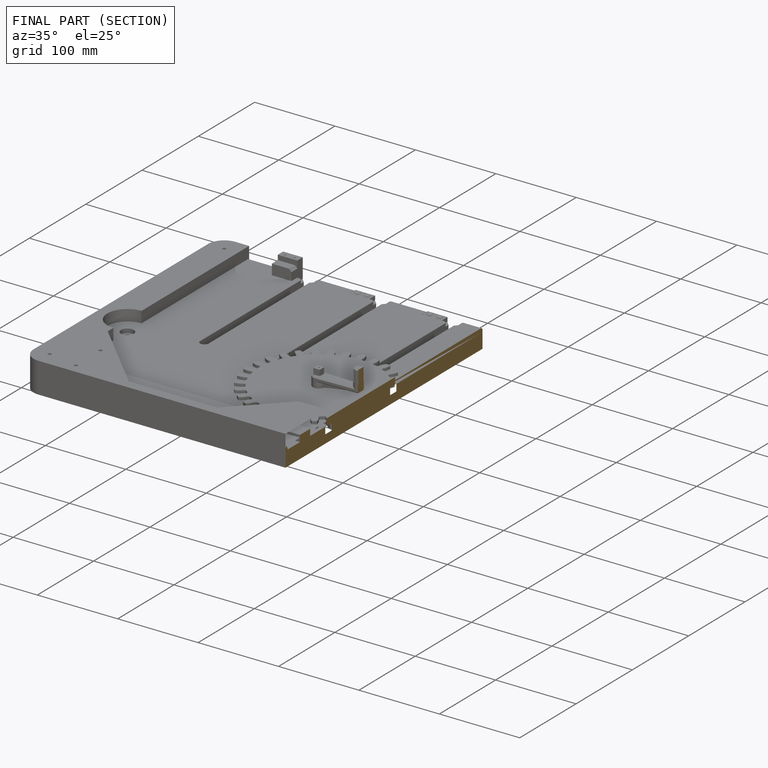
[diagram: finished part — half-section view (interior)]
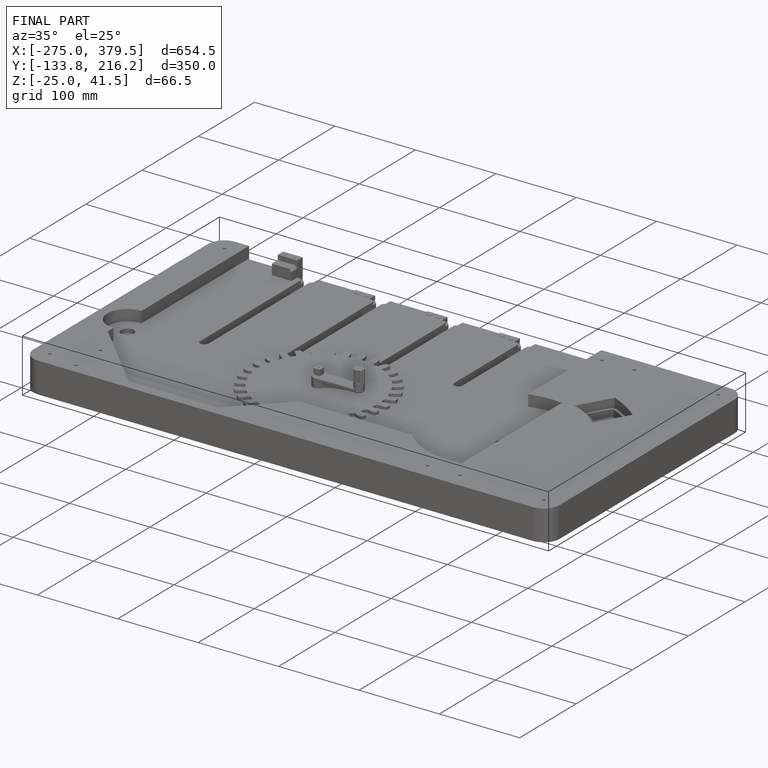
[diagram: finished part — iso view with bounding-box wireframe]
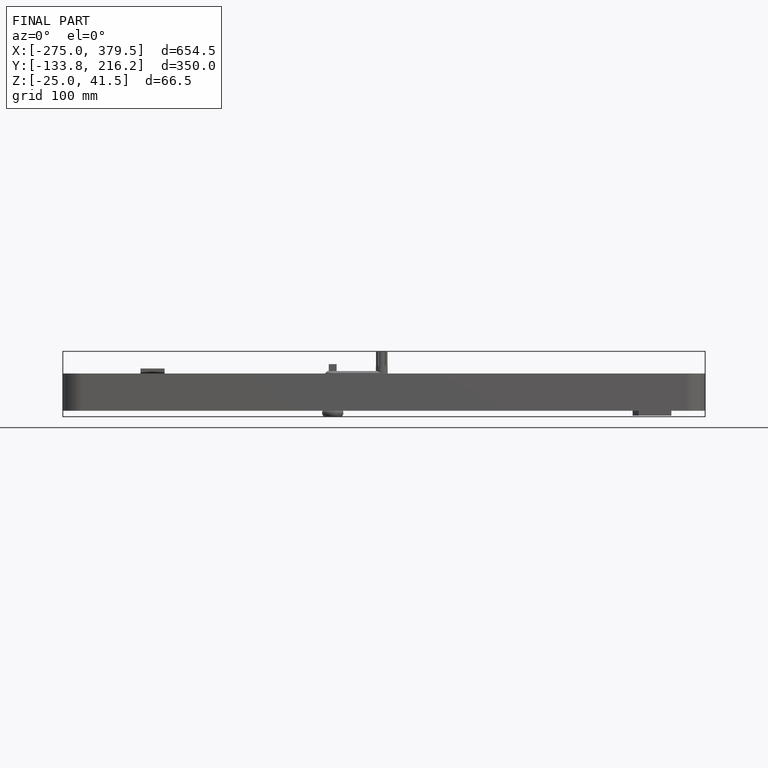
[diagram: finished part — front view with bounding-box wireframe]
